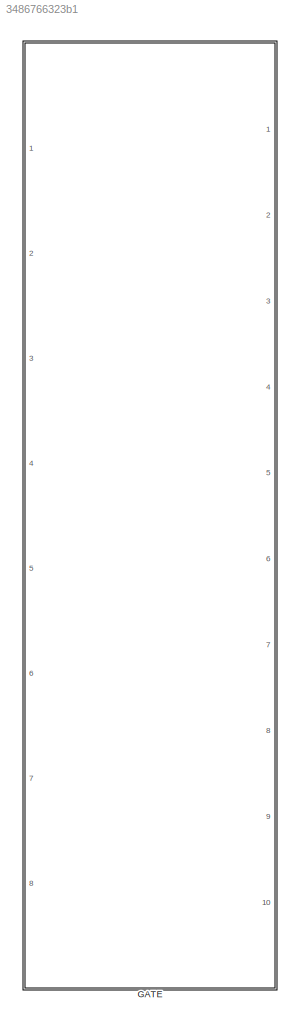
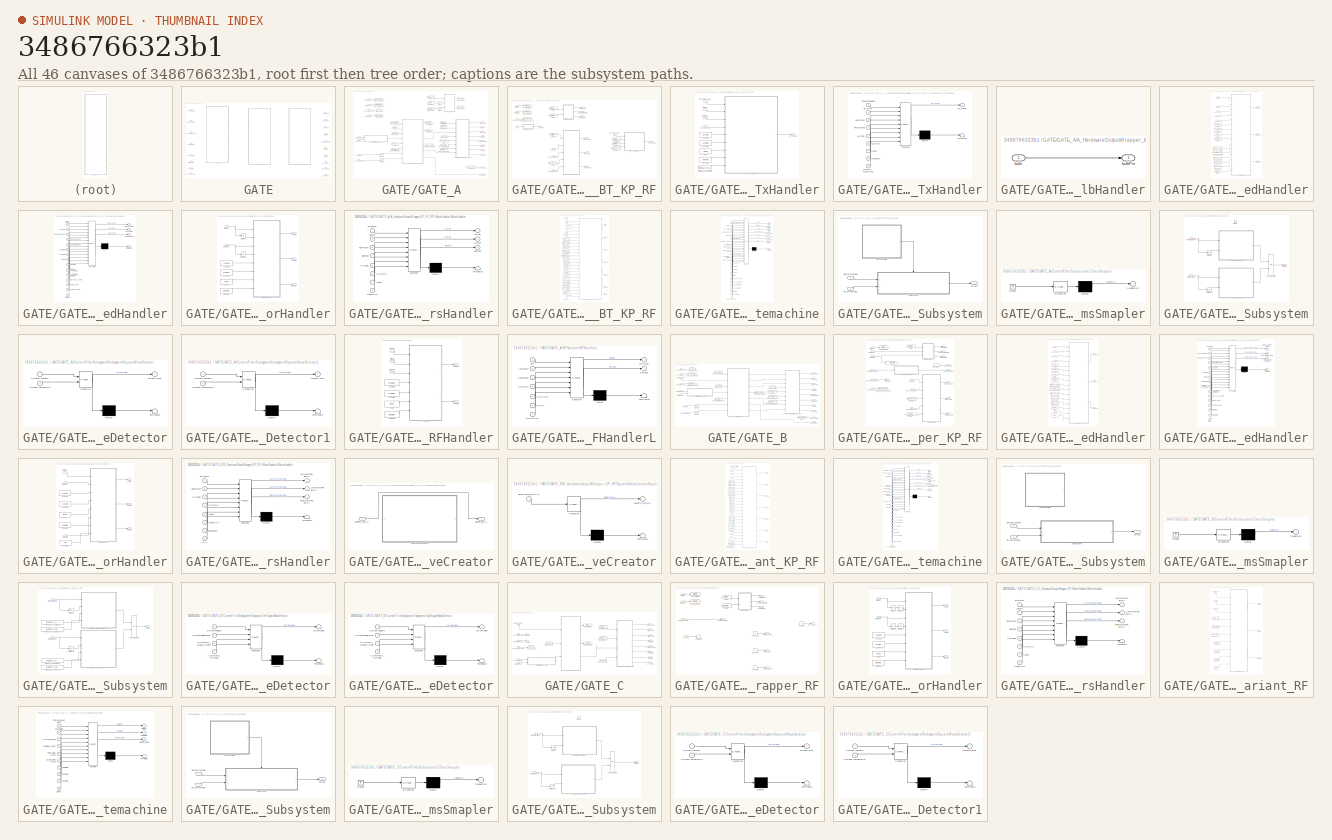
[diagram: thumbnail index - all 46 canvases of the model, root first then tree order]
MODEL slx_3486766323b1
KIND library
CONFIG AbsTol = auto
CONFIG FixedStep = auto
CONFIG MaxStep = auto
CONFIG MinStep = auto
CONFIG RelTol = 1e-3
CONFIG SampleTimeConstraint = Unconstrained
CONFIG Solver = ode45
CONFIG SolverMode = Auto
CONFIG SolverName = ode45
CONFIG StartTime = 0.0
CONFIG StopTime = 10.0
BLOCK [SubSystem] GATE
  OverrideUsingVariant = VariantB
  Ports = [8, 10]
  RequestExecContextInheritance = off
  Variant = on
  VariantControl = Variant1
BLOCK [Outport] GATE/ BT_TxChar
  IconDisplay = Port number
  Port = 8
BLOCK [Outport] GATE/ CommonMotorPin
  IconDisplay = Port number
  Port = 5
BLOCK [Outport] GATE/ LeftMotorPin
  IconDisplay = Port number
  Port = 4
BLOCK [Outport] GATE/ bulbPin
  IconDisplay = Port number
  Port = 7
BLOCK [Outport] GATE/ greenLedPin
  IconDisplay = Port number
BLOCK [Outport] GATE/ redLedPin
  IconDisplay = Port number
  Port = 2
BLOCK [Outport] GATE/ rightMotorPin
  IconDisplay = Port number
  Port = 6
BLOCK [Outport] GATE/ yellowLedPin
  IconDisplay = Port number
  Port = 3
BLOCK [Inport] GATE/BtCharReceived 
  IconDisplay = Port number
  Port = 2
BLOCK [SubSystem] GATE/GATE_A
  Ports = [8, 10]
  RequestExecContextInheritance = off
  Variant = off
  VariantControl = VariantA
BLOCK [SubSystem] GATE/GATE_A/A_HardwareOutputWrapper_BT_KP_RF
  Ports = [8, 8]
  RequestExecContextInheritance = off
  Variant = off
  VariantControl = Variant1
BLOCK [Inport] GATE/GATE_A/A_HardwareOutputWrapper_BT_KP_RF/BTCharReceived
  IconDisplay = Port number
  Port = 7
BLOCK [Outport] GATE/GATE_A/A_HardwareOutputWrapper_BT_KP_RF/BT_TxChar
  IconDisplay = Port number
  Port = 8
BLOCK [SubSystem] GATE/GATE_A/A_HardwareOutputWrapper_BT_KP_RF/BT_TxHandler
  Ports = [4, 1]
  RequestExecContextInheritance = off
  Variant = off
BLOCK [Inport] GATE/GATE_A/A_HardwareOutputWrapper_BT_KP_RF/BT_TxHandler/BTCharReceived
  IconDisplay = Port number
BLOCK [Outport] GATE/GATE_A/A_HardwareOutputWrapper_BT_KP_RF/BT_TxHandler/BT_TxChar
  IconDisplay = Port number
BLOCK [SubSystem] GATE/GATE_A/A_HardwareOutputWrapper_BT_KP_RF/BT_TxHandler/BT_TxHandler
  ErrorFcn = Stateflow.Translate.translate
  PermitHierarchicalResolution = ExplicitOnly
  Ports = [9, 1]
  RequestExecContextInheritance = off
  SFBlockType = Chart
  TreatAsAtomicUnit = on
  Variant = off
BLOCK [Demux] GATE/GATE_A/A_HardwareOutputWrapper_BT_KP_RF/BT_TxHandler/BT_TxHandler/ Demux 
  Outputs = 1
  Ports = [1, 1]
BLOCK [S-Function] GATE/GATE_A/A_HardwareOutputWrapper_BT_KP_RF/BT_TxHandler/BT_TxHandler/ SFunction 
  EnableBusSupport = on
  FunctionName = sf_sfun
  PortCounts = [9 2]
  Ports = [9, 2]
  SFunctionDeploymentMode = off
  Tag = Stateflow S-Function gate_V32_2016a_Lib_inf 26
BLOCK [Terminator] GATE/GATE_A/A_HardwareOutputWrapper_BT_KP_RF/BT_TxHandler/BT_TxHandler/ Terminator 
BLOCK [Inport] GATE/GATE_A/A_HardwareOutputWrapper_BT_KP_RF/BT_TxHandler/BT_TxHandler/BTCharReceived
  IconDisplay = Port number
BLOCK [Outport] GATE/GATE_A/A_HardwareOutputWrapper_BT_KP_RF/BT_TxHandler/BT_TxHandler/BT_TxChar
  IconDisplay = Port number
BLOCK [Inport] GATE/GATE_A/A_HardwareOutputWrapper_BT_KP_RF/BT_TxHandler/BT_TxHandler/CLOSED
  IconDisplay = Port number
  Port = 5
BLOCK [Inport] GATE/GATE_A/A_HardwareOutputWrapper_BT_KP_RF/BT_TxHandler/BT_TxHandler/CLOSING
  IconDisplay = Port number
  Port = 6
BLOCK [Inport] GATE/GATE_A/A_HardwareOutputWrapper_BT_KP_RF/BT_TxHandler/BT_TxHandler/OPEN
  IconDisplay = Port number
  Port = 7
BLOCK [Inport] GATE/GATE_A/A_HardwareOutputWrapper_BT_KP_RF/BT_TxHandler/BT_TxHandler/OPENING
  IconDisplay = Port number
  Port = 8
BLOCK [Inport] GATE/GATE_A/A_HardwareOutputWrapper_BT_KP_RF/BT_TxHandler/BT_TxHandler/PassSuccess
  IconDisplay = Port number
  Port = 4
BLOCK [Inport] GATE/GATE_A/A_HardwareOutputWrapper_BT_KP_RF/BT_TxHandler/BT_TxHandler/WRONG_PASSWORD
  IconDisplay = Port number
  Port = 9
BLOCK [Inport] GATE/GATE_A/A_HardwareOutputWrapper_BT_KP_RF/BT_TxHandler/BT_TxHandler/leftMotor
  IconDisplay = Port number
  Port = 2
BLOCK [Inport] GATE/GATE_A/A_HardwareOutputWrapper_BT_KP_RF/BT_TxHandler/BT_TxHandler/rightMotor
  IconDisplay = Port number
  Port = 3
BLOCK [Constant] GATE/GATE_A/A_HardwareOutputWrapper_BT_KP_RF/BT_TxHandler/CLOSED
  SampleTime = -1
  Value = CLOSED
BLOCK [Constant] GATE/GATE_A/A_HardwareOutputWrapper_BT_KP_RF/BT_TxHandler/CLOSING
  SampleTime = -1
  Value = CLOSING
BLOCK [Constant] GATE/GATE_A/A_HardwareOutputWrapper_BT_KP_RF/BT_TxHandler/OPEN
  SampleTime = -1
  Value = OPEN
BLOCK [Constant] GATE/GATE_A/A_HardwareOutputWrapper_BT_KP_RF/BT_TxHandler/OPENING
  SampleTime = -1
  Value = OPENING
BLOCK [Inport] GATE/GATE_A/A_HardwareOutputWrapper_BT_KP_RF/BT_TxHandler/PassSuccess
  IconDisplay = Port number
  Port = 4
BLOCK [Constant] GATE/GATE_A/A_HardwareOutputWrapper_BT_KP_RF/BT_TxHandler/WRONG_PASSWORD
  SampleTime = -1
  Value = WRONG_PASSWORD
BLOCK [Inport] GATE/GATE_A/A_HardwareOutputWrapper_BT_KP_RF/BT_TxHandler/leftMotor
  IconDisplay = Port number
  Port = 2
BLOCK [Inport] GATE/GATE_A/A_HardwareOutputWrapper_BT_KP_RF/BT_TxHandler/rightMotor
  IconDisplay = Port number
  Port = 3
BLOCK [SubSystem] GATE/GATE_A/A_HardwareOutputWrapper_BT_KP_RF/BulbHandler
  Ports = [1, 1]
  RequestExecContextInheritance = off
  Variant = off
BLOCK [Inport] GATE/GATE_A/A_HardwareOutputWrapper_BT_KP_RF/BulbHandler/bulb
  IconDisplay = Port number
BLOCK [Outport] GATE/GATE_A/A_HardwareOutputWrapper_BT_KP_RF/BulbHandler/bulbPin
  IconDisplay = Port number
BLOCK [Outport] GATE/GATE_A/A_HardwareOutputWrapper_BT_KP_RF/CommonMotorPin
  IconDisplay = Port number
  Port = 5
BLOCK [From] GATE/GATE_A/A_HardwareOutputWrapper_BT_KP_RF/From
  GotoTag = leftMotor
BLOCK [From] GATE/GATE_A/A_HardwareOutputWrapper_BT_KP_RF/From1
  GotoTag = leftMotor
BLOCK [From] GATE/GATE_A/A_HardwareOutputWrapper_BT_KP_RF/From2
  GotoTag = rightMotor
BLOCK [From] GATE/GATE_A/A_HardwareOutputWrapper_BT_KP_RF/From4
  GotoTag = leftMotor
BLOCK [From] GATE/GATE_A/A_HardwareOutputWrapper_BT_KP_RF/From5
  GotoTag = rightMotor
BLOCK [From] GATE/GATE_A/A_HardwareOutputWrapper_BT_KP_RF/From6
  GotoTag = PassSuccess
BLOCK [From] GATE/GATE_A/A_HardwareOutputWrapper_BT_KP_RF/From7
  GotoTag = PassSuccess
BLOCK [Goto] GATE/GATE_A/A_HardwareOutputWrapper_BT_KP_RF/Goto_PassSuccess
  GotoTag = PassSuccess
BLOCK [Goto] GATE/GATE_A/A_HardwareOutputWrapper_BT_KP_RF/Goto_leftMotor
  GotoTag = leftMotor
BLOCK [Goto] GATE/GATE_A/A_HardwareOutputWrapper_BT_KP_RF/Goto_rightMotor
  GotoTag = rightMotor
BLOCK [Inport] GATE/GATE_A/A_HardwareOutputWrapper_BT_KP_RF/KpCharPressed
  IconDisplay = Port number
  Port = 6
BLOCK [SubSystem] GATE/GATE_A/A_HardwareOutputWrapper_BT_KP_RF/LedHandler
  Ports = [5, 3]
  RequestExecContextInheritance = off
  Variant = off
BLOCK [Constant] GATE/GATE_A/A_HardwareOutputWrapper_BT_KP_RF/LedHandler/CLOSED
  SampleTime = -1
  Value = CLOSED
BLOCK [Constant] GATE/GATE_A/A_HardwareOutputWrapper_BT_KP_RF/LedHandler/CLOSE_CHAR
  SampleTime = -1
  Value = CLOSE_CHAR
BLOCK [Constant] GATE/GATE_A/A_HardwareOutputWrapper_BT_KP_RF/LedHandler/CLOSING
  SampleTime = -1
  Value = CLOSING
BLOCK [Inport] GATE/GATE_A/A_HardwareOutputWrapper_BT_KP_RF/LedHandler/KpCharPressed
  IconDisplay = Port number
  Port = 5
BLOCK [SubSystem] GATE/GATE_A/A_HardwareOutputWrapper_BT_KP_RF/LedHandler/LedHandler
  ErrorFcn = Stateflow.Translate.translate
  PermitHierarchicalResolution = ExplicitOnly
  Ports = [15, 3]
  RequestExecContextInheritance = off
  SFBlockType = Chart
  TreatAsAtomicUnit = on
  Variant = off
BLOCK [Demux] GATE/GATE_A/A_HardwareOutputWrapper_BT_KP_RF/LedHandler/LedHandler/ Demux 
  Outputs = 1
  Ports = [1, 1]
BLOCK [S-Function] GATE/GATE_A/A_HardwareOutputWrapper_BT_KP_RF/LedHandler/LedHandler/ SFunction 
  EnableBusSupport = on
  FunctionName = sf_sfun
  PortCounts = [15 4]
  Ports = [15, 4]
  SFunctionDeploymentMode = off
  Tag = Stateflow S-Function gate_V32_2016a_Lib_inf 27
BLOCK [Terminator] GATE/GATE_A/A_HardwareOutputWrapper_BT_KP_RF/LedHandler/LedHandler/ Terminator 
BLOCK [Inport] GATE/GATE_A/A_HardwareOutputWrapper_BT_KP_RF/LedHandler/LedHandler/CLOSED
  IconDisplay = Port number
  Port = 6
BLOCK [Inport] GATE/GATE_A/A_HardwareOutputWrapper_BT_KP_RF/LedHandler/LedHandler/CLOSE_CHAR
  IconDisplay = Port number
  Port = 14
BLOCK [Inport] GATE/GATE_A/A_HardwareOutputWrapper_BT_KP_RF/LedHandler/LedHandler/CLOSING
  IconDisplay = Port number
  Port = 7
BLOCK [Inport] GATE/GATE_A/A_HardwareOutputWrapper_BT_KP_RF/LedHandler/LedHandler/KpCharPressed
  IconDisplay = Port number
  Port = 5
BLOCK [Inport] GATE/GATE_A/A_HardwareOutputWrapper_BT_KP_RF/LedHandler/LedHandler/NO_PASS_ASSIG
  IconDisplay = Port number
  Port = 12
BLOCK [Inport] GATE/GATE_A/A_HardwareOutputWrapper_BT_KP_RF/LedHandler/LedHandler/OPEN
  IconDisplay = Port number
  Port = 8
BLOCK [Inport] GATE/GATE_A/A_HardwareOutputWrapper_BT_KP_RF/LedHandler/LedHandler/OPENING
  IconDisplay = Port number
  Port = 9
BLOCK [Inport] GATE/GATE_A/A_HardwareOutputWrapper_BT_KP_RF/LedHandler/LedHandler/OPEN_CHAR
  IconDisplay = Port number
  Port = 13
BLOCK [Inport] GATE/GATE_A/A_HardwareOutputWrapper_BT_KP_RF/LedHandler/LedHandler/PASSWORD_VERIFIED
  IconDisplay = Port number
  Port = 11
BLOCK [Inport] GATE/GATE_A/A_HardwareOutputWrapper_BT_KP_RF/LedHandler/LedHandler/PassAssigned
  IconDisplay = Port number
  Port = 3
BLOCK [Inport] GATE/GATE_A/A_HardwareOutputWrapper_BT_KP_RF/LedHandler/LedHandler/PassSuccess
  IconDisplay = Port number
  Port = 4
BLOCK [Inport] GATE/GATE_A/A_HardwareOutputWrapper_BT_KP_RF/LedHandler/LedHandler/PassSw
  IconDisplay = Port number
  Port = 2
BLOCK [Inport] GATE/GATE_A/A_HardwareOutputWrapper_BT_KP_RF/LedHandler/LedHandler/TIMEOUT
  IconDisplay = Port number
  Port = 15
BLOCK [Inport] GATE/GATE_A/A_HardwareOutputWrapper_BT_KP_RF/LedHandler/LedHandler/WRONG_PASSWORD
  IconDisplay = Port number
  Port = 10
BLOCK [Outport] GATE/GATE_A/A_HardwareOutputWrapper_BT_KP_RF/LedHandler/LedHandler/greenLedPin
  IconDisplay = Port number
BLOCK [Inport] GATE/GATE_A/A_HardwareOutputWrapper_BT_KP_RF/LedHandler/LedHandler/leftMotor
  IconDisplay = Port number
BLOCK [Outport] GATE/GATE_A/A_HardwareOutputWrapper_BT_KP_RF/LedHandler/LedHandler/redLedPin
  IconDisplay = Port number
  Port = 2
BLOCK [Outport] GATE/GATE_A/A_HardwareOutputWrapper_BT_KP_RF/LedHandler/LedHandler/yellowLedPin
  IconDisplay = Port number
  Port = 3
BLOCK [Constant] GATE/GATE_A/A_HardwareOutputWrapper_BT_KP_RF/LedHandler/NO_PASS_ASSIG
  SampleTime = -1
  Value = NO_PASS_ASSIG
BLOCK [Constant] GATE/GATE_A/A_HardwareOutputWrapper_BT_KP_RF/LedHandler/OPEN
  SampleTime = -1
  Value = OPEN
BLOCK [Constant] GATE/GATE_A/A_HardwareOutputWrapper_BT_KP_RF/LedHandler/OPENING
  SampleTime = -1
  Value = OPENING
BLOCK [Constant] GATE/GATE_A/A_HardwareOutputWrapper_BT_KP_RF/LedHandler/OPEN_CHAR
  SampleTime = -1
  Value = OPEN_CHAR
BLOCK [Constant] GATE/GATE_A/A_HardwareOutputWrapper_BT_KP_RF/LedHandler/PASSWORD_VERIFIED
  SampleTime = -1
  Value = PASSWORD_VERIFIED
BLOCK [Inport] GATE/GATE_A/A_HardwareOutputWrapper_BT_KP_RF/LedHandler/PassAssigned
  IconDisplay = Port number
  Port = 3
BLOCK [Inport] GATE/GATE_A/A_HardwareOutputWrapper_BT_KP_RF/LedHandler/PassSuccess
  IconDisplay = Port number
  Port = 4
BLOCK [Constant] GATE/GATE_A/A_HardwareOutputWrapper_BT_KP_RF/LedHandler/TIMEOUT
  SampleTime = -1
  Value = TIMEOUT
BLOCK [Constant] GATE/GATE_A/A_HardwareOutputWrapper_BT_KP_RF/LedHandler/WRONG_PASSWORD
  SampleTime = -1
  Value = WRONG_PASSWORD
BLOCK [Outport] GATE/GATE_A/A_HardwareOutputWrapper_BT_KP_RF/LedHandler/greenLedPin
  IconDisplay = Port number
BLOCK [Inport] GATE/GATE_A/A_HardwareOutputWrapper_BT_KP_RF/LedHandler/leftMotor
  IconDisplay = Port number
BLOCK [Inport] GATE/GATE_A/A_HardwareOutputWrapper_BT_KP_RF/LedHandler/passSw
  IconDisplay = Port number
  Port = 2
BLOCK [Outport] GATE/GATE_A/A_HardwareOutputWrapper_BT_KP_RF/LedHandler/redLedPin
  IconDisplay = Port number
  Port = 2
BLOCK [Outport] GATE/GATE_A/A_HardwareOutputWrapper_BT_KP_RF/LedHandler/yellowLedPin
  IconDisplay = Port number
  Port = 3
BLOCK [Outport] GATE/GATE_A/A_HardwareOutputWrapper_BT_KP_RF/LeftMotorPin
  IconDisplay = Port number
  Port = 4
BLOCK [SubSystem] GATE/GATE_A/A_HardwareOutputWrapper_BT_KP_RF/MotorHandler
  Ports = [2, 3]
  RequestExecContextInheritance = off
  Variant = off
BLOCK [Constant] GATE/GATE_A/A_HardwareOutputWrapper_BT_KP_RF/MotorHandler/CLOSED
  SampleTime = -1
  Value = CLOSED
BLOCK [Constant] GATE/GATE_A/A_HardwareOutputWrapper_BT_KP_RF/MotorHandler/CLOSING
  SampleTime = -1
  Value = CLOSING
BLOCK [Outport] GATE/GATE_A/A_HardwareOutputWrapper_BT_KP_RF/MotorHandler/ComPin
  IconDisplay = Port number
  Port = 2
BLOCK [Outport] GATE/GATE_A/A_HardwareOutputWrapper_BT_KP_RF/MotorHandler/LeftPin
  IconDisplay = Port number
BLOCK [SubSystem] GATE/GATE_A/A_HardwareOutputWrapper_BT_KP_RF/MotorHandler/MotorsHandler
  ErrorFcn = Stateflow.Translate.translate
  PermitHierarchicalResolution = ExplicitOnly
  Ports = [8, 3]
  RequestExecContextInheritance = off
  SFBlockType = Chart
  TreatAsAtomicUnit = on
  Variant = off
BLOCK [Demux] GATE/GATE_A/A_HardwareOutputWrapper_BT_KP_RF/MotorHandler/MotorsHandler/ Demux 
  Outputs = 1
  Ports = [1, 1]
BLOCK [S-Function] GATE/GATE_A/A_HardwareOutputWrapper_BT_KP_RF/MotorHandler/MotorsHandler/ SFunction 
  EnableBusSupport = on
  FunctionName = sf_sfun
  PortCounts = [8 4]
  Ports = [8, 4]
  SFunctionDeploymentMode = off
  Tag = Stateflow S-Function gate_V32_2016a_Lib_inf 28
BLOCK [Terminator] GATE/GATE_A/A_HardwareOutputWrapper_BT_KP_RF/MotorHandler/MotorsHandler/ Terminator 
BLOCK [Inport] GATE/GATE_A/A_HardwareOutputWrapper_BT_KP_RF/MotorHandler/MotorsHandler/CLOSED
  IconDisplay = Port number
  Port = 5
BLOCK [Inport] GATE/GATE_A/A_HardwareOutputWrapper_BT_KP_RF/MotorHandler/MotorsHandler/CLOSING
  IconDisplay = Port number
  Port = 6
BLOCK [Outport] GATE/GATE_A/A_HardwareOutputWrapper_BT_KP_RF/MotorHandler/MotorsHandler/ComPin
  IconDisplay = Port number
  Port = 2
BLOCK [Outport] GATE/GATE_A/A_HardwareOutputWrapper_BT_KP_RF/MotorHandler/MotorsHandler/LeftPin
  IconDisplay = Port number
BLOCK [Inport] GATE/GATE_A/A_HardwareOutputWrapper_BT_KP_RF/MotorHandler/MotorsHandler/OPEN
  IconDisplay = Port number
  Port = 7
BLOCK [Inport] GATE/GATE_A/A_HardwareOutputWrapper_BT_KP_RF/MotorHandler/MotorsHandler/OPENING
  IconDisplay = Port number
  Port = 8
BLOCK [Outport] GATE/GATE_A/A_HardwareOutputWrapper_BT_KP_RF/MotorHandler/MotorsHandler/RightPin
  IconDisplay = Port number
  Port = 3
BLOCK [Inport] GATE/GATE_A/A_HardwareOutputWrapper_BT_KP_RF/MotorHandler/MotorsHandler/leftMotor
  IconDisplay = Port number
BLOCK [Inport] GATE/GATE_A/A_HardwareOutputWrapper_BT_KP_RF/MotorHandler/MotorsHandler/oldLeft
  IconDisplay = Port number
  Port = 2
BLOCK [Inport] GATE/GATE_A/A_HardwareOutputWrapper_BT_KP_RF/MotorHandler/MotorsHandler/oldRight
  IconDisplay = Port number
  Port = 4
BLOCK [Inport] GATE/GATE_A/A_HardwareOutputWrapper_BT_KP_RF/MotorHandler/MotorsHandler/rightMotor
  IconDisplay = Port number
  Port = 3
BLOCK [Constant] GATE/GATE_A/A_HardwareOutputWrapper_BT_KP_RF/MotorHandler/OPEN
  SampleTime = -1
  Value = OPEN
BLOCK [Constant] GATE/GATE_A/A_HardwareOutputWrapper_BT_KP_RF/MotorHandler/OPENING
  SampleTime = -1
  Value = OPENING
BLOCK [Outport] GATE/GATE_A/A_HardwareOutputWrapper_BT_KP_RF/MotorHandler/RightPin
  IconDisplay = Port number
  Port = 3
BLOCK [UnitDelay] GATE/GATE_A/A_HardwareOutputWrapper_BT_KP_RF/MotorHandler/Unit Delay
  InputProcessing = Elements as channels (sample based)
  SampleTime = -1
BLOCK [UnitDelay] GATE/GATE_A/A_HardwareOutputWrapper_BT_KP_RF/MotorHandler/Unit Delay1
  InputProcessing = Elements as channels (sample based)
  SampleTime = -1
BLOCK [Inport] GATE/GATE_A/A_HardwareOutputWrapper_BT_KP_RF/MotorHandler/leftMotor
  IconDisplay = Port number
BLOCK [Inport] GATE/GATE_A/A_HardwareOutputWrapper_BT_KP_RF/MotorHandler/rightMotor
  IconDisplay = Port number
  Port = 2
BLOCK [Inport] GATE/GATE_A/A_HardwareOutputWrapper_BT_KP_RF/PassAssigned
  IconDisplay = Port number
  Port = 5
BLOCK [Inport] GATE/GATE_A/A_HardwareOutputWrapper_BT_KP_RF/PassSuccess
  IconDisplay = Port number
  Port = 8
BLOCK [Inport] GATE/GATE_A/A_HardwareOutputWrapper_BT_KP_RF/bulb
  IconDisplay = Port number
  Port = 3
BLOCK [Outport] GATE/GATE_A/A_HardwareOutputWrapper_BT_KP_RF/bulbPin
  IconDisplay = Port number
  Port = 7
BLOCK [Outport] GATE/GATE_A/A_HardwareOutputWrapper_BT_KP_RF/greenLedPin
  IconDisplay = Port number
BLOCK [Inport] GATE/GATE_A/A_HardwareOutputWrapper_BT_KP_RF/leftMotor
  IconDisplay = Port number
BLOCK [Inport] GATE/GATE_A/A_HardwareOutputWrapper_BT_KP_RF/passSw
  IconDisplay = Port number
  Port = 4
BLOCK [Outport] GATE/GATE_A/A_HardwareOutputWrapper_BT_KP_RF/redLedPin
  IconDisplay = Port number
  Port = 2
BLOCK [Inport] GATE/GATE_A/A_HardwareOutputWrapper_BT_KP_RF/rightMotor
  IconDisplay = Port number
  Port = 2
BLOCK [Outport] GATE/GATE_A/A_HardwareOutputWrapper_BT_KP_RF/rightMotorPin
  IconDisplay = Port number
  Port = 6
BLOCK [Outport] GATE/GATE_A/A_HardwareOutputWrapper_BT_KP_RF/yellowLedPin
  IconDisplay = Port number
  Port = 3
BLOCK [SubSystem] GATE/GATE_A/A_Variant_BT_KP_RF
  Ports = [8, 6]
  RequestExecContextInheritance = off
  Variant = off
  VariantControl = Variant
BLOCK [Inport] GATE/GATE_A/A_Variant_BT_KP_RF/BtCharReceived
  IconDisplay = Port number
  Port = 6
BLOCK [Constant] GATE/GATE_A/A_Variant_BT_KP_RF/CLOSED
  SampleTime = -1
  Value = CLOSED
BLOCK [Constant] GATE/GATE_A/A_Variant_BT_KP_RF/CLOSE_CHAR
  SampleTime = -1
  Value = CLOSE_CHAR
BLOCK [Constant] GATE/GATE_A/A_Variant_BT_KP_RF/CLOSE_SIDE_VALUE
  SampleTime = -1
  Value = CLOSE_SIDE_VALUE
BLOCK [Constant] GATE/GATE_A/A_Variant_BT_KP_RF/CLOSING
  SampleTime = -1
  Value = CLOSING
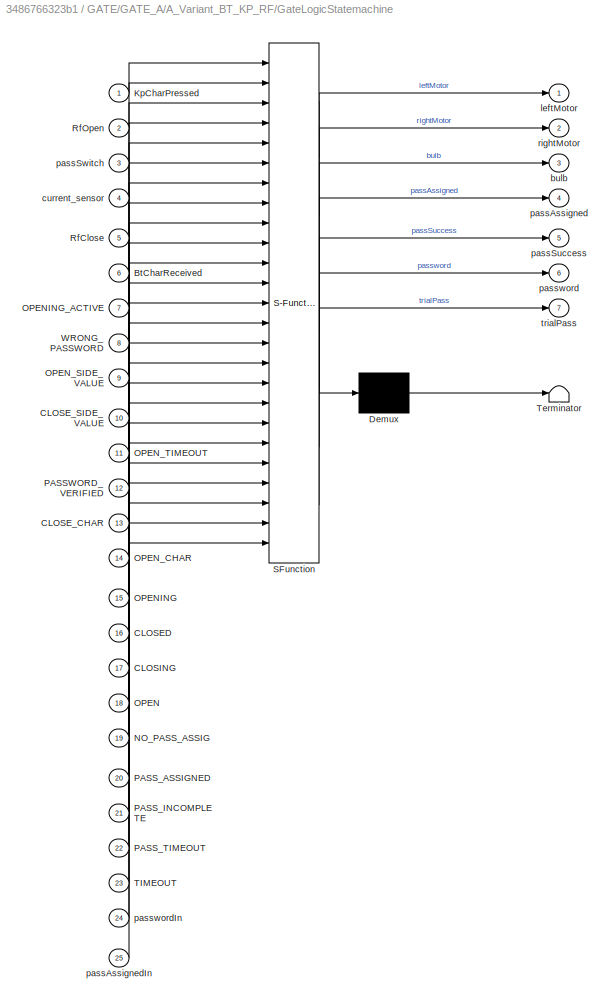
BLOCK [SubSystem] GATE/GATE_A/A_Variant_BT_KP_RF/GateLogicStatemachine
  ErrorFcn = Stateflow.Translate.translate
  PermitHierarchicalResolution = ExplicitOnly
  Ports = [25, 7]
  RequestExecContextInheritance = off
  SFBlockType = Chart
  TreatAsAtomicUnit = on
  Variant = off
BLOCK [Demux] GATE/GATE_A/A_Variant_BT_KP_RF/GateLogicStatemachine/ Demux 
  Outputs = 1
  Ports = [1, 1]
BLOCK [S-Function] GATE/GATE_A/A_Variant_BT_KP_RF/GateLogicStatemachine/ SFunction 
  EnableBusSupport = on
  FunctionName = sf_sfun
  PortCounts = [25 8]
  Ports = [25, 8]
  SFunctionDeploymentMode = off
  Tag = Stateflow S-Function gate_V32_2016a_Lib_inf 12
BLOCK [Terminator] GATE/GATE_A/A_Variant_BT_KP_RF/GateLogicStatemachine/ Terminator 
BLOCK [Inport] GATE/GATE_A/A_Variant_BT_KP_RF/GateLogicStatemachine/BtCharReceived
  IconDisplay = Port number
  Port = 6
BLOCK [Inport] GATE/GATE_A/A_Variant_BT_KP_RF/GateLogicStatemachine/CLOSED
  IconDisplay = Port number
  Port = 16
BLOCK [Inport] GATE/GATE_A/A_Variant_BT_KP_RF/GateLogicStatemachine/CLOSE_CHAR
  IconDisplay = Port number
  Port = 13
BLOCK [Inport] GATE/GATE_A/A_Variant_BT_KP_RF/GateLogicStatemachine/CLOSE_SIDE_VALUE
  IconDisplay = Port number
  Port = 10
BLOCK [Inport] GATE/GATE_A/A_Variant_BT_KP_RF/GateLogicStatemachine/CLOSING
  IconDisplay = Port number
  Port = 17
BLOCK [Inport] GATE/GATE_A/A_Variant_BT_KP_RF/GateLogicStatemachine/KpCharPressed
  IconDisplay = Port number
BLOCK [Inport] GATE/GATE_A/A_Variant_BT_KP_RF/GateLogicStatemachine/NO_PASS_ASSIG
  IconDisplay = Port number
  Port = 19
BLOCK [Inport] GATE/GATE_A/A_Variant_BT_KP_RF/GateLogicStatemachine/OPEN
  IconDisplay = Port number
  Port = 18
BLOCK [Inport] GATE/GATE_A/A_Variant_BT_KP_RF/GateLogicStatemachine/OPENING
  IconDisplay = Port number
  Port = 15
BLOCK [Inport] GATE/GATE_A/A_Variant_BT_KP_RF/GateLogicStatemachine/OPENING_ACTIVE
  IconDisplay = Port number
  Port = 7
BLOCK [Inport] GATE/GATE_A/A_Variant_BT_KP_RF/GateLogicStatemachine/OPEN_CHAR
  IconDisplay = Port number
  Port = 14
BLOCK [Inport] GATE/GATE_A/A_Variant_BT_KP_RF/GateLogicStatemachine/OPEN_SIDE_VALUE
  IconDisplay = Port number
  Port = 9
BLOCK [Inport] GATE/GATE_A/A_Variant_BT_KP_RF/GateLogicStatemachine/OPEN_TIMEOUT
  IconDisplay = Port number
  Port = 11
BLOCK [Inport] GATE/GATE_A/A_Variant_BT_KP_RF/GateLogicStatemachine/PASSWORD_VERIFIED
  IconDisplay = Port number
  Port = 12
BLOCK [Inport] GATE/GATE_A/A_Variant_BT_KP_RF/GateLogicStatemachine/PASS_ASSIGNED
  IconDisplay = Port number
  Port = 20
BLOCK [Inport] GATE/GATE_A/A_Variant_BT_KP_RF/GateLogicStatemachine/PASS_INCOMPLETE
  IconDisplay = Port number
  Port = 21
BLOCK [Inport] GATE/GATE_A/A_Variant_BT_KP_RF/GateLogicStatemachine/PASS_TIMEOUT
  IconDisplay = Port number
  Port = 22
BLOCK [Inport] GATE/GATE_A/A_Variant_BT_KP_RF/GateLogicStatemachine/RfClose
  IconDisplay = Port number
  Port = 5
BLOCK [Inport] GATE/GATE_A/A_Variant_BT_KP_RF/GateLogicStatemachine/RfOpen
  IconDisplay = Port number
  Port = 2
BLOCK [Inport] GATE/GATE_A/A_Variant_BT_KP_RF/GateLogicStatemachine/TIMEOUT
  IconDisplay = Port number
  Port = 23
BLOCK [Inport] GATE/GATE_A/A_Variant_BT_KP_RF/GateLogicStatemachine/WRONG_PASSWORD
  IconDisplay = Port number
  Port = 8
BLOCK [Outport] GATE/GATE_A/A_Variant_BT_KP_RF/GateLogicStatemachine/bulb
  IconDisplay = Port number
  Port = 3
BLOCK [Inport] GATE/GATE_A/A_Variant_BT_KP_RF/GateLogicStatemachine/current_sensor
  IconDisplay = Port number
  Port = 4
BLOCK [Outport] GATE/GATE_A/A_Variant_BT_KP_RF/GateLogicStatemachine/leftMotor
  IconDisplay = Port number
BLOCK [Outport] GATE/GATE_A/A_Variant_BT_KP_RF/GateLogicStatemachine/passAssigned
  IconDisplay = Port number
  Port = 4
BLOCK [Inport] GATE/GATE_A/A_Variant_BT_KP_RF/GateLogicStatemachine/passAssignedIn
  IconDisplay = Port number
  Port = 25
BLOCK [Outport] GATE/GATE_A/A_Variant_BT_KP_RF/GateLogicStatemachine/passSuccess
  IconDisplay = Port number
  Port = 5
BLOCK [Inport] GATE/GATE_A/A_Variant_BT_KP_RF/GateLogicStatemachine/passSwitch
  IconDisplay = Port number
  Port = 3
BLOCK [Outport] GATE/GATE_A/A_Variant_BT_KP_RF/GateLogicStatemachine/password
  IconDisplay = Port number
  Port = 6
BLOCK [Inport] GATE/GATE_A/A_Variant_BT_KP_RF/GateLogicStatemachine/passwordIn
  IconDisplay = Port number
  Port = 24
BLOCK [Outport] GATE/GATE_A/A_Variant_BT_KP_RF/GateLogicStatemachine/rightMotor
  IconDisplay = Port number
  Port = 2
BLOCK [Outport] GATE/GATE_A/A_Variant_BT_KP_RF/GateLogicStatemachine/trialPass
  IconDisplay = Port number
  Port = 7
BLOCK [Inport] GATE/GATE_A/A_Variant_BT_KP_RF/KpCharPressed
  IconDisplay = Port number
BLOCK [Constant] GATE/GATE_A/A_Variant_BT_KP_RF/NO_PASS_ASSIG
  SampleTime = -1
  Value = NO_PASS_ASSIG
BLOCK [Constant] GATE/GATE_A/A_Variant_BT_KP_RF/OPEN
  SampleTime = -1
  Value = OPEN
BLOCK [Constant] GATE/GATE_A/A_Variant_BT_KP_RF/OPENING
  SampleTime = -1
  Value = OPENING
BLOCK [Constant] GATE/GATE_A/A_Variant_BT_KP_RF/OPENING_ACTIVE
  SampleTime = -1
  Value = OPENING_ACTIVE
BLOCK [Constant] GATE/GATE_A/A_Variant_BT_KP_RF/OPEN_CHAR
  SampleTime = -1
  Value = OPEN_CHAR
BLOCK [Constant] GATE/GATE_A/A_Variant_BT_KP_RF/OPEN_SIDE_VALUE
  SampleTime = -1
  Value = OPEN_SIDE_VALUE
BLOCK [Constant] GATE/GATE_A/A_Variant_BT_KP_RF/OPEN_TIMEOUT
  SampleTime = -1
  Value = OPEN_TIMEOUT
BLOCK [Constant] GATE/GATE_A/A_Variant_BT_KP_RF/PASSWORD_VERIFIED
  SampleTime = -1
  Value = PASSWORD_VERIFIED
BLOCK [Constant] GATE/GATE_A/A_Variant_BT_KP_RF/PASS_ASSIGNED
  SampleTime = -1
  Value = PASS_ASSIGNED
BLOCK [Constant] GATE/GATE_A/A_Variant_BT_KP_RF/PASS_INCOMPLETE
  SampleTime = -1
  Value = PASS_INCOMPLETE
BLOCK [Constant] GATE/GATE_A/A_Variant_BT_KP_RF/PASS_TIMEOUT
  SampleTime = -1
  Value = PASS_TIMEOUT
BLOCK [Outport] GATE/GATE_A/A_Variant_BT_KP_RF/PassAssigned
  IconDisplay = Port number
  Port = 4
BLOCK [Outport] GATE/GATE_A/A_Variant_BT_KP_RF/PassSuccess
  IconDisplay = Port number
  Port = 5
BLOCK [Inport] GATE/GATE_A/A_Variant_BT_KP_RF/RfClose
  IconDisplay = Port number
  Port = 5
BLOCK [Inport] GATE/GATE_A/A_Variant_BT_KP_RF/RfOpen
  IconDisplay = Port number
  Port = 2
BLOCK [Constant] GATE/GATE_A/A_Variant_BT_KP_RF/TIMEOUT
  SampleTime = -1
  Value = TIMEOUT
BLOCK [Terminator] GATE/GATE_A/A_Variant_BT_KP_RF/Terminator
BLOCK [Constant] GATE/GATE_A/A_Variant_BT_KP_RF/WRONG_PASSWORD
  SampleTime = -1
  Value = WRONG_PASSWORD
BLOCK [Outport] GATE/GATE_A/A_Variant_BT_KP_RF/bulb
  IconDisplay = Port number
  Port = 3
BLOCK [Inport] GATE/GATE_A/A_Variant_BT_KP_RF/current_sensor
  IconDisplay = Port number
  Port = 4
BLOCK [Outport] GATE/GATE_A/A_Variant_BT_KP_RF/leftMotor
  IconDisplay = Port number
BLOCK [Inport] GATE/GATE_A/A_Variant_BT_KP_RF/passAssignedIn
  IconDisplay = Port number
  Port = 8
BLOCK [Inport] GATE/GATE_A/A_Variant_BT_KP_RF/passSwitch
  IconDisplay = Port number
  Port = 3
BLOCK [Inport] GATE/GATE_A/A_Variant_BT_KP_RF/passwordIn
  IconDisplay = Port number
  Port = 7
BLOCK [Outport] GATE/GATE_A/A_Variant_BT_KP_RF/passwordOut
  IconDisplay = Port number
  Port = 6
BLOCK [Outport] GATE/GATE_A/A_Variant_BT_KP_RF/rightMotor
  IconDisplay = Port number
  Port = 2
BLOCK [Outport] GATE/GATE_A/BT_TxChar
  IconDisplay = Port number
  Port = 8
BLOCK [Inport] GATE/GATE_A/BtCharReceived
  IconDisplay = Port number
  Port = 2
BLOCK [Outport] GATE/GATE_A/CommonMotorPin
  IconDisplay = Port number
  Port = 5
BLOCK [SubSystem] GATE/GATE_A/CurrentFilterSubsystem
  Ports = [2, 1]
  RequestExecContextInheritance = off
  Variant = off
BLOCK [SubSystem] GATE/GATE_A/CurrentFilterSubsystem/10msSmapler
  ErrorFcn = Stateflow.Translate.translate
  PermitHierarchicalResolution = ExplicitOnly
  Ports = [0, 1]
  RequestExecContextInheritance = off
  SFBlockType = Chart
  TreatAsAtomicUnit = on
  Variant = off
BLOCK [Demux] GATE/GATE_A/CurrentFilterSubsystem/10msSmapler/ Demux 
  Outputs = 1
  Ports = [1, 1]
BLOCK [Ground] GATE/GATE_A/CurrentFilterSubsystem/10msSmapler/ Ground 
BLOCK [S-Function] GATE/GATE_A/CurrentFilterSubsystem/10msSmapler/ SFunction 
  EnableBusSupport = on
  FunctionName = sf_sfun
  PortCounts = [1 1]
  Ports = [1, 1]
  SFunctionDeploymentMode = off
  Tag = Stateflow S-Function gate_V32_2016a_Lib_inf 2
BLOCK [Outport] GATE/GATE_A/CurrentFilterSubsystem/10msSmapler/triggerOn()
  IconDisplay = Port number
BLOCK [SubSystem] GATE/GATE_A/CurrentFilterSubsystem/Subsystem
  Ports = [2, 1, 0, 1]
  RequestExecContextInheritance = off
  Variant = off
BLOCK [Logic] GATE/GATE_A/CurrentFilterSubsystem/Subsystem/Logical Operator
  AllPortsSameDT = off
  Operator = OR
  OutDataTypeStr = boolean
  Ports = [2, 1]
BLOCK [SubSystem] GATE/GATE_A/CurrentFilterSubsystem/Subsystem/SquareWaveDetector
  ErrorFcn = Stateflow.Translate.translate
  PermitHierarchicalResolution = ExplicitOnly
  Ports = [2, 1]
  RequestExecContextInheritance = off
  SFBlockType = Chart
  TreatAsAtomicUnit = on
  Variant = off
BLOCK [Demux] GATE/GATE_A/CurrentFilterSubsystem/Subsystem/SquareWaveDetector/ Demux 
  Outputs = 1
  Ports = [1, 1]
BLOCK [S-Function] GATE/GATE_A/CurrentFilterSubsystem/Subsystem/SquareWaveDetector/ SFunction 
  EnableBusSupport = on
  FunctionName = sf_sfun
  PortCounts = [2 2]
  Ports = [2, 2]
  SFunctionDeploymentMode = off
  Tag = Stateflow S-Function gate_V32_2016a_Lib_inf 3
BLOCK [Terminator] GATE/GATE_A/CurrentFilterSubsystem/Subsystem/SquareWaveDetector/ Terminator 
BLOCK [Inport] GATE/GATE_A/CurrentFilterSubsystem/Subsystem/SquareWaveDetector/CurrentAnalogIn
  IconDisplay = Port number
BLOCK [Inport] GATE/GATE_A/CurrentFilterSubsystem/Subsystem/SquareWaveDetector/CurrentAnalogInOld
  IconDisplay = Port number
  Port = 2
BLOCK [Outport] GATE/GATE_A/CurrentFilterSubsystem/Subsystem/SquareWaveDetector/currentValue
  IconDisplay = Port number
BLOCK [SubSystem] GATE/GATE_A/CurrentFilterSubsystem/Subsystem/SquareWaveDetector1
  ErrorFcn = Stateflow.Translate.translate
  PermitHierarchicalResolution = ExplicitOnly
  Ports = [2, 1]
  RequestExecContextInheritance = off
  SFBlockType = Chart
  TreatAsAtomicUnit = on
  Variant = off
BLOCK [Demux] GATE/GATE_A/CurrentFilterSubsystem/Subsystem/SquareWaveDetector1/ Demux 
  Outputs = 1
  Ports = [1, 1]
BLOCK [S-Function] GATE/GATE_A/CurrentFilterSubsystem/Subsystem/SquareWaveDetector1/ SFunction 
  EnableBusSupport = on
  FunctionName = sf_sfun
  PortCounts = [2 2]
  Ports = [2, 2]
  SFunctionDeploymentMode = off
  Tag = Stateflow S-Function gate_V32_2016a_Lib_inf 4
BLOCK [Terminator] GATE/GATE_A/CurrentFilterSubsystem/Subsystem/SquareWaveDetector1/ Terminator 
BLOCK [Inport] GATE/GATE_A/CurrentFilterSubsystem/Subsystem/SquareWaveDetector1/CurrentAnalogIn
  IconDisplay = Port number
BLOCK [Inport] GATE/GATE_A/CurrentFilterSubsystem/Subsystem/SquareWaveDetector1/CurrentAnalogInOld
  IconDisplay = Port number
  Port = 2
BLOCK [Outport] GATE/GATE_A/CurrentFilterSubsystem/Subsystem/SquareWaveDetector1/currentValue
  IconDisplay = Port number
BLOCK [TriggerPort] GATE/GATE_A/CurrentFilterSubsystem/Subsystem/Trigger
  PortDimensions = 1
  Ports = []
  StatesWhenEnabling = held
  TriggerType = function-call
  VariantControl = Variant
BLOCK [UnitDelay] GATE/GATE_A/CurrentFilterSubsystem/Subsystem/Unit Delay
  InputProcessing = Elements as channels (sample based)
  SampleTime = -1
BLOCK [UnitDelay] GATE/GATE_A/CurrentFilterSubsystem/Subsystem/Unit Delay1
  InputProcessing = Elements as channels (sample based)
  SampleTime = -1
BLOCK [Outport] GATE/GATE_A/CurrentFilterSubsystem/Subsystem/current
  IconDisplay = Port number
BLOCK [Inport] GATE/GATE_A/CurrentFilterSubsystem/Subsystem/leftCurrentRaw
  IconDisplay = Port number
  Port = 2
BLOCK [Inport] GATE/GATE_A/CurrentFilterSubsystem/Subsystem/rightCurrentRaw
  IconDisplay = Port number
BLOCK [Outport] GATE/GATE_A/CurrentFilterSubsystem/current
  IconDisplay = Port number
BLOCK [Inport] GATE/GATE_A/CurrentFilterSubsystem/leftCurrentRaw
  IconDisplay = Port number
  Port = 2
BLOCK [Inport] GATE/GATE_A/CurrentFilterSubsystem/rightCurrentRaw
  IconDisplay = Port number
BLOCK [From] GATE/GATE_A/From
  GotoTag = RFOpen
BLOCK [From] GATE/GATE_A/From1
  GotoTag = RFClose
BLOCK [From] GATE/GATE_A/From2
  GotoTag = passAssigned
BLOCK [From] GATE/GATE_A/From3
  GotoTag = RFPressedOut
BLOCK [From] GATE/GATE_A/From4
  GotoTag = passAssigned
BLOCK [From] GATE/GATE_A/From_BtCharReceived
  GotoTag = BtCharReceived
BLOCK [From] GATE/GATE_A/From_BtCharReceived1
  GotoTag = BtCharReceived
BLOCK [From] GATE/GATE_A/From_KpCharPressed
  GotoTag = KpCharPressed
BLOCK [From] GATE/GATE_A/From_KpCharPressed1
  GotoTag = KpCharPressed
BLOCK [From] GATE/GATE_A/From_PassSw
  GotoTag = PassSw
BLOCK [From] GATE/GATE_A/From_PassSw1
  GotoTag = PassSw
BLOCK [From] GATE/GATE_A/From_leftMotor
  GotoTag = leftMotor
BLOCK [From] GATE/GATE_A/From_leftMotor1
  GotoTag = leftMotor
BLOCK [From] GATE/GATE_A/From_rightMotor
  GotoTag = rightMotor
BLOCK [From] GATE/GATE_A/From_rightMotor1
  GotoTag = rightMotor
BLOCK [Goto] GATE/GATE_A/Goto_BtCharReceived
  GotoTag = BtCharReceived
BLOCK [Goto] GATE/GATE_A/Goto_KpCharPressed
  GotoTag = KpCharPressed
BLOCK [Goto] GATE/GATE_A/Goto_PassSw
  GotoTag = PassSw
BLOCK [Goto] GATE/GATE_A/Goto_RFClose
  GotoTag = RFClose
BLOCK [Goto] GATE/GATE_A/Goto_RFOpen
  GotoTag = RFOpen
BLOCK [Goto] GATE/GATE_A/Goto_RFOpen1
  GotoTag = RFPressedOut
BLOCK [Goto] GATE/GATE_A/Goto_leftMotor
  GotoTag = leftMotor
BLOCK [Goto] GATE/GATE_A/Goto_passAssigned
  GotoTag = passAssigned
BLOCK [Goto] GATE/GATE_A/Goto_rightMotor
  GotoTag = rightMotor
BLOCK [Inport] GATE/GATE_A/KpCharPressed
  IconDisplay = Port number
BLOCK [Outport] GATE/GATE_A/LeftMotorPin
  IconDisplay = Port number
  Port = 4
BLOCK [Inport] GATE/GATE_A/PassSwPressedOut
  IconDisplay = Port number
  Port = 3
BLOCK [SubSystem] GATE/GATE_A/RFHandler
  Ports = [3, 2]
  RequestExecContextInheritance = off
  Variant = off
BLOCK [Constant] GATE/GATE_A/RFHandler/CLOSED
  SampleTime = -1
  Value = CLOSED
BLOCK [Constant] GATE/GATE_A/RFHandler/CLOSING
  SampleTime = -1
  Value = CLOSING
BLOCK [Constant] GATE/GATE_A/RFHandler/OPEN
  SampleTime = -1
  Value = OPEN
BLOCK [Constant] GATE/GATE_A/RFHandler/OPENING
  SampleTime = -1
  Value = OPENING
BLOCK [Outport] GATE/GATE_A/RFHandler/RFClose
  IconDisplay = Port number
  Port = 2
BLOCK [SubSystem] GATE/GATE_A/RFHandler/RFHandlerL
  ErrorFcn = Stateflow.Translate.translate
  PermitHierarchicalResolution = ExplicitOnly
  Ports = [7, 2]
  RequestExecContextInheritance = off
  SFBlockType = Chart
  TreatAsAtomicUnit = on
  Variant = off
BLOCK [Demux] GATE/GATE_A/RFHandler/RFHandlerL/ Demux 
  Outputs = 1
  Ports = [1, 1]
BLOCK [S-Function] GATE/GATE_A/RFHandler/RFHandlerL/ SFunction 
  EnableBusSupport = on
  FunctionName = sf_sfun
  PortCounts = [7 3]
  Ports = [7, 3]
  SFunctionDeploymentMode = off
  Tag = Stateflow S-Function gate_V32_2016a_Lib_inf 5
BLOCK [Terminator] GATE/GATE_A/RFHandler/RFHandlerL/ Terminator 
BLOCK [Inport] GATE/GATE_A/RFHandler/RFHandlerL/CLOSED
  IconDisplay = Port number
  Port = 4
BLOCK [Inport] GATE/GATE_A/RFHandler/RFHandlerL/CLOSING
  IconDisplay = Port number
  Port = 5
BLOCK [Inport] GATE/GATE_A/RFHandler/RFHandlerL/OPEN
  IconDisplay = Port number
  Port = 6
BLOCK [Inport] GATE/GATE_A/RFHandler/RFHandlerL/OPENING
  IconDisplay = Port number
  Port = 7
BLOCK [Outport] GATE/GATE_A/RFHandler/RFHandlerL/RFClose
  IconDisplay = Port number
BLOCK [Outport] GATE/GATE_A/RFHandler/RFHandlerL/RFOpen
  IconDisplay = Port number
  Port = 2
BLOCK [Inport] GATE/GATE_A/RFHandler/RFHandlerL/btn
  IconDisplay = Port number
BLOCK [Inport] GATE/GATE_A/RFHandler/RFHandlerL/leftMotor
  IconDisplay = Port number
  Port = 2
BLOCK [Inport] GATE/GATE_A/RFHandler/RFHandlerL/rightMotor
  IconDisplay = Port number
  Port = 3
BLOCK [Inport] GATE/GATE_A/RFHandler/RFInput
  IconDisplay = Port number
BLOCK [Outport] GATE/GATE_A/RFHandler/RFOpen
  IconDisplay = Port number
BLOCK [Inport] GATE/GATE_A/RFHandler/leftMotor
  IconDisplay = Port number
  Port = 2
BLOCK [Inport] GATE/GATE_A/RFHandler/rightMotor
  IconDisplay = Port number
  Port = 3
BLOCK [Inport] GATE/GATE_A/RFPressedOut
  IconDisplay = Port number
  Port = 4
BLOCK [UnitDelay] GATE/GATE_A/Unit Delay
  InputProcessing = Elements as channels (sample based)
  SampleTime = -1
BLOCK [UnitDelay] GATE/GATE_A/Unit Delay1
  InputProcessing = Elements as channels (sample based)
  SampleTime = -1
BLOCK [UnitDelay] GATE/GATE_A/Unit Delay2
  InputProcessing = Elements as channels (sample based)
  SampleTime = -1
BLOCK [UnitDelay] GATE/GATE_A/Unit Delay3
  InputProcessing = Elements as channels (sample based)
  SampleTime = -1
BLOCK [Outport] GATE/GATE_A/bulbPin
  IconDisplay = Port number
  Port = 7
BLOCK [Outport] GATE/GATE_A/greenLedPin
  IconDisplay = Port number
BLOCK [Inport] GATE/GATE_A/leftCurrentRaw
  IconDisplay = Port number
  Port = 6
BLOCK [Outport] GATE/GATE_A/passAssigned
  IconDisplay = Port number
  Port = 9
BLOCK [Inport] GATE/GATE_A/passAssignedIn
  IconDisplay = Port number
  Port = 8
BLOCK [Inport] GATE/GATE_A/passwordIn
  IconDisplay = Port number
  Port = 7
BLOCK [Outport] GATE/GATE_A/passwordOut
  IconDisplay = Port number
  Port = 10
BLOCK [Outport] GATE/GATE_A/redLedPin
  IconDisplay = Port number
  Port = 2
BLOCK [Inport] GATE/GATE_A/rightCurrentRaw
  IconDisplay = Port number
  Port = 5
BLOCK [Outport] GATE/GATE_A/rightMotorPin
  IconDisplay = Port number
  Port = 6
BLOCK [Outport] GATE/GATE_A/yellowLedPin
  IconDisplay = Port number
  Port = 3
BLOCK [SubSystem] GATE/GATE_B
  Ports = [8, 10]
  RequestExecContextInheritance = off
  Variant = off
  VariantControl = VariantB
BLOCK [Outport] GATE/GATE_B/BT_TxChar
  IconDisplay = Port number
  Port = 8
BLOCK [SubSystem] GATE/GATE_B/B_HardwareOutputWrapper_KP_RF
  Ports = [9, 8]
  RequestExecContextInheritance = off
  Variant = off
  VariantControl = Variant2
BLOCK [Inport] GATE/GATE_B/B_HardwareOutputWrapper_KP_RF/BTCharReceived
  IconDisplay = Port number
  Port = 7
BLOCK [Outport] GATE/GATE_B/B_HardwareOutputWrapper_KP_RF/BT_TxChar
  IconDisplay = Port number
  Port = 8
BLOCK [Outport] GATE/GATE_B/B_HardwareOutputWrapper_KP_RF/CommonMotorPin
  IconDisplay = Port number
  Port = 5
BLOCK [Constant] GATE/GATE_B/B_HardwareOutputWrapper_KP_RF/Constant
  SampleTime = -1
  Value = 0
BLOCK [From] GATE/GATE_B/B_HardwareOutputWrapper_KP_RF/From
  GotoTag = leftMotor
BLOCK [From] GATE/GATE_B/B_HardwareOutputWrapper_KP_RF/From2
  GotoTag = gateState
BLOCK [From] GATE/GATE_B/B_HardwareOutputWrapper_KP_RF/From6
  GotoTag = PassSuccess
BLOCK [Goto] GATE/GATE_B/B_HardwareOutputWrapper_KP_RF/Goto
  GotoTag = gateState
BLOCK [Goto] GATE/GATE_B/B_HardwareOutputWrapper_KP_RF/Goto_PassSuccess
  GotoTag = PassSuccess
BLOCK [Goto] GATE/GATE_B/B_HardwareOutputWrapper_KP_RF/Goto_leftMotor
  GotoTag = leftMotor
BLOCK [Inport] GATE/GATE_B/B_HardwareOutputWrapper_KP_RF/KpCharPressed
  IconDisplay = Port number
  Port = 6
BLOCK [SubSystem] GATE/GATE_B/B_HardwareOutputWrapper_KP_RF/LedHandler
  Ports = [5, 3]
  RequestExecContextInheritance = off
  Variant = off
BLOCK [Constant] GATE/GATE_B/B_HardwareOutputWrapper_KP_RF/LedHandler/CLOSED
  SampleTime = -1
  Value = CLOSED
BLOCK [Constant] GATE/GATE_B/B_HardwareOutputWrapper_KP_RF/LedHandler/CLOSE_CHAR
  SampleTime = -1
  Value = CLOSE_CHAR
BLOCK [Constant] GATE/GATE_B/B_HardwareOutputWrapper_KP_RF/LedHandler/CLOSING
  SampleTime = -1
  Value = CLOSING
BLOCK [Constant] GATE/GATE_B/B_HardwareOutputWrapper_KP_RF/LedHandler/INIT
  SampleTime = -1
  Value = INIT
BLOCK [Inport] GATE/GATE_B/B_HardwareOutputWrapper_KP_RF/LedHandler/KpCharPressed
  IconDisplay = Port number
  Port = 4
BLOCK [SubSystem] GATE/GATE_B/B_HardwareOutputWrapper_KP_RF/LedHandler/LedHandler
  ErrorFcn = Stateflow.Translate.translate
  PermitHierarchicalResolution = ExplicitOnly
  Ports = [16, 3]
  RequestExecContextInheritance = off
  SFBlockType = Chart
  TreatAsAtomicUnit = on
  Variant = off
BLOCK [Demux] GATE/GATE_B/B_HardwareOutputWrapper_KP_RF/LedHandler/LedHandler/ Demux 
  Outputs = 1
  Ports = [1, 1]
BLOCK [S-Function] GATE/GATE_B/B_HardwareOutputWrapper_KP_RF/LedHandler/LedHandler/ SFunction 
  EnableBusSupport = on
  FunctionName = sf_sfun
  PortCounts = [16 4]
  Ports = [16, 4]
  SFunctionDeploymentMode = off
  Tag = Stateflow S-Function gate_V32_2016a_Lib_inf 16
BLOCK [Terminator] GATE/GATE_B/B_HardwareOutputWrapper_KP_RF/LedHandler/LedHandler/ Terminator 
BLOCK [Inport] GATE/GATE_B/B_HardwareOutputWrapper_KP_RF/LedHandler/LedHandler/CLOSED
  IconDisplay = Port number
  Port = 5
BLOCK [Inport] GATE/GATE_B/B_HardwareOutputWrapper_KP_RF/LedHandler/LedHandler/CLOSE_CHAR
  IconDisplay = Port number
  Port = 13
BLOCK [Inport] GATE/GATE_B/B_HardwareOutputWrapper_KP_RF/LedHandler/LedHandler/CLOSING
  IconDisplay = Port number
  Port = 6
BLOCK [Inport] GATE/GATE_B/B_HardwareOutputWrapper_KP_RF/LedHandler/LedHandler/INIT
  IconDisplay = Port number
  Port = 16
BLOCK [Inport] GATE/GATE_B/B_HardwareOutputWrapper_KP_RF/LedHandler/LedHandler/KpCharPressed
  IconDisplay = Port number
  Port = 4
BLOCK [Inport] GATE/GATE_B/B_HardwareOutputWrapper_KP_RF/LedHandler/LedHandler/NO_PASS_ASSIG
  IconDisplay = Port number
  Port = 11
BLOCK [Inport] GATE/GATE_B/B_HardwareOutputWrapper_KP_RF/LedHandler/LedHandler/OPEN
  IconDisplay = Port number
  Port = 7
BLOCK [Inport] GATE/GATE_B/B_HardwareOutputWrapper_KP_RF/LedHandler/LedHandler/OPENING
  IconDisplay = Port number
  Port = 8
BLOCK [Inport] GATE/GATE_B/B_HardwareOutputWrapper_KP_RF/LedHandler/LedHandler/OPEN_CHAR
  IconDisplay = Port number
  Port = 12
BLOCK [Inport] GATE/GATE_B/B_HardwareOutputWrapper_KP_RF/LedHandler/LedHandler/PASSWORD_VERIFIED
  IconDisplay = Port number
  Port = 10
BLOCK [Inport] GATE/GATE_B/B_HardwareOutputWrapper_KP_RF/LedHandler/LedHandler/PassAssigned
  IconDisplay = Port number
  Port = 2
BLOCK [Inport] GATE/GATE_B/B_HardwareOutputWrapper_KP_RF/LedHandler/LedHandler/PassSuccess
  IconDisplay = Port number
  Port = 3
BLOCK [Inport] GATE/GATE_B/B_HardwareOutputWrapper_KP_RF/LedHandler/LedHandler/PassSw
  IconDisplay = Port number
BLOCK [Inport] GATE/GATE_B/B_HardwareOutputWrapper_KP_RF/LedHandler/LedHandler/TIMEOUT
  IconDisplay = Port number
  Port = 14
BLOCK [Inport] GATE/GATE_B/B_HardwareOutputWrapper_KP_RF/LedHandler/LedHandler/WRONG_PASSWORD
  IconDisplay = Port number
  Port = 9
BLOCK [Inport] GATE/GATE_B/B_HardwareOutputWrapper_KP_RF/LedHandler/LedHandler/gateState
  IconDisplay = Port number
  Port = 15
BLOCK [Outport] GATE/GATE_B/B_HardwareOutputWrapper_KP_RF/LedHandler/LedHandler/greenLedPin_BOOL
  IconDisplay = Port number
BLOCK [Outport] GATE/GATE_B/B_HardwareOutputWrapper_KP_RF/LedHandler/LedHandler/redLedPin_BOOL
  IconDisplay = Port number
  Port = 2
BLOCK [Outport] GATE/GATE_B/B_HardwareOutputWrapper_KP_RF/LedHandler/LedHandler/yellowLedPin_BOOL
  IconDisplay = Port number
  Port = 3
BLOCK [Constant] GATE/GATE_B/B_HardwareOutputWrapper_KP_RF/LedHandler/NO_PASS_ASSIG
  SampleTime = -1
  Value = NO_PASS_ASSIG
BLOCK [Constant] GATE/GATE_B/B_HardwareOutputWrapper_KP_RF/LedHandler/OPEN
  SampleTime = -1
  Value = OPEN
BLOCK [Constant] GATE/GATE_B/B_HardwareOutputWrapper_KP_RF/LedHandler/OPENING
  SampleTime = -1
  Value = OPENING
BLOCK [Constant] GATE/GATE_B/B_HardwareOutputWrapper_KP_RF/LedHandler/OPEN_CHAR
  SampleTime = -1
  Value = OPEN_CHAR
BLOCK [Constant] GATE/GATE_B/B_HardwareOutputWrapper_KP_RF/LedHandler/PASSWORD_VERIFIED
  SampleTime = -1
  Value = PASSWORD_VERIFIED
BLOCK [Inport] GATE/GATE_B/B_HardwareOutputWrapper_KP_RF/LedHandler/PassAssigned
  IconDisplay = Port number
  Port = 2
BLOCK [Inport] GATE/GATE_B/B_HardwareOutputWrapper_KP_RF/LedHandler/PassSuccess
  IconDisplay = Port number
  Port = 3
BLOCK [Constant] GATE/GATE_B/B_HardwareOutputWrapper_KP_RF/LedHandler/TIMEOUT
  SampleTime = -1
  Value = TIMEOUT
BLOCK [Constant] GATE/GATE_B/B_HardwareOutputWrapper_KP_RF/LedHandler/WRONG_PASSWORD
  SampleTime = -1
  Value = WRONG_PASSWORD
BLOCK [Inport] GATE/GATE_B/B_HardwareOutputWrapper_KP_RF/LedHandler/gateState
  IconDisplay = Port number
  Port = 5
BLOCK [Outport] GATE/GATE_B/B_HardwareOutputWrapper_KP_RF/LedHandler/greenLedPin
  IconDisplay = Port number
BLOCK [Inport] GATE/GATE_B/B_HardwareOutputWrapper_KP_RF/LedHandler/passSw
  IconDisplay = Port number
BLOCK [Outport] GATE/GATE_B/B_HardwareOutputWrapper_KP_RF/LedHandler/redLedPin
  IconDisplay = Port number
  Port = 2
BLOCK [Outport] GATE/GATE_B/B_HardwareOutputWrapper_KP_RF/LedHandler/yellowLedPin
  IconDisplay = Port number
  Port = 3
BLOCK [Outport] GATE/GATE_B/B_HardwareOutputWrapper_KP_RF/LeftMotorPin
  IconDisplay = Port number
  Port = 4
BLOCK [SubSystem] GATE/GATE_B/B_HardwareOutputWrapper_KP_RF/MotorHandler
  Ports = [3, 3]
  RequestExecContextInheritance = off
  Variant = off
BLOCK [Constant] GATE/GATE_B/B_HardwareOutputWrapper_KP_RF/MotorHandler/CLOSED
  SampleTime = -1
  Value = CLOSED
BLOCK [Constant] GATE/GATE_B/B_HardwareOutputWrapper_KP_RF/MotorHandler/CLOSING
  SampleTime = -1
  Value = CLOSING
BLOCK [Outport] GATE/GATE_B/B_HardwareOutputWrapper_KP_RF/MotorHandler/ComPin
  IconDisplay = Port number
  Port = 2
BLOCK [Outport] GATE/GATE_B/B_HardwareOutputWrapper_KP_RF/MotorHandler/LeftPin
  IconDisplay = Port number
BLOCK [SubSystem] GATE/GATE_B/B_HardwareOutputWrapper_KP_RF/MotorHandler/MotorsHandler
  ErrorFcn = Stateflow.Translate.translate
  PermitHierarchicalResolution = ExplicitOnly
  Ports = [8, 3]
  RequestExecContextInheritance = off
  SFBlockType = Chart
  TreatAsAtomicUnit = on
  Variant = off
BLOCK [Demux] GATE/GATE_B/B_HardwareOutputWrapper_KP_RF/MotorHandler/MotorsHandler/ Demux 
  Outputs = 1
  Ports = [1, 1]
BLOCK [S-Function] GATE/GATE_B/B_HardwareOutputWrapper_KP_RF/MotorHandler/MotorsHandler/ SFunction 
  EnableBusSupport = on
  FunctionName = sf_sfun
  PortCounts = [8 4]
  Ports = [8, 4]
  SFunctionDeploymentMode = off
  Tag = Stateflow S-Function gate_V32_2016a_Lib_inf 19
BLOCK [Terminator] GATE/GATE_B/B_HardwareOutputWrapper_KP_RF/MotorHandler/MotorsHandler/ Terminator 
BLOCK [Inport] GATE/GATE_B/B_HardwareOutputWrapper_KP_RF/MotorHandler/MotorsHandler/CLOSED
  IconDisplay = Port number
  Port = 3
BLOCK [Inport] GATE/GATE_B/B_HardwareOutputWrapper_KP_RF/MotorHandler/MotorsHandler/CLOSING
  IconDisplay = Port number
  Port = 4
BLOCK [Outport] GATE/GATE_B/B_HardwareOutputWrapper_KP_RF/MotorHandler/MotorsHandler/ComMotorPin_BOOL
  IconDisplay = Port number
  Port = 2
BLOCK [Inport] GATE/GATE_B/B_HardwareOutputWrapper_KP_RF/MotorHandler/MotorsHandler/INIT
  IconDisplay = Port number
  Port = 8
BLOCK [Outport] GATE/GATE_B/B_HardwareOutputWrapper_KP_RF/MotorHandler/MotorsHandler/LeftMotorPin_BOOL
  IconDisplay = Port number
BLOCK [Inport] GATE/GATE_B/B_HardwareOutputWrapper_KP_RF/MotorHandler/MotorsHandler/OPEN
  IconDisplay = Port number
  Port = 5
BLOCK [Inport] GATE/GATE_B/B_HardwareOutputWrapper_KP_RF/MotorHandler/MotorsHandler/OPENING
  IconDisplay = Port number
  Port = 6
BLOCK [Outport] GATE/GATE_B/B_HardwareOutputWrapper_KP_RF/MotorHandler/MotorsHandler/RightMotorPin_BOOL
  IconDisplay = Port number
  Port = 3
BLOCK [Inport] GATE/GATE_B/B_HardwareOutputWrapper_KP_RF/MotorHandler/MotorsHandler/gateState
  IconDisplay = Port number
  Port = 7
BLOCK [Inport] GATE/GATE_B/B_HardwareOutputWrapper_KP_RF/MotorHandler/MotorsHandler/leftMotor
  IconDisplay = Port number
BLOCK [Inport] GATE/GATE_B/B_HardwareOutputWrapper_KP_RF/MotorHandler/MotorsHandler/rightMotor
  IconDisplay = Port number
  Port = 2
BLOCK [Constant] GATE/GATE_B/B_HardwareOutputWrapper_KP_RF/MotorHandler/OPEN
  SampleTime = -1
  Value = OPEN
BLOCK [Constant] GATE/GATE_B/B_HardwareOutputWrapper_KP_RF/MotorHandler/OPENING
  SampleTime = -1
  Value = OPENING
BLOCK [Constant] GATE/GATE_B/B_HardwareOutputWrapper_KP_RF/MotorHandler/OPENING1
  SampleTime = -1
  Value = INIT
BLOCK [Outport] GATE/GATE_B/B_HardwareOutputWrapper_KP_RF/MotorHandler/RightPin
  IconDisplay = Port number
  Port = 3
BLOCK [Inport] GATE/GATE_B/B_HardwareOutputWrapper_KP_RF/MotorHandler/gateState
  IconDisplay = Port number
  Port = 3
BLOCK [Inport] GATE/GATE_B/B_HardwareOutputWrapper_KP_RF/MotorHandler/leftMotor
  IconDisplay = Port number
BLOCK [Inport] GATE/GATE_B/B_HardwareOutputWrapper_KP_RF/MotorHandler/rightMotor
  IconDisplay = Port number
  Port = 2
BLOCK [Inport] GATE/GATE_B/B_HardwareOutputWrapper_KP_RF/PassAssigned
  IconDisplay = Port number
  Port = 5
BLOCK [Inport] GATE/GATE_B/B_HardwareOutputWrapper_KP_RF/PassSuccess
  IconDisplay = Port number
  Port = 8
BLOCK [SubSystem] GATE/GATE_B/B_HardwareOutputWrapper_KP_RF/SquareWaveCreator
  Ports = [1, 1]
  RequestExecContextInheritance = off
  Variant = off
BLOCK [SubSystem] GATE/GATE_B/B_HardwareOutputWrapper_KP_RF/SquareWaveCreator/SquareWaveCreator
  Commented = on
  ErrorFcn = Stateflow.Translate.translate
  PermitHierarchicalResolution = ExplicitOnly
  Ports = [1, 1]
  RequestExecContextInheritance = off
  SFBlockType = Chart
  TreatAsAtomicUnit = on
  Variant = off
BLOCK [Demux] GATE/GATE_B/B_HardwareOutputWrapper_KP_RF/SquareWaveCreator/SquareWaveCreator/ Demux 
  Outputs = 1
  Ports = [1, 1]
BLOCK [S-Function] GATE/GATE_B/B_HardwareOutputWrapper_KP_RF/SquareWaveCreator/SquareWaveCreator/ SFunction 
  EnableBusSupport = on
  FunctionName = sf_sfun
  PortCounts = [1 2]
  Ports = [1, 2]
  SFunctionDeploymentMode = off
  Tag = Stateflow S-Function gate_V32_2016a_Lib_inf 9
BLOCK [Terminator] GATE/GATE_B/B_HardwareOutputWrapper_KP_RF/SquareWaveCreator/SquareWaveCreator/ Terminator 
BLOCK [Inport] GATE/GATE_B/B_HardwareOutputWrapper_KP_RF/SquareWaveCreator/SquareWaveCreator/bulbPinIn_BOOL_in
  IconDisplay = Port number
BLOCK [Outport] GATE/GATE_B/B_HardwareOutputWrapper_KP_RF/SquareWaveCreator/SquareWaveCreator/bulbPin_BOOL
  IconDisplay = Port number
BLOCK [Inport] GATE/GATE_B/B_HardwareOutputWrapper_KP_RF/SquareWaveCreator/bulbPinIn_BOOL
  IconDisplay = Port number
BLOCK [Outport] GATE/GATE_B/B_HardwareOutputWrapper_KP_RF/SquareWaveCreator/bulbPin_BOOL
  IconDisplay = Port number
BLOCK [Terminator] GATE/GATE_B/B_HardwareOutputWrapper_KP_RF/Terminator
BLOCK [Inport] GATE/GATE_B/B_HardwareOutputWrapper_KP_RF/bulbPinIn_BOOL
  IconDisplay = Port number
  Port = 3
BLOCK [Outport] GATE/GATE_B/B_HardwareOutputWrapper_KP_RF/bulbPin_BOOL
  IconDisplay = Port number
  Port = 7
BLOCK [Inport] GATE/GATE_B/B_HardwareOutputWrapper_KP_RF/gateState
  IconDisplay = Port number
  Port = 9
BLOCK [Outport] GATE/GATE_B/B_HardwareOutputWrapper_KP_RF/greenLedPin
  IconDisplay = Port number
BLOCK [Inport] GATE/GATE_B/B_HardwareOutputWrapper_KP_RF/leftMotor
  IconDisplay = Port number
BLOCK [Inport] GATE/GATE_B/B_HardwareOutputWrapper_KP_RF/passSw
  IconDisplay = Port number
  Port = 4
BLOCK [Outport] GATE/GATE_B/B_HardwareOutputWrapper_KP_RF/redLedPin
  IconDisplay = Port number
  Port = 2
BLOCK [Inport] GATE/GATE_B/B_HardwareOutputWrapper_KP_RF/rightMotor
  IconDisplay = Port number
  Port = 2
BLOCK [Outport] GATE/GATE_B/B_HardwareOutputWrapper_KP_RF/rightMotorPin
  IconDisplay = Port number
  Port = 6
BLOCK [Outport] GATE/GATE_B/B_HardwareOutputWrapper_KP_RF/yellowLedPin
  IconDisplay = Port number
  Port = 3
BLOCK [SubSystem] GATE/GATE_B/B_Variant_KP_RF
  Ports = [7, 7]
  RequestExecContextInheritance = off
  Variant = off
  VariantControl = Variant2
BLOCK [Inport] GATE/GATE_B/B_Variant_KP_RF/BtCharReceived
  IconDisplay = Port number
  Port = 5
BLOCK [Constant] GATE/GATE_B/B_Variant_KP_RF/CLOSED
  SampleTime = -1
  Value = CLOSED
BLOCK [Constant] GATE/GATE_B/B_Variant_KP_RF/CLOSE_CHAR
  SampleTime = -1
  Value = CLOSE_CHAR
BLOCK [Constant] GATE/GATE_B/B_Variant_KP_RF/CLOSE_SIDE_VALUE
  SampleTime = -1
  Value = CLOSE_SIDE_VALUE
BLOCK [Constant] GATE/GATE_B/B_Variant_KP_RF/CLOSING
  SampleTime = -1
  Value = CLOSING
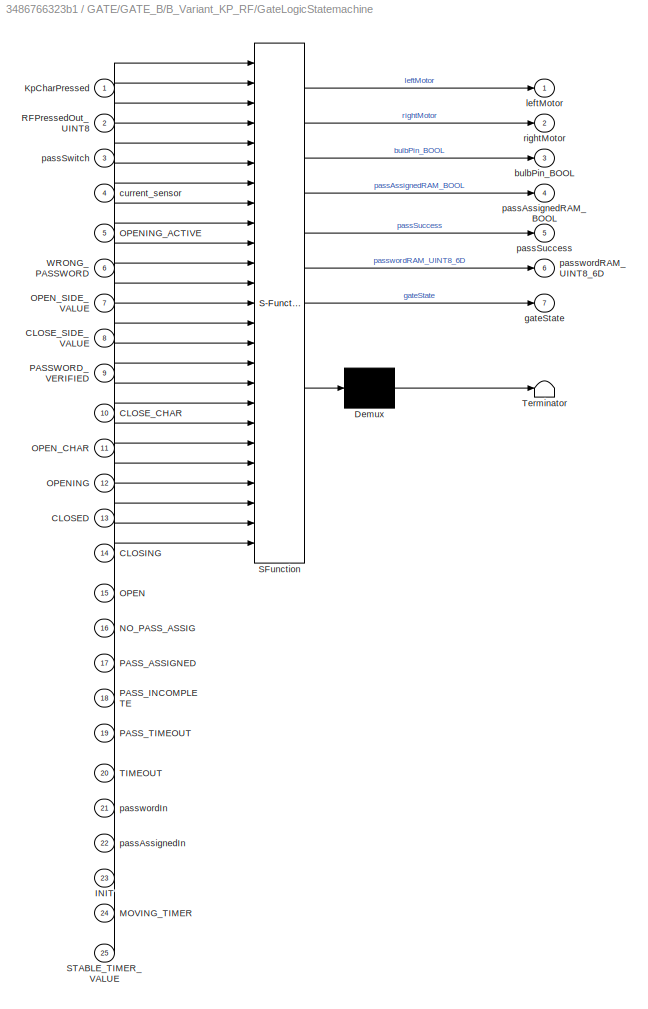
BLOCK [SubSystem] GATE/GATE_B/B_Variant_KP_RF/GateLogicStatemachine
  ErrorFcn = Stateflow.Translate.translate
  PermitHierarchicalResolution = ExplicitOnly
  Ports = [25, 7]
  RequestExecContextInheritance = off
  SFBlockType = Chart
  TreatAsAtomicUnit = on
  Variant = off
BLOCK [Demux] GATE/GATE_B/B_Variant_KP_RF/GateLogicStatemachine/ Demux 
  Outputs = 1
  Ports = [1, 1]
BLOCK [S-Function] GATE/GATE_B/B_Variant_KP_RF/GateLogicStatemachine/ SFunction 
  EnableBusSupport = on
  FunctionName = sf_sfun
  PortCounts = [25 8]
  Ports = [25, 8]
  SFunctionDeploymentMode = off
  Tag = Stateflow S-Function gate_V32_2016a_Lib_inf 20
BLOCK [Terminator] GATE/GATE_B/B_Variant_KP_RF/GateLogicStatemachine/ Terminator 
BLOCK [Inport] GATE/GATE_B/B_Variant_KP_RF/GateLogicStatemachine/CLOSED
  IconDisplay = Port number
  Port = 13
BLOCK [Inport] GATE/GATE_B/B_Variant_KP_RF/GateLogicStatemachine/CLOSE_CHAR
  IconDisplay = Port number
  Port = 10
BLOCK [Inport] GATE/GATE_B/B_Variant_KP_RF/GateLogicStatemachine/CLOSE_SIDE_VALUE
  IconDisplay = Port number
  Port = 8
BLOCK [Inport] GATE/GATE_B/B_Variant_KP_RF/GateLogicStatemachine/CLOSING
  IconDisplay = Port number
  Port = 14
BLOCK [Inport] GATE/GATE_B/B_Variant_KP_RF/GateLogicStatemachine/INIT
  IconDisplay = Port number
  Port = 23
BLOCK [Inport] GATE/GATE_B/B_Variant_KP_RF/GateLogicStatemachine/KpCharPressed
  IconDisplay = Port number
BLOCK [Inport] GATE/GATE_B/B_Variant_KP_RF/GateLogicStatemachine/MOVING_TIMER
  IconDisplay = Port number
  Port = 24
BLOCK [Inport] GATE/GATE_B/B_Variant_KP_RF/GateLogicStatemachine/NO_PASS_ASSIG
  IconDisplay = Port number
  Port = 16
BLOCK [Inport] GATE/GATE_B/B_Variant_KP_RF/GateLogicStatemachine/OPEN
  IconDisplay = Port number
  Port = 15
BLOCK [Inport] GATE/GATE_B/B_Variant_KP_RF/GateLogicStatemachine/OPENING
  IconDisplay = Port number
  Port = 12
BLOCK [Inport] GATE/GATE_B/B_Variant_KP_RF/GateLogicStatemachine/OPENING_ACTIVE
  IconDisplay = Port number
  Port = 5
BLOCK [Inport] GATE/GATE_B/B_Variant_KP_RF/GateLogicStatemachine/OPEN_CHAR
  IconDisplay = Port number
  Port = 11
BLOCK [Inport] GATE/GATE_B/B_Variant_KP_RF/GateLogicStatemachine/OPEN_SIDE_VALUE
  IconDisplay = Port number
  Port = 7
BLOCK [Inport] GATE/GATE_B/B_Variant_KP_RF/GateLogicStatemachine/PASSWORD_VERIFIED
  IconDisplay = Port number
  Port = 9
BLOCK [Inport] GATE/GATE_B/B_Variant_KP_RF/GateLogicStatemachine/PASS_ASSIGNED
  IconDisplay = Port number
  Port = 17
BLOCK [Inport] GATE/GATE_B/B_Variant_KP_RF/GateLogicStatemachine/PASS_INCOMPLETE
  IconDisplay = Port number
  Port = 18
BLOCK [Inport] GATE/GATE_B/B_Variant_KP_RF/GateLogicStatemachine/PASS_TIMEOUT
  IconDisplay = Port number
  Port = 19
BLOCK [Inport] GATE/GATE_B/B_Variant_KP_RF/GateLogicStatemachine/RFPressedOut_UINT8
  IconDisplay = Port number
  Port = 2
BLOCK [Inport] GATE/GATE_B/B_Variant_KP_RF/GateLogicStatemachine/STABLE_TIMER_VALUE
  IconDisplay = Port number
  Port = 25
BLOCK [Inport] GATE/GATE_B/B_Variant_KP_RF/GateLogicStatemachine/TIMEOUT
  IconDisplay = Port number
  Port = 20
BLOCK [Inport] GATE/GATE_B/B_Variant_KP_RF/GateLogicStatemachine/WRONG_PASSWORD
  IconDisplay = Port number
  Port = 6
BLOCK [Outport] GATE/GATE_B/B_Variant_KP_RF/GateLogicStatemachine/bulbPin_BOOL
  IconDisplay = Port number
  Port = 3
BLOCK [Inport] GATE/GATE_B/B_Variant_KP_RF/GateLogicStatemachine/current_sensor
  IconDisplay = Port number
  Port = 4
BLOCK [Outport] GATE/GATE_B/B_Variant_KP_RF/GateLogicStatemachine/gateState
  IconDisplay = Port number
  Port = 7
BLOCK [Outport] GATE/GATE_B/B_Variant_KP_RF/GateLogicStatemachine/leftMotor
  IconDisplay = Port number
BLOCK [Inport] GATE/GATE_B/B_Variant_KP_RF/GateLogicStatemachine/passAssignedIn
  IconDisplay = Port number
  Port = 22
BLOCK [Outport] GATE/GATE_B/B_Variant_KP_RF/GateLogicStatemachine/passAssignedRAM_BOOL
  IconDisplay = Port number
  Port = 4
BLOCK [Outport] GATE/GATE_B/B_Variant_KP_RF/GateLogicStatemachine/passSuccess
  IconDisplay = Port number
  Port = 5
BLOCK [Inport] GATE/GATE_B/B_Variant_KP_RF/GateLogicStatemachine/passSwitch
  IconDisplay = Port number
  Port = 3
BLOCK [Inport] GATE/GATE_B/B_Variant_KP_RF/GateLogicStatemachine/passwordIn
  IconDisplay = Port number
  Port = 21
BLOCK [Outport] GATE/GATE_B/B_Variant_KP_RF/GateLogicStatemachine/passwordRAM_UINT8_6D
  IconDisplay = Port number
  Port = 6
BLOCK [Outport] GATE/GATE_B/B_Variant_KP_RF/GateLogicStatemachine/rightMotor
  IconDisplay = Port number
  Port = 2
BLOCK [Constant] GATE/GATE_B/B_Variant_KP_RF/INIT
  SampleTime = -1
  Value = INIT
BLOCK [Inport] GATE/GATE_B/B_Variant_KP_RF/KpCharPressed
  IconDisplay = Port number
BLOCK [Constant] GATE/GATE_B/B_Variant_KP_RF/MOVING_TIMER
  SampleTime = -1
  Value = MOVING_TIMER
BLOCK [Constant] GATE/GATE_B/B_Variant_KP_RF/NO_PASS_ASSIG
  SampleTime = -1
  Value = NO_PASS_ASSIG
BLOCK [Constant] GATE/GATE_B/B_Variant_KP_RF/OPEN
  SampleTime = -1
  Value = OPEN
BLOCK [Constant] GATE/GATE_B/B_Variant_KP_RF/OPENING
  SampleTime = -1
  Value = OPENING
BLOCK [Constant] GATE/GATE_B/B_Variant_KP_RF/OPENING_ACTIVE
  SampleTime = -1
  Value = OPENING_ACTIVE
BLOCK [Constant] GATE/GATE_B/B_Variant_KP_RF/OPEN_CHAR
  SampleTime = -1
  Value = OPEN_CHAR
BLOCK [Constant] GATE/GATE_B/B_Variant_KP_RF/OPEN_SIDE_VALUE
  SampleTime = -1
  Value = OPEN_SIDE_VALUE
BLOCK [Constant] GATE/GATE_B/B_Variant_KP_RF/PASSWORD_VERIFIED
  SampleTime = -1
  Value = PASSWORD_VERIFIED
BLOCK [Constant] GATE/GATE_B/B_Variant_KP_RF/PASS_ASSIGNED
  SampleTime = -1
  Value = PASS_ASSIGNED
BLOCK [Constant] GATE/GATE_B/B_Variant_KP_RF/PASS_INCOMPLETE
  SampleTime = -1
  Value = PASS_INCOMPLETE
BLOCK [Constant] GATE/GATE_B/B_Variant_KP_RF/PASS_TIMEOUT
  SampleTime = -1
  Value = PASS_TIMEOUT
BLOCK [Outport] GATE/GATE_B/B_Variant_KP_RF/PassAssigned
  IconDisplay = Port number
  Port = 4
BLOCK [Outport] GATE/GATE_B/B_Variant_KP_RF/PassSuccess
  IconDisplay = Port number
  Port = 5
BLOCK [Inport] GATE/GATE_B/B_Variant_KP_RF/RFPressedOut
  IconDisplay = Port number
  Port = 2
BLOCK [Constant] GATE/GATE_B/B_Variant_KP_RF/STABLE_TIMER_VALUE
  SampleTime = -1
  Value = STABLE_TIMER_VALUE
BLOCK [Constant] GATE/GATE_B/B_Variant_KP_RF/TIMEOUT
  SampleTime = -1
  Value = TIMEOUT
BLOCK [Terminator] GATE/GATE_B/B_Variant_KP_RF/Terminator
BLOCK [Constant] GATE/GATE_B/B_Variant_KP_RF/WRONG_PASSWORD
  SampleTime = -1
  Value = WRONG_PASSWORD
BLOCK [Outport] GATE/GATE_B/B_Variant_KP_RF/bulbPin_BOOL
  IconDisplay = Port number
  Port = 3
BLOCK [Inport] GATE/GATE_B/B_Variant_KP_RF/current_sensor
  IconDisplay = Port number
  Port = 4
BLOCK [Outport] GATE/GATE_B/B_Variant_KP_RF/gateState
  IconDisplay = Port number
  Port = 7
BLOCK [Outport] GATE/GATE_B/B_Variant_KP_RF/leftMotor
  IconDisplay = Port number
BLOCK [Inport] GATE/GATE_B/B_Variant_KP_RF/passAssignedIn
  IconDisplay = Port number
  Port = 7
BLOCK [Inport] GATE/GATE_B/B_Variant_KP_RF/passSwitch
  IconDisplay = Port number
  Port = 3
BLOCK [Inport] GATE/GATE_B/B_Variant_KP_RF/passwordIn
  IconDisplay = Port number
  Port = 6
BLOCK [Outport] GATE/GATE_B/B_Variant_KP_RF/passwordOut
  IconDisplay = Port number
  Port = 6
BLOCK [Outport] GATE/GATE_B/B_Variant_KP_RF/rightMotor
  IconDisplay = Port number
  Port = 2
BLOCK [Inport] GATE/GATE_B/BtCharReceived
  IconDisplay = Port number
  Port = 2
BLOCK [Outport] GATE/GATE_B/CommonMotorPin
  IconDisplay = Port number
  Port = 5
BLOCK [SubSystem] GATE/GATE_B/CurrentFilterSubsystem
  Ports = [2, 1]
  RequestExecContextInheritance = off
  Variant = off
BLOCK [SubSystem] GATE/GATE_B/CurrentFilterSubsystem/10msSmapler
  Commented = on
  ErrorFcn = Stateflow.Translate.translate
  PermitHierarchicalResolution = ExplicitOnly
  Ports = [0, 1]
  RequestExecContextInheritance = off
  SFBlockType = Chart
  TreatAsAtomicUnit = on
  Variant = off
BLOCK [Demux] GATE/GATE_B/CurrentFilterSubsystem/10msSmapler/ Demux 
  Outputs = 1
  Ports = [1, 1]
BLOCK [Ground] GATE/GATE_B/CurrentFilterSubsystem/10msSmapler/ Ground 
BLOCK [S-Function] GATE/GATE_B/CurrentFilterSubsystem/10msSmapler/ SFunction 
  EnableBusSupport = on
  FunctionName = sf_sfun
  PortCounts = [1 1]
  Ports = [1, 1]
  SFunctionDeploymentMode = off
  Tag = Stateflow S-Function gate_V32_2016a_Lib_inf 21
BLOCK [Outport] GATE/GATE_B/CurrentFilterSubsystem/10msSmapler/triggerOn()
  IconDisplay = Port number
BLOCK [SubSystem] GATE/GATE_B/CurrentFilterSubsystem/Subsystem
  Ports = [2, 1]
  RequestExecContextInheritance = off
  Variant = off
BLOCK [Logic] GATE/GATE_B/CurrentFilterSubsystem/Subsystem/Logical Operator
  AllPortsSameDT = off
  Operator = OR
  OutDataTypeStr = boolean
  Ports = [2, 1]
BLOCK [UnitDelay] GATE/GATE_B/CurrentFilterSubsystem/Subsystem/Unit Delay
  InputProcessing = Elements as channels (sample based)
  SampleTime = -1
BLOCK [UnitDelay] GATE/GATE_B/CurrentFilterSubsystem/Subsystem/Unit Delay1
  InputProcessing = Elements as channels (sample based)
  SampleTime = -1
BLOCK [Constant] GATE/GATE_B/CurrentFilterSubsystem/Subsystem/WRONG_PASSWORD
  SampleTime = -1
  Value = CURRENT_STABLE_TIMER
BLOCK [Constant] GATE/GATE_B/CurrentFilterSubsystem/Subsystem/WRONG_PASSWORD1
  SampleTime = -1
  Value = CURRENT_STABLE_TIMER
BLOCK [Constant] GATE/GATE_B/CurrentFilterSubsystem/Subsystem/WRONG_PASSWORD2
  SampleTime = -1
  Value = CURRENT_THRESH
BLOCK [Constant] GATE/GATE_B/CurrentFilterSubsystem/Subsystem/WRONG_PASSWORD3
  SampleTime = -1
  Value = CURRENT_THRESH
BLOCK [Outport] GATE/GATE_B/CurrentFilterSubsystem/Subsystem/current
  IconDisplay = Port number
BLOCK [Inport] GATE/GATE_B/CurrentFilterSubsystem/Subsystem/leftCurrentRaw
  IconDisplay = Port number
  Port = 2
BLOCK [SubSystem] GATE/GATE_B/CurrentFilterSubsystem/Subsystem/leftSquareWaveDetector
  ErrorFcn = Stateflow.Translate.translate
  PermitHierarchicalResolution = ExplicitOnly
  Ports = [4, 1]
  RequestExecContextInheritance = off
  SFBlockType = Chart
  TreatAsAtomicUnit = on
  Variant = off
BLOCK [Demux] GATE/GATE_B/CurrentFilterSubsystem/Subsystem/leftSquareWaveDetector/ Demux 
  Outputs = 1
  Ports = [1, 1]
BLOCK [S-Function] GATE/GATE_B/CurrentFilterSubsystem/Subsystem/leftSquareWaveDetector/ SFunction 
  EnableBusSupport = on
  FunctionName = sf_sfun
  PortCounts = [4 2]
  Ports = [4, 2]
  SFunctionDeploymentMode = off
  Tag = Stateflow S-Function gate_V32_2016a_Lib_inf 1
BLOCK [Terminator] GATE/GATE_B/CurrentFilterSubsystem/Subsystem/leftSquareWaveDetector/ Terminator 
BLOCK [Inport] GATE/GATE_B/CurrentFilterSubsystem/Subsystem/leftSquareWaveDetector/CURRENT_STABLE_TIMER
  IconDisplay = Port number
  Port = 3
BLOCK [Inport] GATE/GATE_B/CurrentFilterSubsystem/Subsystem/leftSquareWaveDetector/CURRENT_THRESH
  IconDisplay = Port number
  Port = 4
BLOCK [Inport] GATE/GATE_B/CurrentFilterSubsystem/Subsystem/leftSquareWaveDetector/CurrentAnalogIn
  IconDisplay = Port number
BLOCK [Inport] GATE/GATE_B/CurrentFilterSubsystem/Subsystem/leftSquareWaveDetector/CurrentAnalogInOld
  IconDisplay = Port number
  Port = 2
BLOCK [Outport] GATE/GATE_B/CurrentFilterSubsystem/Subsystem/leftSquareWaveDetector/currentValue
  IconDisplay = Port number
BLOCK [Inport] GATE/GATE_B/CurrentFilterSubsystem/Subsystem/rightCurrentRaw
  IconDisplay = Port number
BLOCK [SubSystem] GATE/GATE_B/CurrentFilterSubsystem/Subsystem/rightSquareWaveDetector
  ErrorFcn = Stateflow.Translate.translate
  PermitHierarchicalResolution = ExplicitOnly
  Ports = [4, 1]
  RequestExecContextInheritance = off
  SFBlockType = Chart
  TreatAsAtomicUnit = on
  Variant = off
BLOCK [Demux] GATE/GATE_B/CurrentFilterSubsystem/Subsystem/rightSquareWaveDetector/ Demux 
  Outputs = 1
  Ports = [1, 1]
BLOCK [S-Function] GATE/GATE_B/CurrentFilterSubsystem/Subsystem/rightSquareWaveDetector/ SFunction 
  EnableBusSupport = on
  FunctionName = sf_sfun
  PortCounts = [4 2]
  Ports = [4, 2]
  SFunctionDeploymentMode = off
  Tag = Stateflow S-Function gate_V32_2016a_Lib_inf 22
BLOCK [Terminator] GATE/GATE_B/CurrentFilterSubsystem/Subsystem/rightSquareWaveDetector/ Terminator 
BLOCK [Inport] GATE/GATE_B/CurrentFilterSubsystem/Subsystem/rightSquareWaveDetector/CURRENT_STABLE_TIMER
  IconDisplay = Port number
  Port = 3
BLOCK [Inport] GATE/GATE_B/CurrentFilterSubsystem/Subsystem/rightSquareWaveDetector/CURRENT_THRESH
  IconDisplay = Port number
  Port = 4
BLOCK [Inport] GATE/GATE_B/CurrentFilterSubsystem/Subsystem/rightSquareWaveDetector/CurrentAnalogIn
  IconDisplay = Port number
BLOCK [Inport] GATE/GATE_B/CurrentFilterSubsystem/Subsystem/rightSquareWaveDetector/CurrentAnalogInOld
  IconDisplay = Port number
  Port = 2
BLOCK [Outport] GATE/GATE_B/CurrentFilterSubsystem/Subsystem/rightSquareWaveDetector/currentValue
  IconDisplay = Port number
BLOCK [Outport] GATE/GATE_B/CurrentFilterSubsystem/current
  IconDisplay = Port number
BLOCK [Inport] GATE/GATE_B/CurrentFilterSubsystem/leftCurrentRaw
  IconDisplay = Port number
  Port = 2
BLOCK [Inport] GATE/GATE_B/CurrentFilterSubsystem/rightCurrentRaw
  IconDisplay = Port number
BLOCK [From] GATE/GATE_B/From2
  GotoTag = passAssigned
BLOCK [From] GATE/GATE_B/From4
  GotoTag = passAssigned
BLOCK [From] GATE/GATE_B/From_BtCharReceived
  GotoTag = BtCharReceived
BLOCK [From] GATE/GATE_B/From_BtCharReceived1
  GotoTag = BtCharReceived
BLOCK [From] GATE/GATE_B/From_KpCharPressed
  GotoTag = KpCharPressed
BLOCK [From] GATE/GATE_B/From_KpCharPressed1
  GotoTag = KpCharPressed
BLOCK [From] GATE/GATE_B/From_PassSw
  GotoTag = PassSw
BLOCK [From] GATE/GATE_B/From_PassSw1
  GotoTag = PassSw
BLOCK [Goto] GATE/GATE_B/Goto_BtCharReceived
  GotoTag = BtCharReceived
BLOCK [Goto] GATE/GATE_B/Goto_KpCharPressed
  GotoTag = KpCharPressed
BLOCK [Goto] GATE/GATE_B/Goto_PassSw
  GotoTag = PassSw
BLOCK [Goto] GATE/GATE_B/Goto_passAssigned
  GotoTag = passAssigned
BLOCK [Inport] GATE/GATE_B/KpCharPressed
  IconDisplay = Port number
BLOCK [Outport] GATE/GATE_B/LeftMotorPin
  IconDisplay = Port number
  Port = 4
BLOCK [Inport] GATE/GATE_B/PassSwPressedOut
  IconDisplay = Port number
  Port = 3
BLOCK [Inport] GATE/GATE_B/RFPressedOut
  IconDisplay = Port number
  Port = 5
BLOCK [UnitDelay] GATE/GATE_B/Unit Delay2
  InputProcessing = Elements as channels (sample based)
  SampleTime = -1
BLOCK [UnitDelay] GATE/GATE_B/Unit Delay3
  InputProcessing = Elements as channels (sample based)
  SampleTime = -1
BLOCK [Outport] GATE/GATE_B/bulbPin
  IconDisplay = Port number
  Port = 7
BLOCK [Outport] GATE/GATE_B/greenLedPin
  IconDisplay = Port number
BLOCK [Inport] GATE/GATE_B/leftCurrentRaw
  IconDisplay = Port number
  Port = 6
BLOCK [Outport] GATE/GATE_B/passAssigned
  IconDisplay = Port number
  Port = 9
BLOCK [Inport] GATE/GATE_B/passAssignedIn
  IconDisplay = Port number
  Port = 8
BLOCK [Inport] GATE/GATE_B/passwordIn
  IconDisplay = Port number
  Port = 7
BLOCK [Outport] GATE/GATE_B/passwordOut
  IconDisplay = Port number
  Port = 10
BLOCK [Outport] GATE/GATE_B/redLedPin
  IconDisplay = Port number
  Port = 2
BLOCK [Inport] GATE/GATE_B/rightCurrentRaw
  IconDisplay = Port number
  Port = 4
BLOCK [Outport] GATE/GATE_B/rightMotorPin
  IconDisplay = Port number
  Port = 6
BLOCK [Outport] GATE/GATE_B/yellowLedPin
  IconDisplay = Port number
  Port = 3
BLOCK [SubSystem] GATE/GATE_C
  Ports = [6, 8]
  RequestExecContextInheritance = off
  Variant = off
  VariantControl = VariantC
BLOCK [Outport] GATE/GATE_C/BT_TxChar
  IconDisplay = Port number
  Port = 8
BLOCK [Inport] GATE/GATE_C/BtCharReceived
  IconDisplay = Port number
  Port = 2
BLOCK [SubSystem] GATE/GATE_C/C_HardwareOutputWrapper_RF
  Ports = [4, 8]
  RequestExecContextInheritance = off
  Variant = off
  VariantControl = Variant3
BLOCK [Outport] GATE/GATE_C/C_HardwareOutputWrapper_RF/BT_TxChar
  IconDisplay = Port number
  Port = 8
BLOCK [Outport] GATE/GATE_C/C_HardwareOutputWrapper_RF/CommonMotorPin
  IconDisplay = Port number
  Port = 5
BLOCK [Constant] GATE/GATE_C/C_HardwareOutputWrapper_RF/Constant
  SampleTime = -1
  Value = 0
BLOCK [Constant] GATE/GATE_C/C_HardwareOutputWrapper_RF/Constant1
  SampleTime = -1
  Value = 0
BLOCK [Constant] GATE/GATE_C/C_HardwareOutputWrapper_RF/Constant2
  SampleTime = -1
  Value = 0
BLOCK [Constant] GATE/GATE_C/C_HardwareOutputWrapper_RF/Constant3
  SampleTime = -1
  Value = 0
BLOCK [From] GATE/GATE_C/C_HardwareOutputWrapper_RF/From
  GotoTag = leftMotor
BLOCK [From] GATE/GATE_C/C_HardwareOutputWrapper_RF/From2
  GotoTag = rightMotor
BLOCK [Goto] GATE/GATE_C/C_HardwareOutputWrapper_RF/Goto_leftMotor
  GotoTag = leftMotor
BLOCK [Goto] GATE/GATE_C/C_HardwareOutputWrapper_RF/Goto_rightMotor
  GotoTag = rightMotor
BLOCK [Outport] GATE/GATE_C/C_HardwareOutputWrapper_RF/LeftMotorPin
  IconDisplay = Port number
  Port = 4
BLOCK [SubSystem] GATE/GATE_C/C_HardwareOutputWrapper_RF/MotorHandler
  Ports = [2, 3]
  RequestExecContextInheritance = off
  Variant = off
BLOCK [Constant] GATE/GATE_C/C_HardwareOutputWrapper_RF/MotorHandler/CLOSED
  SampleTime = -1
  Value = CLOSED
BLOCK [Constant] GATE/GATE_C/C_HardwareOutputWrapper_RF/MotorHandler/CLOSING
  SampleTime = -1
  Value = CLOSING
BLOCK [Outport] GATE/GATE_C/C_HardwareOutputWrapper_RF/MotorHandler/ComPin
  IconDisplay = Port number
  Port = 2
BLOCK [Outport] GATE/GATE_C/C_HardwareOutputWrapper_RF/MotorHandler/LeftPin
  IconDisplay = Port number
BLOCK [SubSystem] GATE/GATE_C/C_HardwareOutputWrapper_RF/MotorHandler/MotorsHandler
  ErrorFcn = Stateflow.Translate.translate
  PermitHierarchicalResolution = ExplicitOnly
  Ports = [8, 3]
  RequestExecContextInheritance = off
  SFBlockType = Chart
  TreatAsAtomicUnit = on
  Variant = off
BLOCK [Demux] GATE/GATE_C/C_HardwareOutputWrapper_RF/MotorHandler/MotorsHandler/ Demux 
  Outputs = 1
  Ports = [1, 1]
BLOCK [S-Function] GATE/GATE_C/C_HardwareOutputWrapper_RF/MotorHandler/MotorsHandler/ SFunction 
  EnableBusSupport = on
  FunctionName = sf_sfun
  PortCounts = [8 4]
  Ports = [8, 4]
  SFunctionDeploymentMode = off
  Tag = Stateflow S-Function gate_V32_2016a_Lib_inf 25
BLOCK [Terminator] GATE/GATE_C/C_HardwareOutputWrapper_RF/MotorHandler/MotorsHandler/ Terminator 
BLOCK [Inport] GATE/GATE_C/C_HardwareOutputWrapper_RF/MotorHandler/MotorsHandler/CLOSED
  IconDisplay = Port number
  Port = 5
BLOCK [Inport] GATE/GATE_C/C_HardwareOutputWrapper_RF/MotorHandler/MotorsHandler/CLOSING
  IconDisplay = Port number
  Port = 6
BLOCK [Outport] GATE/GATE_C/C_HardwareOutputWrapper_RF/MotorHandler/MotorsHandler/ComMotorPin_BOOL
  IconDisplay = Port number
  Port = 2
BLOCK [Outport] GATE/GATE_C/C_HardwareOutputWrapper_RF/MotorHandler/MotorsHandler/LeftMotorPin_BOOL
  IconDisplay = Port number
BLOCK [Inport] GATE/GATE_C/C_HardwareOutputWrapper_RF/MotorHandler/MotorsHandler/OPEN
  IconDisplay = Port number
  Port = 7
BLOCK [Inport] GATE/GATE_C/C_HardwareOutputWrapper_RF/MotorHandler/MotorsHandler/OPENING
  IconDisplay = Port number
  Port = 8
BLOCK [Outport] GATE/GATE_C/C_HardwareOutputWrapper_RF/MotorHandler/MotorsHandler/RightMotorPin_BOOL
  IconDisplay = Port number
  Port = 3
BLOCK [Inport] GATE/GATE_C/C_HardwareOutputWrapper_RF/MotorHandler/MotorsHandler/leftMotor
  IconDisplay = Port number
BLOCK [Inport] GATE/GATE_C/C_HardwareOutputWrapper_RF/MotorHandler/MotorsHandler/oldLeft
  IconDisplay = Port number
  Port = 2
BLOCK [Inport] GATE/GATE_C/C_HardwareOutputWrapper_RF/MotorHandler/MotorsHandler/oldRight
  IconDisplay = Port number
  Port = 4
BLOCK [Inport] GATE/GATE_C/C_HardwareOutputWrapper_RF/MotorHandler/MotorsHandler/rightMotor
  IconDisplay = Port number
  Port = 3
BLOCK [Constant] GATE/GATE_C/C_HardwareOutputWrapper_RF/MotorHandler/OPEN
  SampleTime = -1
  Value = OPEN
BLOCK [Constant] GATE/GATE_C/C_HardwareOutputWrapper_RF/MotorHandler/OPENING
  SampleTime = -1
  Value = OPENING
BLOCK [Outport] GATE/GATE_C/C_HardwareOutputWrapper_RF/MotorHandler/RightPin
  IconDisplay = Port number
  Port = 3
BLOCK [UnitDelay] GATE/GATE_C/C_HardwareOutputWrapper_RF/MotorHandler/Unit Delay
  InputProcessing = Elements as channels (sample based)
  SampleTime = -1
BLOCK [UnitDelay] GATE/GATE_C/C_HardwareOutputWrapper_RF/MotorHandler/Unit Delay1
  InputProcessing = Elements as channels (sample based)
  SampleTime = -1
BLOCK [UnitDelay] GATE/GATE_C/C_HardwareOutputWrapper_RF/MotorHandler/Unit Delay2
  InputProcessing = Elements as channels (sample based)
  SampleTime = -1
BLOCK [UnitDelay] GATE/GATE_C/C_HardwareOutputWrapper_RF/MotorHandler/Unit Delay3
  InputProcessing = Elements as channels (sample based)
  SampleTime = -1
BLOCK [Inport] GATE/GATE_C/C_HardwareOutputWrapper_RF/MotorHandler/leftMotor
  IconDisplay = Port number
BLOCK [Inport] GATE/GATE_C/C_HardwareOutputWrapper_RF/MotorHandler/rightMotor
  IconDisplay = Port number
  Port = 2
BLOCK [Terminator] GATE/GATE_C/C_HardwareOutputWrapper_RF/Terminator1
BLOCK [Inport] GATE/GATE_C/C_HardwareOutputWrapper_RF/bulbPinIn_BOOL
  IconDisplay = Port number
  Port = 3
BLOCK [Outport] GATE/GATE_C/C_HardwareOutputWrapper_RF/bulbPin_BOOL
  IconDisplay = Port number
  Port = 7
BLOCK [Outport] GATE/GATE_C/C_HardwareOutputWrapper_RF/greenLedPin
  IconDisplay = Port number
BLOCK [Inport] GATE/GATE_C/C_HardwareOutputWrapper_RF/leftMotor
  IconDisplay = Port number
BLOCK [Inport] GATE/GATE_C/C_HardwareOutputWrapper_RF/passSw
  IconDisplay = Port number
  Port = 4
BLOCK [Outport] GATE/GATE_C/C_HardwareOutputWrapper_RF/redLedPin
  IconDisplay = Port number
  Port = 2
BLOCK [Inport] GATE/GATE_C/C_HardwareOutputWrapper_RF/rightMotor
  IconDisplay = Port number
  Port = 2
BLOCK [Outport] GATE/GATE_C/C_HardwareOutputWrapper_RF/rightMotorPin
  IconDisplay = Port number
  Port = 6
BLOCK [Outport] GATE/GATE_C/C_HardwareOutputWrapper_RF/yellowLedPin
  IconDisplay = Port number
  Port = 3
BLOCK [SubSystem] GATE/GATE_C/C_Variant_RF
  Ports = [3, 3]
  RequestExecContextInheritance = off
  Variant = off
  VariantControl = Variant3
BLOCK [Constant] GATE/GATE_C/C_Variant_RF/CLOSED
  SampleTime = -1
  Value = CLOSED
BLOCK [Constant] GATE/GATE_C/C_Variant_RF/CLOSE_SIDE_VALUE
  SampleTime = -1
  Value = CLOSE_SIDE_VALUE
BLOCK [Constant] GATE/GATE_C/C_Variant_RF/CLOSING
  SampleTime = -1
  Value = CLOSING
BLOCK [SubSystem] GATE/GATE_C/C_Variant_RF/GateLogicStatemachine
  ErrorFcn = Stateflow.Translate.translate
  PermitHierarchicalResolution = ExplicitOnly
  Ports = [10, 3]
  RequestExecContextInheritance = off
  SFBlockType = Chart
  TreatAsAtomicUnit = on
  Variant = off
BLOCK [Demux] GATE/GATE_C/C_Variant_RF/GateLogicStatemachine/ Demux 
  Outputs = 1
  Ports = [1, 1]
BLOCK [S-Function] GATE/GATE_C/C_Variant_RF/GateLogicStatemachine/ SFunction 
  EnableBusSupport = on
  FunctionName = sf_sfun
  PortCounts = [10 4]
  Ports = [10, 4]
  SFunctionDeploymentMode = off
  Tag = Stateflow S-Function gate_V32_2016a_Lib_inf 24
BLOCK [Terminator] GATE/GATE_C/C_Variant_RF/GateLogicStatemachine/ Terminator 
BLOCK [Inport] GATE/GATE_C/C_Variant_RF/GateLogicStatemachine/CLOSED
  IconDisplay = Port number
  Port = 8
BLOCK [Inport] GATE/GATE_C/C_Variant_RF/GateLogicStatemachine/CLOSE_SIDE_VALUE
  IconDisplay = Port number
  Port = 6
BLOCK [Inport] GATE/GATE_C/C_Variant_RF/GateLogicStatemachine/CLOSING
  IconDisplay = Port number
  Port = 9
BLOCK [Inport] GATE/GATE_C/C_Variant_RF/GateLogicStatemachine/OPEN
  IconDisplay = Port number
  Port = 10
BLOCK [Inport] GATE/GATE_C/C_Variant_RF/GateLogicStatemachine/OPENING
  IconDisplay = Port number
  Port = 7
BLOCK [Inport] GATE/GATE_C/C_Variant_RF/GateLogicStatemachine/OPENING_ACTIVE
  IconDisplay = Port number
  Port = 4
BLOCK [Inport] GATE/GATE_C/C_Variant_RF/GateLogicStatemachine/OPEN_SIDE_VALUE
  IconDisplay = Port number
  Port = 5
BLOCK [Inport] GATE/GATE_C/C_Variant_RF/GateLogicStatemachine/RFPressedOut_UINT8
  IconDisplay = Port number
BLOCK [Outport] GATE/GATE_C/C_Variant_RF/GateLogicStatemachine/bulbPin_BOOL
  IconDisplay = Port number
  Port = 3
BLOCK [Inport] GATE/GATE_C/C_Variant_RF/GateLogicStatemachine/current_sensor
  IconDisplay = Port number
  Port = 3
BLOCK [Outport] GATE/GATE_C/C_Variant_RF/GateLogicStatemachine/leftMotor
  IconDisplay = Port number
BLOCK [Inport] GATE/GATE_C/C_Variant_RF/GateLogicStatemachine/passSwitch
  IconDisplay = Port number
  Port = 2
BLOCK [Outport] GATE/GATE_C/C_Variant_RF/GateLogicStatemachine/rightMotor
  IconDisplay = Port number
  Port = 2
BLOCK [Constant] GATE/GATE_C/C_Variant_RF/OPEN
  SampleTime = -1
  Value = OPEN
BLOCK [Constant] GATE/GATE_C/C_Variant_RF/OPENING
  SampleTime = -1
  Value = OPENING
BLOCK [Constant] GATE/GATE_C/C_Variant_RF/OPENING_ACTIVE
  SampleTime = -1
  Value = OPENING_ACTIVE
BLOCK [Constant] GATE/GATE_C/C_Variant_RF/OPEN_SIDE_VALUE
  SampleTime = -1
  Value = OPEN_SIDE_VALUE
BLOCK [Inport] GATE/GATE_C/C_Variant_RF/RFPressedOut_UINT8
  IconDisplay = Port number
BLOCK [Outport] GATE/GATE_C/C_Variant_RF/bulbPin_BOOL
  IconDisplay = Port number
  Port = 3
BLOCK [Inport] GATE/GATE_C/C_Variant_RF/current_sensor
  IconDisplay = Port number
  Port = 3
BLOCK [Outport] GATE/GATE_C/C_Variant_RF/leftMotor
  IconDisplay = Port number
BLOCK [Inport] GATE/GATE_C/C_Variant_RF/passSwitch
  IconDisplay = Port number
  Port = 2
BLOCK [Outport] GATE/GATE_C/C_Variant_RF/rightMotor
  IconDisplay = Port number
  Port = 2
BLOCK [Outport] GATE/GATE_C/CommonMotorPin
  IconDisplay = Port number
  Port = 5
BLOCK [SubSystem] GATE/GATE_C/CurrentFilterSubsystem
  Ports = [2, 1]
  RequestExecContextInheritance = off
  Variant = off
BLOCK [SubSystem] GATE/GATE_C/CurrentFilterSubsystem/10msSmapler
  ErrorFcn = Stateflow.Translate.translate
  PermitHierarchicalResolution = ExplicitOnly
  Ports = [0, 1]
  RequestExecContextInheritance = off
  SFBlockType = Chart
  TreatAsAtomicUnit = on
  Variant = off
BLOCK [Demux] GATE/GATE_C/CurrentFilterSubsystem/10msSmapler/ Demux 
  Outputs = 1
  Ports = [1, 1]
BLOCK [Ground] GATE/GATE_C/CurrentFilterSubsystem/10msSmapler/ Ground 
BLOCK [S-Function] GATE/GATE_C/CurrentFilterSubsystem/10msSmapler/ SFunction 
  EnableBusSupport = on
  FunctionName = sf_sfun
  PortCounts = [1 1]
  Ports = [1, 1]
  SFunctionDeploymentMode = off
  Tag = Stateflow S-Function gate_V32_2016a_Lib_inf 37
BLOCK [Outport] GATE/GATE_C/CurrentFilterSubsystem/10msSmapler/triggerOn()
  IconDisplay = Port number
BLOCK [SubSystem] GATE/GATE_C/CurrentFilterSubsystem/Subsystem
  Ports = [2, 1, 0, 1]
  RequestExecContextInheritance = off
  Variant = off
BLOCK [Logic] GATE/GATE_C/CurrentFilterSubsystem/Subsystem/Logical Operator
  AllPortsSameDT = off
  Operator = OR
  OutDataTypeStr = boolean
  Ports = [2, 1]
BLOCK [SubSystem] GATE/GATE_C/CurrentFilterSubsystem/Subsystem/SquareWaveDetector
  ErrorFcn = Stateflow.Translate.translate
  PermitHierarchicalResolution = ExplicitOnly
  Ports = [2, 1]
  RequestExecContextInheritance = off
  SFBlockType = Chart
  TreatAsAtomicUnit = on
  Variant = off
BLOCK [Demux] GATE/GATE_C/CurrentFilterSubsystem/Subsystem/SquareWaveDetector/ Demux 
  Outputs = 1
  Ports = [1, 1]
BLOCK [S-Function] GATE/GATE_C/CurrentFilterSubsystem/Subsystem/SquareWaveDetector/ SFunction 
  EnableBusSupport = on
  FunctionName = sf_sfun
  PortCounts = [2 2]
  Ports = [2, 2]
  SFunctionDeploymentMode = off
  Tag = Stateflow S-Function gate_V32_2016a_Lib_inf 38
BLOCK [Terminator] GATE/GATE_C/CurrentFilterSubsystem/Subsystem/SquareWaveDetector/ Terminator 
BLOCK [Inport] GATE/GATE_C/CurrentFilterSubsystem/Subsystem/SquareWaveDetector/CurrentAnalogIn
  IconDisplay = Port number
BLOCK [Inport] GATE/GATE_C/CurrentFilterSubsystem/Subsystem/SquareWaveDetector/CurrentAnalogInOld
  IconDisplay = Port number
  Port = 2
BLOCK [Outport] GATE/GATE_C/CurrentFilterSubsystem/Subsystem/SquareWaveDetector/currentValue
  IconDisplay = Port number
BLOCK [SubSystem] GATE/GATE_C/CurrentFilterSubsystem/Subsystem/SquareWaveDetector1
  ErrorFcn = Stateflow.Translate.translate
  PermitHierarchicalResolution = ExplicitOnly
  Ports = [2, 1]
  RequestExecContextInheritance = off
  SFBlockType = Chart
  TreatAsAtomicUnit = on
  Variant = off
BLOCK [Demux] GATE/GATE_C/CurrentFilterSubsystem/Subsystem/SquareWaveDetector1/ Demux 
  Outputs = 1
  Ports = [1, 1]
BLOCK [S-Function] GATE/GATE_C/CurrentFilterSubsystem/Subsystem/SquareWaveDetector1/ SFunction 
  EnableBusSupport = on
  FunctionName = sf_sfun
  PortCounts = [2 2]
  Ports = [2, 2]
  SFunctionDeploymentMode = off
  Tag = Stateflow S-Function gate_V32_2016a_Lib_inf 6
BLOCK [Terminator] GATE/GATE_C/CurrentFilterSubsystem/Subsystem/SquareWaveDetector1/ Terminator 
BLOCK [Inport] GATE/GATE_C/CurrentFilterSubsystem/Subsystem/SquareWaveDetector1/CurrentAnalogIn
  IconDisplay = Port number
BLOCK [Inport] GATE/GATE_C/CurrentFilterSubsystem/Subsystem/SquareWaveDetector1/CurrentAnalogInOld
  IconDisplay = Port number
  Port = 2
BLOCK [Outport] GATE/GATE_C/CurrentFilterSubsystem/Subsystem/SquareWaveDetector1/currentValue
  IconDisplay = Port number
BLOCK [TriggerPort] GATE/GATE_C/CurrentFilterSubsystem/Subsystem/Trigger
  AttributesFormatString = %<StatesWhenEnabling>
  PortDimensions = 1
  Ports = []
  StatesWhenEnabling = held
  TriggerType = function-call
  VariantControl = Variant
BLOCK [UnitDelay] GATE/GATE_C/CurrentFilterSubsystem/Subsystem/Unit Delay
  InputProcessing = Elements as channels (sample based)
  SampleTime = -1
BLOCK [UnitDelay] GATE/GATE_C/CurrentFilterSubsystem/Subsystem/Unit Delay1
  InputProcessing = Elements as channels (sample based)
  SampleTime = -1
BLOCK [Outport] GATE/GATE_C/CurrentFilterSubsystem/Subsystem/current
  AttributesFormatString = %<OutputWhenDisabled>
  IconDisplay = Port number
BLOCK [Inport] GATE/GATE_C/CurrentFilterSubsystem/Subsystem/leftCurrentRaw
  IconDisplay = Port number
  Port = 2
BLOCK [Inport] GATE/GATE_C/CurrentFilterSubsystem/Subsystem/rightCurrentRaw
  IconDisplay = Port number
BLOCK [Outport] GATE/GATE_C/CurrentFilterSubsystem/current
  IconDisplay = Port number
BLOCK [Inport] GATE/GATE_C/CurrentFilterSubsystem/leftCurrentRaw
  IconDisplay = Port number
  Port = 2
BLOCK [Inport] GATE/GATE_C/CurrentFilterSubsystem/rightCurrentRaw
  IconDisplay = Port number
BLOCK [From] GATE/GATE_C/From_PassSw
  GotoTag = PassSw
BLOCK [From] GATE/GATE_C/From_PassSw1
  GotoTag = PassSw
BLOCK [From] GATE/GATE_C/From_leftMotor
  GotoTag = leftMotor
BLOCK [From] GATE/GATE_C/From_rightMotor
  GotoTag = rightMotor
BLOCK [Goto] GATE/GATE_C/Goto_PassSw
  GotoTag = PassSw
BLOCK [Goto] GATE/GATE_C/Goto_leftMotor
  GotoTag = leftMotor
BLOCK [Goto] GATE/GATE_C/Goto_rightMotor
  GotoTag = rightMotor
BLOCK [Inport] GATE/GATE_C/KpCharPressed
  IconDisplay = Port number
BLOCK [Outport] GATE/GATE_C/LeftMotorPin
  IconDisplay = Port number
  Port = 4
BLOCK [Inport] GATE/GATE_C/PassSwPressedOut
  IconDisplay = Port number
  Port = 3
BLOCK [Inport] GATE/GATE_C/RFPressedOut
  IconDisplay = Port number
  Port = 5
BLOCK [Terminator] GATE/GATE_C/Terminator
BLOCK [Terminator] GATE/GATE_C/Terminator1
BLOCK [Outport] GATE/GATE_C/bulbPin
  IconDisplay = Port number
  Port = 7
BLOCK [Outport] GATE/GATE_C/greenLedPin
  IconDisplay = Port number
BLOCK [Inport] GATE/GATE_C/leftCurrentRaw
  IconDisplay = Port number
  Port = 6
BLOCK [Outport] GATE/GATE_C/redLedPin
  IconDisplay = Port number
  Port = 2
BLOCK [Inport] GATE/GATE_C/rightCurrentRaw
  IconDisplay = Port number
  Port = 4
BLOCK [Outport] GATE/GATE_C/rightMotorPin
  IconDisplay = Port number
  Port = 6
BLOCK [Outport] GATE/GATE_C/yellowLedPin
  IconDisplay = Port number
  Port = 3
BLOCK [Inport] GATE/KpCharPressed 
  IconDisplay = Port number
BLOCK [Inport] GATE/PassSwPressedOut 
  IconDisplay = Port number
  Port = 3
BLOCK [Inport] GATE/RFPressedOut
  IconDisplay = Port number
  Port = 6
BLOCK [Inport] GATE/leftCurrentRaw
  IconDisplay = Port number
  Port = 5
BLOCK [Outport] GATE/passAssigned
  IconDisplay = Port number
  Port = 9
BLOCK [Inport] GATE/passAssignedIn
  IconDisplay = Port number
  Port = 8
BLOCK [Inport] GATE/passwordIn
  IconDisplay = Port number
  Port = 7
BLOCK [Outport] GATE/passwordOut
  IconDisplay = Port number
  Port = 10
BLOCK [Inport] GATE/rightCurrentRaw
  IconDisplay = Port number
  Port = 4
LINE GATE/GATE_A/A_HardwareOutputWrapper_BT_KP_RF/BTCharReceived:1 -> GATE/GATE_A/A_HardwareOutputWrapper_BT_KP_RF/BT_TxHandler:1
LINE GATE/GATE_A/A_HardwareOutputWrapper_BT_KP_RF/BT_TxHandler/BTCharReceived:1 -> GATE/GATE_A/A_HardwareOutputWrapper_BT_KP_RF/BT_TxHandler/BT_TxHandler:1
LINE GATE/GATE_A/A_HardwareOutputWrapper_BT_KP_RF/BT_TxHandler/BT_TxHandler:1 -> GATE/GATE_A/A_HardwareOutputWrapper_BT_KP_RF/BT_TxHandler/BT_TxChar:1
LINE GATE/GATE_A/A_HardwareOutputWrapper_BT_KP_RF/BT_TxHandler/CLOSED:1 -> GATE/GATE_A/A_HardwareOutputWrapper_BT_KP_RF/BT_TxHandler/BT_TxHandler:5
LINE GATE/GATE_A/A_HardwareOutputWrapper_BT_KP_RF/BT_TxHandler/CLOSING:1 -> GATE/GATE_A/A_HardwareOutputWrapper_BT_KP_RF/BT_TxHandler/BT_TxHandler:6
LINE GATE/GATE_A/A_HardwareOutputWrapper_BT_KP_RF/BT_TxHandler/OPEN:1 -> GATE/GATE_A/A_HardwareOutputWrapper_BT_KP_RF/BT_TxHandler/BT_TxHandler:7
LINE GATE/GATE_A/A_HardwareOutputWrapper_BT_KP_RF/BT_TxHandler/OPENING:1 -> GATE/GATE_A/A_HardwareOutputWrapper_BT_KP_RF/BT_TxHandler/BT_TxHandler:8
LINE GATE/GATE_A/A_HardwareOutputWrapper_BT_KP_RF/BT_TxHandler/PassSuccess:1 -> GATE/GATE_A/A_HardwareOutputWrapper_BT_KP_RF/BT_TxHandler/BT_TxHandler:4
LINE GATE/GATE_A/A_HardwareOutputWrapper_BT_KP_RF/BT_TxHandler/WRONG_PASSWORD:1 -> GATE/GATE_A/A_HardwareOutputWrapper_BT_KP_RF/BT_TxHandler/BT_TxHandler:9
LINE GATE/GATE_A/A_HardwareOutputWrapper_BT_KP_RF/BT_TxHandler/leftMotor:1 -> GATE/GATE_A/A_HardwareOutputWrapper_BT_KP_RF/BT_TxHandler/BT_TxHandler:2
LINE GATE/GATE_A/A_HardwareOutputWrapper_BT_KP_RF/BT_TxHandler/rightMotor:1 -> GATE/GATE_A/A_HardwareOutputWrapper_BT_KP_RF/BT_TxHandler/BT_TxHandler:3
LINE GATE/GATE_A/A_HardwareOutputWrapper_BT_KP_RF/BT_TxHandler:1 -> GATE/GATE_A/A_HardwareOutputWrapper_BT_KP_RF/BT_TxChar:1
LINE GATE/GATE_A/A_HardwareOutputWrapper_BT_KP_RF/BulbHandler/bulb:1 -> GATE/GATE_A/A_HardwareOutputWrapper_BT_KP_RF/BulbHandler/bulbPin:1
LINE GATE/GATE_A/A_HardwareOutputWrapper_BT_KP_RF/BulbHandler:1 -> GATE/GATE_A/A_HardwareOutputWrapper_BT_KP_RF/bulbPin:1
LINE GATE/GATE_A/A_HardwareOutputWrapper_BT_KP_RF/From1:1 -> GATE/GATE_A/A_HardwareOutputWrapper_BT_KP_RF/LedHandler:1
LINE GATE/GATE_A/A_HardwareOutputWrapper_BT_KP_RF/From2:1 -> GATE/GATE_A/A_HardwareOutputWrapper_BT_KP_RF/MotorHandler:2
LINE GATE/GATE_A/A_HardwareOutputWrapper_BT_KP_RF/From4:1 -> GATE/GATE_A/A_HardwareOutputWrapper_BT_KP_RF/BT_TxHandler:2
LINE GATE/GATE_A/A_HardwareOutputWrapper_BT_KP_RF/From5:1 -> GATE/GATE_A/A_HardwareOutputWrapper_BT_KP_RF/BT_TxHandler:3
LINE GATE/GATE_A/A_HardwareOutputWrapper_BT_KP_RF/From6:1 -> GATE/GATE_A/A_HardwareOutputWrapper_BT_KP_RF/LedHandler:4
LINE GATE/GATE_A/A_HardwareOutputWrapper_BT_KP_RF/From7:1 -> GATE/GATE_A/A_HardwareOutputWrapper_BT_KP_RF/BT_TxHandler:4
LINE GATE/GATE_A/A_HardwareOutputWrapper_BT_KP_RF/From:1 -> GATE/GATE_A/A_HardwareOutputWrapper_BT_KP_RF/MotorHandler:1
LINE GATE/GATE_A/A_HardwareOutputWrapper_BT_KP_RF/KpCharPressed:1 -> GATE/GATE_A/A_HardwareOutputWrapper_BT_KP_RF/LedHandler:5
LINE GATE/GATE_A/A_HardwareOutputWrapper_BT_KP_RF/LedHandler/CLOSED:1 -> GATE/GATE_A/A_HardwareOutputWrapper_BT_KP_RF/LedHandler/LedHandler:6
LINE GATE/GATE_A/A_HardwareOutputWrapper_BT_KP_RF/LedHandler/CLOSE_CHAR:1 -> GATE/GATE_A/A_HardwareOutputWrapper_BT_KP_RF/LedHandler/LedHandler:13
LINE GATE/GATE_A/A_HardwareOutputWrapper_BT_KP_RF/LedHandler/CLOSING:1 -> GATE/GATE_A/A_HardwareOutputWrapper_BT_KP_RF/LedHandler/LedHandler:7
LINE GATE/GATE_A/A_HardwareOutputWrapper_BT_KP_RF/LedHandler/KpCharPressed:1 -> GATE/GATE_A/A_HardwareOutputWrapper_BT_KP_RF/LedHandler/LedHandler:5
LINE GATE/GATE_A/A_HardwareOutputWrapper_BT_KP_RF/LedHandler/LedHandler:1 -> GATE/GATE_A/A_HardwareOutputWrapper_BT_KP_RF/LedHandler/greenLedPin:1
LINE GATE/GATE_A/A_HardwareOutputWrapper_BT_KP_RF/LedHandler/LedHandler:2 -> GATE/GATE_A/A_HardwareOutputWrapper_BT_KP_RF/LedHandler/redLedPin:1
LINE GATE/GATE_A/A_HardwareOutputWrapper_BT_KP_RF/LedHandler/LedHandler:3 -> GATE/GATE_A/A_HardwareOutputWrapper_BT_KP_RF/LedHandler/yellowLedPin:1
LINE GATE/GATE_A/A_HardwareOutputWrapper_BT_KP_RF/LedHandler/NO_PASS_ASSIG:1 -> GATE/GATE_A/A_HardwareOutputWrapper_BT_KP_RF/LedHandler/LedHandler:12
LINE GATE/GATE_A/A_HardwareOutputWrapper_BT_KP_RF/LedHandler/OPEN:1 -> GATE/GATE_A/A_HardwareOutputWrapper_BT_KP_RF/LedHandler/LedHandler:8
LINE GATE/GATE_A/A_HardwareOutputWrapper_BT_KP_RF/LedHandler/OPENING:1 -> GATE/GATE_A/A_HardwareOutputWrapper_BT_KP_RF/LedHandler/LedHandler:9
LINE GATE/GATE_A/A_HardwareOutputWrapper_BT_KP_RF/LedHandler/OPEN_CHAR:1 -> GATE/GATE_A/A_HardwareOutputWrapper_BT_KP_RF/LedHandler/LedHandler:14
LINE GATE/GATE_A/A_HardwareOutputWrapper_BT_KP_RF/LedHandler/PASSWORD_VERIFIED:1 -> GATE/GATE_A/A_HardwareOutputWrapper_BT_KP_RF/LedHandler/LedHandler:11
LINE GATE/GATE_A/A_HardwareOutputWrapper_BT_KP_RF/LedHandler/PassAssigned:1 -> GATE/GATE_A/A_HardwareOutputWrapper_BT_KP_RF/LedHandler/LedHandler:3
LINE GATE/GATE_A/A_HardwareOutputWrapper_BT_KP_RF/LedHandler/PassSuccess:1 -> GATE/GATE_A/A_HardwareOutputWrapper_BT_KP_RF/LedHandler/LedHandler:4
LINE GATE/GATE_A/A_HardwareOutputWrapper_BT_KP_RF/LedHandler/TIMEOUT:1 -> GATE/GATE_A/A_HardwareOutputWrapper_BT_KP_RF/LedHandler/LedHandler:15
LINE GATE/GATE_A/A_HardwareOutputWrapper_BT_KP_RF/LedHandler/WRONG_PASSWORD:1 -> GATE/GATE_A/A_HardwareOutputWrapper_BT_KP_RF/LedHandler/LedHandler:10
LINE GATE/GATE_A/A_HardwareOutputWrapper_BT_KP_RF/LedHandler/leftMotor:1 -> GATE/GATE_A/A_HardwareOutputWrapper_BT_KP_RF/LedHandler/LedHandler:1
LINE GATE/GATE_A/A_HardwareOutputWrapper_BT_KP_RF/LedHandler/passSw:1 -> GATE/GATE_A/A_HardwareOutputWrapper_BT_KP_RF/LedHandler/LedHandler:2
LINE GATE/GATE_A/A_HardwareOutputWrapper_BT_KP_RF/LedHandler:1 -> GATE/GATE_A/A_HardwareOutputWrapper_BT_KP_RF/greenLedPin:1
LINE GATE/GATE_A/A_HardwareOutputWrapper_BT_KP_RF/LedHandler:2 -> GATE/GATE_A/A_HardwareOutputWrapper_BT_KP_RF/redLedPin:1
LINE GATE/GATE_A/A_HardwareOutputWrapper_BT_KP_RF/LedHandler:3 -> GATE/GATE_A/A_HardwareOutputWrapper_BT_KP_RF/yellowLedPin:1
LINE GATE/GATE_A/A_HardwareOutputWrapper_BT_KP_RF/MotorHandler/CLOSED:1 -> GATE/GATE_A/A_HardwareOutputWrapper_BT_KP_RF/MotorHandler/MotorsHandler:5
LINE GATE/GATE_A/A_HardwareOutputWrapper_BT_KP_RF/MotorHandler/CLOSING:1 -> GATE/GATE_A/A_HardwareOutputWrapper_BT_KP_RF/MotorHandler/MotorsHandler:6
LINE GATE/GATE_A/A_HardwareOutputWrapper_BT_KP_RF/MotorHandler/MotorsHandler:1 -> GATE/GATE_A/A_HardwareOutputWrapper_BT_KP_RF/MotorHandler/LeftPin:1
LINE GATE/GATE_A/A_HardwareOutputWrapper_BT_KP_RF/MotorHandler/MotorsHandler:2 -> GATE/GATE_A/A_HardwareOutputWrapper_BT_KP_RF/MotorHandler/ComPin:1
LINE GATE/GATE_A/A_HardwareOutputWrapper_BT_KP_RF/MotorHandler/MotorsHandler:3 -> GATE/GATE_A/A_HardwareOutputWrapper_BT_KP_RF/MotorHandler/RightPin:1
LINE GATE/GATE_A/A_HardwareOutputWrapper_BT_KP_RF/MotorHandler/OPEN:1 -> GATE/GATE_A/A_HardwareOutputWrapper_BT_KP_RF/MotorHandler/MotorsHandler:7
LINE GATE/GATE_A/A_HardwareOutputWrapper_BT_KP_RF/MotorHandler/OPENING:1 -> GATE/GATE_A/A_HardwareOutputWrapper_BT_KP_RF/MotorHandler/MotorsHandler:8
LINE GATE/GATE_A/A_HardwareOutputWrapper_BT_KP_RF/MotorHandler/Unit Delay1:1 -> GATE/GATE_A/A_HardwareOutputWrapper_BT_KP_RF/MotorHandler/MotorsHandler:4
LINE GATE/GATE_A/A_HardwareOutputWrapper_BT_KP_RF/MotorHandler/Unit Delay:1 -> GATE/GATE_A/A_HardwareOutputWrapper_BT_KP_RF/MotorHandler/MotorsHandler:2
NET GATE/GATE_A/A_HardwareOutputWrapper_BT_KP_RF/MotorHandler/leftMotor:1 -> GATE/GATE_A/A_HardwareOutputWrapper_BT_KP_RF/MotorHandler/MotorsHandler:1, GATE/GATE_A/A_HardwareOutputWrapper_BT_KP_RF/MotorHandler/Unit Delay:1
NET GATE/GATE_A/A_HardwareOutputWrapper_BT_KP_RF/MotorHandler/rightMotor:1 -> GATE/GATE_A/A_HardwareOutputWrapper_BT_KP_RF/MotorHandler/MotorsHandler:3, GATE/GATE_A/A_HardwareOutputWrapper_BT_KP_RF/MotorHandler/Unit Delay1:1
LINE GATE/GATE_A/A_HardwareOutputWrapper_BT_KP_RF/MotorHandler:1 -> GATE/GATE_A/A_HardwareOutputWrapper_BT_KP_RF/LeftMotorPin:1
LINE GATE/GATE_A/A_HardwareOutputWrapper_BT_KP_RF/MotorHandler:2 -> GATE/GATE_A/A_HardwareOutputWrapper_BT_KP_RF/CommonMotorPin:1
LINE GATE/GATE_A/A_HardwareOutputWrapper_BT_KP_RF/MotorHandler:3 -> GATE/GATE_A/A_HardwareOutputWrapper_BT_KP_RF/rightMotorPin:1
LINE GATE/GATE_A/A_HardwareOutputWrapper_BT_KP_RF/PassAssigned:1 -> GATE/GATE_A/A_HardwareOutputWrapper_BT_KP_RF/LedHandler:3
LINE GATE/GATE_A/A_HardwareOutputWrapper_BT_KP_RF/PassSuccess:1 -> GATE/GATE_A/A_HardwareOutputWrapper_BT_KP_RF/Goto_PassSuccess:1
LINE GATE/GATE_A/A_HardwareOutputWrapper_BT_KP_RF/bulb:1 -> GATE/GATE_A/A_HardwareOutputWrapper_BT_KP_RF/BulbHandler:1
LINE GATE/GATE_A/A_HardwareOutputWrapper_BT_KP_RF/leftMotor:1 -> GATE/GATE_A/A_HardwareOutputWrapper_BT_KP_RF/Goto_leftMotor:1
LINE GATE/GATE_A/A_HardwareOutputWrapper_BT_KP_RF/passSw:1 -> GATE/GATE_A/A_HardwareOutputWrapper_BT_KP_RF/LedHandler:2
LINE GATE/GATE_A/A_HardwareOutputWrapper_BT_KP_RF/rightMotor:1 -> GATE/GATE_A/A_HardwareOutputWrapper_BT_KP_RF/Goto_rightMotor:1
LINE GATE/GATE_A/A_HardwareOutputWrapper_BT_KP_RF:1 -> GATE/GATE_A/greenLedPin:1
LINE GATE/GATE_A/A_HardwareOutputWrapper_BT_KP_RF:2 -> GATE/GATE_A/redLedPin:1
LINE GATE/GATE_A/A_HardwareOutputWrapper_BT_KP_RF:3 -> GATE/GATE_A/yellowLedPin:1
LINE GATE/GATE_A/A_HardwareOutputWrapper_BT_KP_RF:4 -> GATE/GATE_A/LeftMotorPin:1
LINE GATE/GATE_A/A_HardwareOutputWrapper_BT_KP_RF:5 -> GATE/GATE_A/CommonMotorPin:1
LINE GATE/GATE_A/A_HardwareOutputWrapper_BT_KP_RF:6 -> GATE/GATE_A/rightMotorPin:1
LINE GATE/GATE_A/A_HardwareOutputWrapper_BT_KP_RF:7 -> GATE/GATE_A/bulbPin:1
LINE GATE/GATE_A/A_HardwareOutputWrapper_BT_KP_RF:8 -> GATE/GATE_A/BT_TxChar:1
LINE GATE/GATE_A/A_Variant_BT_KP_RF/BtCharReceived:1 -> GATE/GATE_A/A_Variant_BT_KP_RF/GateLogicStatemachine:6
LINE GATE/GATE_A/A_Variant_BT_KP_RF/CLOSED:1 -> GATE/GATE_A/A_Variant_BT_KP_RF/GateLogicStatemachine:16
LINE GATE/GATE_A/A_Variant_BT_KP_RF/CLOSE_CHAR:1 -> GATE/GATE_A/A_Variant_BT_KP_RF/GateLogicStatemachine:13
LINE GATE/GATE_A/A_Variant_BT_KP_RF/CLOSE_SIDE_VALUE:1 -> GATE/GATE_A/A_Variant_BT_KP_RF/GateLogicStatemachine:10
LINE GATE/GATE_A/A_Variant_BT_KP_RF/CLOSING:1 -> GATE/GATE_A/A_Variant_BT_KP_RF/GateLogicStatemachine:17
LINE GATE/GATE_A/A_Variant_BT_KP_RF/GateLogicStatemachine:1 -> GATE/GATE_A/A_Variant_BT_KP_RF/leftMotor:1
LINE GATE/GATE_A/A_Variant_BT_KP_RF/GateLogicStatemachine:2 -> GATE/GATE_A/A_Variant_BT_KP_RF/rightMotor:1
LINE GATE/GATE_A/A_Variant_BT_KP_RF/GateLogicStatemachine:3 -> GATE/GATE_A/A_Variant_BT_KP_RF/bulb:1
LINE GATE/GATE_A/A_Variant_BT_KP_RF/GateLogicStatemachine:4 -> GATE/GATE_A/A_Variant_BT_KP_RF/PassAssigned:1
LINE GATE/GATE_A/A_Variant_BT_KP_RF/GateLogicStatemachine:5 -> GATE/GATE_A/A_Variant_BT_KP_RF/PassSuccess:1
LINE GATE/GATE_A/A_Variant_BT_KP_RF/GateLogicStatemachine:6 -> GATE/GATE_A/A_Variant_BT_KP_RF/passwordOut:1
LINE GATE/GATE_A/A_Variant_BT_KP_RF/GateLogicStatemachine:7 -> GATE/GATE_A/A_Variant_BT_KP_RF/Terminator:1
LINE GATE/GATE_A/A_Variant_BT_KP_RF/KpCharPressed:1 -> GATE/GATE_A/A_Variant_BT_KP_RF/GateLogicStatemachine:1
LINE GATE/GATE_A/A_Variant_BT_KP_RF/NO_PASS_ASSIG:1 -> GATE/GATE_A/A_Variant_BT_KP_RF/GateLogicStatemachine:19
LINE GATE/GATE_A/A_Variant_BT_KP_RF/OPEN:1 -> GATE/GATE_A/A_Variant_BT_KP_RF/GateLogicStatemachine:18
LINE GATE/GATE_A/A_Variant_BT_KP_RF/OPENING:1 -> GATE/GATE_A/A_Variant_BT_KP_RF/GateLogicStatemachine:15
LINE GATE/GATE_A/A_Variant_BT_KP_RF/OPENING_ACTIVE:1 -> GATE/GATE_A/A_Variant_BT_KP_RF/GateLogicStatemachine:7
LINE GATE/GATE_A/A_Variant_BT_KP_RF/OPEN_CHAR:1 -> GATE/GATE_A/A_Variant_BT_KP_RF/GateLogicStatemachine:14
LINE GATE/GATE_A/A_Variant_BT_KP_RF/OPEN_SIDE_VALUE:1 -> GATE/GATE_A/A_Variant_BT_KP_RF/GateLogicStatemachine:9
LINE GATE/GATE_A/A_Variant_BT_KP_RF/OPEN_TIMEOUT:1 -> GATE/GATE_A/A_Variant_BT_KP_RF/GateLogicStatemachine:11
LINE GATE/GATE_A/A_Variant_BT_KP_RF/PASSWORD_VERIFIED:1 -> GATE/GATE_A/A_Variant_BT_KP_RF/GateLogicStatemachine:12
LINE GATE/GATE_A/A_Variant_BT_KP_RF/PASS_ASSIGNED:1 -> GATE/GATE_A/A_Variant_BT_KP_RF/GateLogicStatemachine:20
LINE GATE/GATE_A/A_Variant_BT_KP_RF/PASS_INCOMPLETE:1 -> GATE/GATE_A/A_Variant_BT_KP_RF/GateLogicStatemachine:21
LINE GATE/GATE_A/A_Variant_BT_KP_RF/PASS_TIMEOUT:1 -> GATE/GATE_A/A_Variant_BT_KP_RF/GateLogicStatemachine:22
LINE GATE/GATE_A/A_Variant_BT_KP_RF/RfClose:1 -> GATE/GATE_A/A_Variant_BT_KP_RF/GateLogicStatemachine:5
LINE GATE/GATE_A/A_Variant_BT_KP_RF/RfOpen:1 -> GATE/GATE_A/A_Variant_BT_KP_RF/GateLogicStatemachine:2
LINE GATE/GATE_A/A_Variant_BT_KP_RF/TIMEOUT:1 -> GATE/GATE_A/A_Variant_BT_KP_RF/GateLogicStatemachine:23
LINE GATE/GATE_A/A_Variant_BT_KP_RF/WRONG_PASSWORD:1 -> GATE/GATE_A/A_Variant_BT_KP_RF/GateLogicStatemachine:8
LINE GATE/GATE_A/A_Variant_BT_KP_RF/current_sensor:1 -> GATE/GATE_A/A_Variant_BT_KP_RF/GateLogicStatemachine:4
LINE GATE/GATE_A/A_Variant_BT_KP_RF/passAssignedIn:1 -> GATE/GATE_A/A_Variant_BT_KP_RF/GateLogicStatemachine:25
LINE GATE/GATE_A/A_Variant_BT_KP_RF/passSwitch:1 -> GATE/GATE_A/A_Variant_BT_KP_RF/GateLogicStatemachine:3
LINE GATE/GATE_A/A_Variant_BT_KP_RF/passwordIn:1 -> GATE/GATE_A/A_Variant_BT_KP_RF/GateLogicStatemachine:24
LINE GATE/GATE_A/A_Variant_BT_KP_RF:1 -> GATE/GATE_A/Goto_leftMotor:1
LINE GATE/GATE_A/A_Variant_BT_KP_RF:2 -> GATE/GATE_A/Goto_rightMotor:1
LINE GATE/GATE_A/A_Variant_BT_KP_RF:3 -> GATE/GATE_A/A_HardwareOutputWrapper_BT_KP_RF:3
LINE GATE/GATE_A/A_Variant_BT_KP_RF:4 -> GATE/GATE_A/Goto_passAssigned:1
LINE GATE/GATE_A/A_Variant_BT_KP_RF:5 -> GATE/GATE_A/A_HardwareOutputWrapper_BT_KP_RF:8
LINE GATE/GATE_A/A_Variant_BT_KP_RF:6 -> GATE/GATE_A/passwordOut:1
LINE GATE/GATE_A/BtCharReceived:1 -> GATE/GATE_A/Goto_BtCharReceived:1
LINE GATE/GATE_A/CurrentFilterSubsystem/10msSmapler:1 -> GATE/GATE_A/CurrentFilterSubsystem/Subsystem:trigger
LINE GATE/GATE_A/CurrentFilterSubsystem/Subsystem/Logical Operator:1 -> GATE/GATE_A/CurrentFilterSubsystem/Subsystem/current:1
LINE GATE/GATE_A/CurrentFilterSubsystem/Subsystem/SquareWaveDetector1:1 -> GATE/GATE_A/CurrentFilterSubsystem/Subsystem/Logical Operator:2
LINE GATE/GATE_A/CurrentFilterSubsystem/Subsystem/SquareWaveDetector:1 -> GATE/GATE_A/CurrentFilterSubsystem/Subsystem/Logical Operator:1
LINE GATE/GATE_A/CurrentFilterSubsystem/Subsystem/Unit Delay1:1 -> GATE/GATE_A/CurrentFilterSubsystem/Subsystem/SquareWaveDetector1:2
LINE GATE/GATE_A/CurrentFilterSubsystem/Subsystem/Unit Delay:1 -> GATE/GATE_A/CurrentFilterSubsystem/Subsystem/SquareWaveDetector:2
NET GATE/GATE_A/CurrentFilterSubsystem/Subsystem/leftCurrentRaw:1 -> GATE/GATE_A/CurrentFilterSubsystem/Subsystem/SquareWaveDetector1:1, GATE/GATE_A/CurrentFilterSubsystem/Subsystem/Unit Delay1:1
NET GATE/GATE_A/CurrentFilterSubsystem/Subsystem/rightCurrentRaw:1 -> GATE/GATE_A/CurrentFilterSubsystem/Subsystem/SquareWaveDetector:1, GATE/GATE_A/CurrentFilterSubsystem/Subsystem/Unit Delay:1
LINE GATE/GATE_A/CurrentFilterSubsystem/Subsystem:1 -> GATE/GATE_A/CurrentFilterSubsystem/current:1
LINE GATE/GATE_A/CurrentFilterSubsystem/leftCurrentRaw:1 -> GATE/GATE_A/CurrentFilterSubsystem/Subsystem:2
LINE GATE/GATE_A/CurrentFilterSubsystem/rightCurrentRaw:1 -> GATE/GATE_A/CurrentFilterSubsystem/Subsystem:1
LINE GATE/GATE_A/CurrentFilterSubsystem:1 -> GATE/GATE_A/A_Variant_BT_KP_RF:4
LINE GATE/GATE_A/From1:1 -> GATE/GATE_A/A_Variant_BT_KP_RF:5
LINE GATE/GATE_A/From2:1 -> GATE/GATE_A/A_HardwareOutputWrapper_BT_KP_RF:5
LINE GATE/GATE_A/From3:1 -> GATE/GATE_A/RFHandler:1
LINE GATE/GATE_A/From4:1 -> GATE/GATE_A/passAssigned:1
LINE GATE/GATE_A/From:1 -> GATE/GATE_A/A_Variant_BT_KP_RF:2
LINE GATE/GATE_A/From_BtCharReceived1:1 -> GATE/GATE_A/A_HardwareOutputWrapper_BT_KP_RF:7
LINE GATE/GATE_A/From_BtCharReceived:1 -> GATE/GATE_A/A_Variant_BT_KP_RF:6
LINE GATE/GATE_A/From_KpCharPressed1:1 -> GATE/GATE_A/A_HardwareOutputWrapper_BT_KP_RF:6
LINE GATE/GATE_A/From_KpCharPressed:1 -> GATE/GATE_A/A_Variant_BT_KP_RF:1
LINE GATE/GATE_A/From_PassSw1:1 -> GATE/GATE_A/A_HardwareOutputWrapper_BT_KP_RF:4
LINE GATE/GATE_A/From_PassSw:1 -> GATE/GATE_A/A_Variant_BT_KP_RF:3
LINE GATE/GATE_A/From_leftMotor1:1 -> GATE/GATE_A/Unit Delay:1
LINE GATE/GATE_A/From_leftMotor:1 -> GATE/GATE_A/A_HardwareOutputWrapper_BT_KP_RF:1
LINE GATE/GATE_A/From_rightMotor1:1 -> GATE/GATE_A/Unit Delay1:1
LINE GATE/GATE_A/From_rightMotor:1 -> GATE/GATE_A/A_HardwareOutputWrapper_BT_KP_RF:2
LINE GATE/GATE_A/KpCharPressed:1 -> GATE/GATE_A/Goto_KpCharPressed:1
LINE GATE/GATE_A/PassSwPressedOut:1 -> GATE/GATE_A/Goto_PassSw:1
LINE GATE/GATE_A/RFHandler/CLOSED:1 -> GATE/GATE_A/RFHandler/RFHandlerL:4
LINE GATE/GATE_A/RFHandler/CLOSING:1 -> GATE/GATE_A/RFHandler/RFHandlerL:5
LINE GATE/GATE_A/RFHandler/OPEN:1 -> GATE/GATE_A/RFHandler/RFHandlerL:6
LINE GATE/GATE_A/RFHandler/OPENING:1 -> GATE/GATE_A/RFHandler/RFHandlerL:7
LINE GATE/GATE_A/RFHandler/RFHandlerL:1 -> GATE/GATE_A/RFHandler/RFClose:1
LINE GATE/GATE_A/RFHandler/RFHandlerL:2 -> GATE/GATE_A/RFHandler/RFOpen:1
LINE GATE/GATE_A/RFHandler/RFInput:1 -> GATE/GATE_A/RFHandler/RFHandlerL:1
LINE GATE/GATE_A/RFHandler/leftMotor:1 -> GATE/GATE_A/RFHandler/RFHandlerL:2
LINE GATE/GATE_A/RFHandler/rightMotor:1 -> GATE/GATE_A/RFHandler/RFHandlerL:3
LINE GATE/GATE_A/RFHandler:1 -> GATE/GATE_A/Goto_RFOpen:1
LINE GATE/GATE_A/RFHandler:2 -> GATE/GATE_A/Goto_RFClose:1
LINE GATE/GATE_A/RFPressedOut:1 -> GATE/GATE_A/Goto_RFOpen1:1
LINE GATE/GATE_A/Unit Delay1:1 -> GATE/GATE_A/RFHandler:3
LINE GATE/GATE_A/Unit Delay2:1 -> GATE/GATE_A/A_Variant_BT_KP_RF:8
LINE GATE/GATE_A/Unit Delay3:1 -> GATE/GATE_A/A_Variant_BT_KP_RF:7
LINE GATE/GATE_A/Unit Delay:1 -> GATE/GATE_A/RFHandler:2
LINE GATE/GATE_A/leftCurrentRaw:1 -> GATE/GATE_A/CurrentFilterSubsystem:2
LINE GATE/GATE_A/passAssignedIn:1 -> GATE/GATE_A/Unit Delay2:1
LINE GATE/GATE_A/passwordIn:1 -> GATE/GATE_A/Unit Delay3:1
LINE GATE/GATE_A/rightCurrentRaw:1 -> GATE/GATE_A/CurrentFilterSubsystem:1
LINE GATE/GATE_B/B_HardwareOutputWrapper_KP_RF/BTCharReceived:1 -> GATE/GATE_B/B_HardwareOutputWrapper_KP_RF/Terminator:1
LINE GATE/GATE_B/B_HardwareOutputWrapper_KP_RF/Constant:1 -> GATE/GATE_B/B_HardwareOutputWrapper_KP_RF/BT_TxChar:1
LINE GATE/GATE_B/B_HardwareOutputWrapper_KP_RF/From2:1 -> GATE/GATE_B/B_HardwareOutputWrapper_KP_RF/LedHandler:5
LINE GATE/GATE_B/B_HardwareOutputWrapper_KP_RF/From6:1 -> GATE/GATE_B/B_HardwareOutputWrapper_KP_RF/LedHandler:3
LINE GATE/GATE_B/B_HardwareOutputWrapper_KP_RF/From:1 -> GATE/GATE_B/B_HardwareOutputWrapper_KP_RF/MotorHandler:1
LINE GATE/GATE_B/B_HardwareOutputWrapper_KP_RF/KpCharPressed:1 -> GATE/GATE_B/B_HardwareOutputWrapper_KP_RF/LedHandler:4
LINE GATE/GATE_B/B_HardwareOutputWrapper_KP_RF/LedHandler/CLOSED:1 -> GATE/GATE_B/B_HardwareOutputWrapper_KP_RF/LedHandler/LedHandler:5
LINE GATE/GATE_B/B_HardwareOutputWrapper_KP_RF/LedHandler/CLOSE_CHAR:1 -> GATE/GATE_B/B_HardwareOutputWrapper_KP_RF/LedHandler/LedHandler:12
LINE GATE/GATE_B/B_HardwareOutputWrapper_KP_RF/LedHandler/CLOSING:1 -> GATE/GATE_B/B_HardwareOutputWrapper_KP_RF/LedHandler/LedHandler:6
LINE GATE/GATE_B/B_HardwareOutputWrapper_KP_RF/LedHandler/INIT:1 -> GATE/GATE_B/B_HardwareOutputWrapper_KP_RF/LedHandler/LedHandler:16
LINE GATE/GATE_B/B_HardwareOutputWrapper_KP_RF/LedHandler/KpCharPressed:1 -> GATE/GATE_B/B_HardwareOutputWrapper_KP_RF/LedHandler/LedHandler:4
LINE GATE/GATE_B/B_HardwareOutputWrapper_KP_RF/LedHandler/LedHandler:1 -> GATE/GATE_B/B_HardwareOutputWrapper_KP_RF/LedHandler/greenLedPin:1
LINE GATE/GATE_B/B_HardwareOutputWrapper_KP_RF/LedHandler/LedHandler:2 -> GATE/GATE_B/B_HardwareOutputWrapper_KP_RF/LedHandler/redLedPin:1
LINE GATE/GATE_B/B_HardwareOutputWrapper_KP_RF/LedHandler/LedHandler:3 -> GATE/GATE_B/B_HardwareOutputWrapper_KP_RF/LedHandler/yellowLedPin:1
LINE GATE/GATE_B/B_HardwareOutputWrapper_KP_RF/LedHandler/NO_PASS_ASSIG:1 -> GATE/GATE_B/B_HardwareOutputWrapper_KP_RF/LedHandler/LedHandler:11
LINE GATE/GATE_B/B_HardwareOutputWrapper_KP_RF/LedHandler/OPEN:1 -> GATE/GATE_B/B_HardwareOutputWrapper_KP_RF/LedHandler/LedHandler:7
LINE GATE/GATE_B/B_HardwareOutputWrapper_KP_RF/LedHandler/OPENING:1 -> GATE/GATE_B/B_HardwareOutputWrapper_KP_RF/LedHandler/LedHandler:8
LINE GATE/GATE_B/B_HardwareOutputWrapper_KP_RF/LedHandler/OPEN_CHAR:1 -> GATE/GATE_B/B_HardwareOutputWrapper_KP_RF/LedHandler/LedHandler:13
LINE GATE/GATE_B/B_HardwareOutputWrapper_KP_RF/LedHandler/PASSWORD_VERIFIED:1 -> GATE/GATE_B/B_HardwareOutputWrapper_KP_RF/LedHandler/LedHandler:10
LINE GATE/GATE_B/B_HardwareOutputWrapper_KP_RF/LedHandler/PassAssigned:1 -> GATE/GATE_B/B_HardwareOutputWrapper_KP_RF/LedHandler/LedHandler:2
LINE GATE/GATE_B/B_HardwareOutputWrapper_KP_RF/LedHandler/PassSuccess:1 -> GATE/GATE_B/B_HardwareOutputWrapper_KP_RF/LedHandler/LedHandler:3
LINE GATE/GATE_B/B_HardwareOutputWrapper_KP_RF/LedHandler/TIMEOUT:1 -> GATE/GATE_B/B_HardwareOutputWrapper_KP_RF/LedHandler/LedHandler:14
LINE GATE/GATE_B/B_HardwareOutputWrapper_KP_RF/LedHandler/WRONG_PASSWORD:1 -> GATE/GATE_B/B_HardwareOutputWrapper_KP_RF/LedHandler/LedHandler:9
LINE GATE/GATE_B/B_HardwareOutputWrapper_KP_RF/LedHandler/gateState:1 -> GATE/GATE_B/B_HardwareOutputWrapper_KP_RF/LedHandler/LedHandler:15
LINE GATE/GATE_B/B_HardwareOutputWrapper_KP_RF/LedHandler/passSw:1 -> GATE/GATE_B/B_HardwareOutputWrapper_KP_RF/LedHandler/LedHandler:1
LINE GATE/GATE_B/B_HardwareOutputWrapper_KP_RF/LedHandler:1 -> GATE/GATE_B/B_HardwareOutputWrapper_KP_RF/greenLedPin:1
LINE GATE/GATE_B/B_HardwareOutputWrapper_KP_RF/LedHandler:2 -> GATE/GATE_B/B_HardwareOutputWrapper_KP_RF/redLedPin:1
LINE GATE/GATE_B/B_HardwareOutputWrapper_KP_RF/LedHandler:3 -> GATE/GATE_B/B_HardwareOutputWrapper_KP_RF/yellowLedPin:1
LINE GATE/GATE_B/B_HardwareOutputWrapper_KP_RF/MotorHandler/CLOSED:1 -> GATE/GATE_B/B_HardwareOutputWrapper_KP_RF/MotorHandler/MotorsHandler:3
LINE GATE/GATE_B/B_HardwareOutputWrapper_KP_RF/MotorHandler/CLOSING:1 -> GATE/GATE_B/B_HardwareOutputWrapper_KP_RF/MotorHandler/MotorsHandler:4
LINE GATE/GATE_B/B_HardwareOutputWrapper_KP_RF/MotorHandler/MotorsHandler:1 -> GATE/GATE_B/B_HardwareOutputWrapper_KP_RF/MotorHandler/LeftPin:1
LINE GATE/GATE_B/B_HardwareOutputWrapper_KP_RF/MotorHandler/MotorsHandler:2 -> GATE/GATE_B/B_HardwareOutputWrapper_KP_RF/MotorHandler/ComPin:1
LINE GATE/GATE_B/B_HardwareOutputWrapper_KP_RF/MotorHandler/MotorsHandler:3 -> GATE/GATE_B/B_HardwareOutputWrapper_KP_RF/MotorHandler/RightPin:1
LINE GATE/GATE_B/B_HardwareOutputWrapper_KP_RF/MotorHandler/OPEN:1 -> GATE/GATE_B/B_HardwareOutputWrapper_KP_RF/MotorHandler/MotorsHandler:5
LINE GATE/GATE_B/B_HardwareOutputWrapper_KP_RF/MotorHandler/OPENING1:1 -> GATE/GATE_B/B_HardwareOutputWrapper_KP_RF/MotorHandler/MotorsHandler:8
LINE GATE/GATE_B/B_HardwareOutputWrapper_KP_RF/MotorHandler/OPENING:1 -> GATE/GATE_B/B_HardwareOutputWrapper_KP_RF/MotorHandler/MotorsHandler:6
LINE GATE/GATE_B/B_HardwareOutputWrapper_KP_RF/MotorHandler/gateState:1 -> GATE/GATE_B/B_HardwareOutputWrapper_KP_RF/MotorHandler/MotorsHandler:7
LINE GATE/GATE_B/B_HardwareOutputWrapper_KP_RF/MotorHandler/leftMotor:1 -> GATE/GATE_B/B_HardwareOutputWrapper_KP_RF/MotorHandler/MotorsHandler:1
LINE GATE/GATE_B/B_HardwareOutputWrapper_KP_RF/MotorHandler/rightMotor:1 -> GATE/GATE_B/B_HardwareOutputWrapper_KP_RF/MotorHandler/MotorsHandler:2
LINE GATE/GATE_B/B_HardwareOutputWrapper_KP_RF/MotorHandler:1 -> GATE/GATE_B/B_HardwareOutputWrapper_KP_RF/LeftMotorPin:1
LINE GATE/GATE_B/B_HardwareOutputWrapper_KP_RF/MotorHandler:2 -> GATE/GATE_B/B_HardwareOutputWrapper_KP_RF/CommonMotorPin:1
LINE GATE/GATE_B/B_HardwareOutputWrapper_KP_RF/MotorHandler:3 -> GATE/GATE_B/B_HardwareOutputWrapper_KP_RF/rightMotorPin:1
LINE GATE/GATE_B/B_HardwareOutputWrapper_KP_RF/PassAssigned:1 -> GATE/GATE_B/B_HardwareOutputWrapper_KP_RF/LedHandler:2
LINE GATE/GATE_B/B_HardwareOutputWrapper_KP_RF/PassSuccess:1 -> GATE/GATE_B/B_HardwareOutputWrapper_KP_RF/Goto_PassSuccess:1
LINE GATE/GATE_B/B_HardwareOutputWrapper_KP_RF/SquareWaveCreator/bulbPinIn_BOOL:1 -> GATE/GATE_B/B_HardwareOutputWrapper_KP_RF/SquareWaveCreator/bulbPin_BOOL:1
LINE GATE/GATE_B/B_HardwareOutputWrapper_KP_RF/SquareWaveCreator:1 -> GATE/GATE_B/B_HardwareOutputWrapper_KP_RF/bulbPin_BOOL:1
LINE GATE/GATE_B/B_HardwareOutputWrapper_KP_RF/bulbPinIn_BOOL:1 -> GATE/GATE_B/B_HardwareOutputWrapper_KP_RF/SquareWaveCreator:1
NET GATE/GATE_B/B_HardwareOutputWrapper_KP_RF/gateState:1 -> GATE/GATE_B/B_HardwareOutputWrapper_KP_RF/Goto:1, GATE/GATE_B/B_HardwareOutputWrapper_KP_RF/MotorHandler:3
LINE GATE/GATE_B/B_HardwareOutputWrapper_KP_RF/leftMotor:1 -> GATE/GATE_B/B_HardwareOutputWrapper_KP_RF/Goto_leftMotor:1
LINE GATE/GATE_B/B_HardwareOutputWrapper_KP_RF/passSw:1 -> GATE/GATE_B/B_HardwareOutputWrapper_KP_RF/LedHandler:1
LINE GATE/GATE_B/B_HardwareOutputWrapper_KP_RF/rightMotor:1 -> GATE/GATE_B/B_HardwareOutputWrapper_KP_RF/MotorHandler:2
LINE GATE/GATE_B/B_HardwareOutputWrapper_KP_RF:1 -> GATE/GATE_B/greenLedPin:1
LINE GATE/GATE_B/B_HardwareOutputWrapper_KP_RF:2 -> GATE/GATE_B/redLedPin:1
LINE GATE/GATE_B/B_HardwareOutputWrapper_KP_RF:3 -> GATE/GATE_B/yellowLedPin:1
LINE GATE/GATE_B/B_HardwareOutputWrapper_KP_RF:4 -> GATE/GATE_B/LeftMotorPin:1
LINE GATE/GATE_B/B_HardwareOutputWrapper_KP_RF:5 -> GATE/GATE_B/CommonMotorPin:1
LINE GATE/GATE_B/B_HardwareOutputWrapper_KP_RF:6 -> GATE/GATE_B/rightMotorPin:1
LINE GATE/GATE_B/B_HardwareOutputWrapper_KP_RF:7 -> GATE/GATE_B/bulbPin:1
LINE GATE/GATE_B/B_HardwareOutputWrapper_KP_RF:8 -> GATE/GATE_B/BT_TxChar:1
LINE GATE/GATE_B/B_Variant_KP_RF/BtCharReceived:1 -> GATE/GATE_B/B_Variant_KP_RF/Terminator:1
LINE GATE/GATE_B/B_Variant_KP_RF/CLOSED:1 -> GATE/GATE_B/B_Variant_KP_RF/GateLogicStatemachine:13
LINE GATE/GATE_B/B_Variant_KP_RF/CLOSE_CHAR:1 -> GATE/GATE_B/B_Variant_KP_RF/GateLogicStatemachine:10
LINE GATE/GATE_B/B_Variant_KP_RF/CLOSE_SIDE_VALUE:1 -> GATE/GATE_B/B_Variant_KP_RF/GateLogicStatemachine:8
LINE GATE/GATE_B/B_Variant_KP_RF/CLOSING:1 -> GATE/GATE_B/B_Variant_KP_RF/GateLogicStatemachine:14
LINE GATE/GATE_B/B_Variant_KP_RF/GateLogicStatemachine:1 -> GATE/GATE_B/B_Variant_KP_RF/leftMotor:1
LINE GATE/GATE_B/B_Variant_KP_RF/GateLogicStatemachine:2 -> GATE/GATE_B/B_Variant_KP_RF/rightMotor:1
LINE GATE/GATE_B/B_Variant_KP_RF/GateLogicStatemachine:3 -> GATE/GATE_B/B_Variant_KP_RF/bulbPin_BOOL:1
LINE GATE/GATE_B/B_Variant_KP_RF/GateLogicStatemachine:4 -> GATE/GATE_B/B_Variant_KP_RF/PassAssigned:1
LINE GATE/GATE_B/B_Variant_KP_RF/GateLogicStatemachine:5 -> GATE/GATE_B/B_Variant_KP_RF/PassSuccess:1
LINE GATE/GATE_B/B_Variant_KP_RF/GateLogicStatemachine:6 -> GATE/GATE_B/B_Variant_KP_RF/passwordOut:1
LINE GATE/GATE_B/B_Variant_KP_RF/GateLogicStatemachine:7 -> GATE/GATE_B/B_Variant_KP_RF/gateState:1
LINE GATE/GATE_B/B_Variant_KP_RF/INIT:1 -> GATE/GATE_B/B_Variant_KP_RF/GateLogicStatemachine:23
LINE GATE/GATE_B/B_Variant_KP_RF/KpCharPressed:1 -> GATE/GATE_B/B_Variant_KP_RF/GateLogicStatemachine:1
LINE GATE/GATE_B/B_Variant_KP_RF/MOVING_TIMER:1 -> GATE/GATE_B/B_Variant_KP_RF/GateLogicStatemachine:24
LINE GATE/GATE_B/B_Variant_KP_RF/NO_PASS_ASSIG:1 -> GATE/GATE_B/B_Variant_KP_RF/GateLogicStatemachine:16
LINE GATE/GATE_B/B_Variant_KP_RF/OPEN:1 -> GATE/GATE_B/B_Variant_KP_RF/GateLogicStatemachine:15
LINE GATE/GATE_B/B_Variant_KP_RF/OPENING:1 -> GATE/GATE_B/B_Variant_KP_RF/GateLogicStatemachine:12
LINE GATE/GATE_B/B_Variant_KP_RF/OPENING_ACTIVE:1 -> GATE/GATE_B/B_Variant_KP_RF/GateLogicStatemachine:5
LINE GATE/GATE_B/B_Variant_KP_RF/OPEN_CHAR:1 -> GATE/GATE_B/B_Variant_KP_RF/GateLogicStatemachine:11
LINE GATE/GATE_B/B_Variant_KP_RF/OPEN_SIDE_VALUE:1 -> GATE/GATE_B/B_Variant_KP_RF/GateLogicStatemachine:7
LINE GATE/GATE_B/B_Variant_KP_RF/PASSWORD_VERIFIED:1 -> GATE/GATE_B/B_Variant_KP_RF/GateLogicStatemachine:9
LINE GATE/GATE_B/B_Variant_KP_RF/PASS_ASSIGNED:1 -> GATE/GATE_B/B_Variant_KP_RF/GateLogicStatemachine:17
LINE GATE/GATE_B/B_Variant_KP_RF/PASS_INCOMPLETE:1 -> GATE/GATE_B/B_Variant_KP_RF/GateLogicStatemachine:18
LINE GATE/GATE_B/B_Variant_KP_RF/PASS_TIMEOUT:1 -> GATE/GATE_B/B_Variant_KP_RF/GateLogicStatemachine:19
LINE GATE/GATE_B/B_Variant_KP_RF/RFPressedOut:1 -> GATE/GATE_B/B_Variant_KP_RF/GateLogicStatemachine:2
LINE GATE/GATE_B/B_Variant_KP_RF/STABLE_TIMER_VALUE:1 -> GATE/GATE_B/B_Variant_KP_RF/GateLogicStatemachine:25
LINE GATE/GATE_B/B_Variant_KP_RF/TIMEOUT:1 -> GATE/GATE_B/B_Variant_KP_RF/GateLogicStatemachine:20
LINE GATE/GATE_B/B_Variant_KP_RF/WRONG_PASSWORD:1 -> GATE/GATE_B/B_Variant_KP_RF/GateLogicStatemachine:6
LINE GATE/GATE_B/B_Variant_KP_RF/current_sensor:1 -> GATE/GATE_B/B_Variant_KP_RF/GateLogicStatemachine:4
LINE GATE/GATE_B/B_Variant_KP_RF/passAssignedIn:1 -> GATE/GATE_B/B_Variant_KP_RF/GateLogicStatemachine:22
LINE GATE/GATE_B/B_Variant_KP_RF/passSwitch:1 -> GATE/GATE_B/B_Variant_KP_RF/GateLogicStatemachine:3
LINE GATE/GATE_B/B_Variant_KP_RF/passwordIn:1 -> GATE/GATE_B/B_Variant_KP_RF/GateLogicStatemachine:21
LINE GATE/GATE_B/B_Variant_KP_RF:1 -> GATE/GATE_B/B_HardwareOutputWrapper_KP_RF:1
LINE GATE/GATE_B/B_Variant_KP_RF:2 -> GATE/GATE_B/B_HardwareOutputWrapper_KP_RF:2
LINE GATE/GATE_B/B_Variant_KP_RF:3 -> GATE/GATE_B/B_HardwareOutputWrapper_KP_RF:3
LINE GATE/GATE_B/B_Variant_KP_RF:4 -> GATE/GATE_B/Goto_passAssigned:1
LINE GATE/GATE_B/B_Variant_KP_RF:5 -> GATE/GATE_B/B_HardwareOutputWrapper_KP_RF:8
LINE GATE/GATE_B/B_Variant_KP_RF:6 -> GATE/GATE_B/passwordOut:1
LINE GATE/GATE_B/B_Variant_KP_RF:7 -> GATE/GATE_B/B_HardwareOutputWrapper_KP_RF:9
LINE GATE/GATE_B/BtCharReceived:1 -> GATE/GATE_B/Goto_BtCharReceived:1
LINE GATE/GATE_B/CurrentFilterSubsystem/Subsystem/Logical Operator:1 -> GATE/GATE_B/CurrentFilterSubsystem/Subsystem/current:1
LINE GATE/GATE_B/CurrentFilterSubsystem/Subsystem/Unit Delay1:1 -> GATE/GATE_B/CurrentFilterSubsystem/Subsystem/leftSquareWaveDetector:2
LINE GATE/GATE_B/CurrentFilterSubsystem/Subsystem/Unit Delay:1 -> GATE/GATE_B/CurrentFilterSubsystem/Subsystem/rightSquareWaveDetector:2
LINE GATE/GATE_B/CurrentFilterSubsystem/Subsystem/WRONG_PASSWORD1:1 -> GATE/GATE_B/CurrentFilterSubsystem/Subsystem/leftSquareWaveDetector:3
LINE GATE/GATE_B/CurrentFilterSubsystem/Subsystem/WRONG_PASSWORD2:1 -> GATE/GATE_B/CurrentFilterSubsystem/Subsystem/rightSquareWaveDetector:4
LINE GATE/GATE_B/CurrentFilterSubsystem/Subsystem/WRONG_PASSWORD3:1 -> GATE/GATE_B/CurrentFilterSubsystem/Subsystem/leftSquareWaveDetector:4
LINE GATE/GATE_B/CurrentFilterSubsystem/Subsystem/WRONG_PASSWORD:1 -> GATE/GATE_B/CurrentFilterSubsystem/Subsystem/rightSquareWaveDetector:3
NET GATE/GATE_B/CurrentFilterSubsystem/Subsystem/leftCurrentRaw:1 -> GATE/GATE_B/CurrentFilterSubsystem/Subsystem/Unit Delay1:1, GATE/GATE_B/CurrentFilterSubsystem/Subsystem/leftSquareWaveDetector:1
LINE GATE/GATE_B/CurrentFilterSubsystem/Subsystem/leftSquareWaveDetector:1 -> GATE/GATE_B/CurrentFilterSubsystem/Subsystem/Logical Operator:2
NET GATE/GATE_B/CurrentFilterSubsystem/Subsystem/rightCurrentRaw:1 -> GATE/GATE_B/CurrentFilterSubsystem/Subsystem/Unit Delay:1, GATE/GATE_B/CurrentFilterSubsystem/Subsystem/rightSquareWaveDetector:1
LINE GATE/GATE_B/CurrentFilterSubsystem/Subsystem/rightSquareWaveDetector:1 -> GATE/GATE_B/CurrentFilterSubsystem/Subsystem/Logical Operator:1
LINE GATE/GATE_B/CurrentFilterSubsystem/Subsystem:1 -> GATE/GATE_B/CurrentFilterSubsystem/current:1
LINE GATE/GATE_B/CurrentFilterSubsystem/leftCurrentRaw:1 -> GATE/GATE_B/CurrentFilterSubsystem/Subsystem:2
LINE GATE/GATE_B/CurrentFilterSubsystem/rightCurrentRaw:1 -> GATE/GATE_B/CurrentFilterSubsystem/Subsystem:1
LINE GATE/GATE_B/CurrentFilterSubsystem:1 -> GATE/GATE_B/B_Variant_KP_RF:4
LINE GATE/GATE_B/From2:1 -> GATE/GATE_B/B_HardwareOutputWrapper_KP_RF:5
LINE GATE/GATE_B/From4:1 -> GATE/GATE_B/passAssigned:1
LINE GATE/GATE_B/From_BtCharReceived1:1 -> GATE/GATE_B/B_HardwareOutputWrapper_KP_RF:7
LINE GATE/GATE_B/From_BtCharReceived:1 -> GATE/GATE_B/B_Variant_KP_RF:5
LINE GATE/GATE_B/From_KpCharPressed1:1 -> GATE/GATE_B/B_HardwareOutputWrapper_KP_RF:6
LINE GATE/GATE_B/From_KpCharPressed:1 -> GATE/GATE_B/B_Variant_KP_RF:1
LINE GATE/GATE_B/From_PassSw1:1 -> GATE/GATE_B/B_HardwareOutputWrapper_KP_RF:4
LINE GATE/GATE_B/From_PassSw:1 -> GATE/GATE_B/B_Variant_KP_RF:3
LINE GATE/GATE_B/KpCharPressed:1 -> GATE/GATE_B/Goto_KpCharPressed:1
LINE GATE/GATE_B/PassSwPressedOut:1 -> GATE/GATE_B/Goto_PassSw:1
LINE GATE/GATE_B/RFPressedOut:1 -> GATE/GATE_B/B_Variant_KP_RF:2
LINE GATE/GATE_B/Unit Delay2:1 -> GATE/GATE_B/B_Variant_KP_RF:7
LINE GATE/GATE_B/Unit Delay3:1 -> GATE/GATE_B/B_Variant_KP_RF:6
LINE GATE/GATE_B/leftCurrentRaw:1 -> GATE/GATE_B/CurrentFilterSubsystem:2
LINE GATE/GATE_B/passAssignedIn:1 -> GATE/GATE_B/Unit Delay2:1
LINE GATE/GATE_B/passwordIn:1 -> GATE/GATE_B/Unit Delay3:1
LINE GATE/GATE_B/rightCurrentRaw:1 -> GATE/GATE_B/CurrentFilterSubsystem:1
LINE GATE/GATE_C/BtCharReceived:1 -> GATE/GATE_C/Terminator1:1
LINE GATE/GATE_C/C_HardwareOutputWrapper_RF/Constant1:1 -> GATE/GATE_C/C_HardwareOutputWrapper_RF/greenLedPin:1
LINE GATE/GATE_C/C_HardwareOutputWrapper_RF/Constant2:1 -> GATE/GATE_C/C_HardwareOutputWrapper_RF/redLedPin:1
LINE GATE/GATE_C/C_HardwareOutputWrapper_RF/Constant3:1 -> GATE/GATE_C/C_HardwareOutputWrapper_RF/yellowLedPin:1
LINE GATE/GATE_C/C_HardwareOutputWrapper_RF/Constant:1 -> GATE/GATE_C/C_HardwareOutputWrapper_RF/BT_TxChar:1
LINE GATE/GATE_C/C_HardwareOutputWrapper_RF/From2:1 -> GATE/GATE_C/C_HardwareOutputWrapper_RF/MotorHandler:2
LINE GATE/GATE_C/C_HardwareOutputWrapper_RF/From:1 -> GATE/GATE_C/C_HardwareOutputWrapper_RF/MotorHandler:1
LINE GATE/GATE_C/C_HardwareOutputWrapper_RF/MotorHandler/CLOSED:1 -> GATE/GATE_C/C_HardwareOutputWrapper_RF/MotorHandler/MotorsHandler:5
LINE GATE/GATE_C/C_HardwareOutputWrapper_RF/MotorHandler/CLOSING:1 -> GATE/GATE_C/C_HardwareOutputWrapper_RF/MotorHandler/MotorsHandler:6
LINE GATE/GATE_C/C_HardwareOutputWrapper_RF/MotorHandler/MotorsHandler:1 -> GATE/GATE_C/C_HardwareOutputWrapper_RF/MotorHandler/LeftPin:1
LINE GATE/GATE_C/C_HardwareOutputWrapper_RF/MotorHandler/MotorsHandler:2 -> GATE/GATE_C/C_HardwareOutputWrapper_RF/MotorHandler/ComPin:1
LINE GATE/GATE_C/C_HardwareOutputWrapper_RF/MotorHandler/MotorsHandler:3 -> GATE/GATE_C/C_HardwareOutputWrapper_RF/MotorHandler/RightPin:1
LINE GATE/GATE_C/C_HardwareOutputWrapper_RF/MotorHandler/OPEN:1 -> GATE/GATE_C/C_HardwareOutputWrapper_RF/MotorHandler/MotorsHandler:7
LINE GATE/GATE_C/C_HardwareOutputWrapper_RF/MotorHandler/OPENING:1 -> GATE/GATE_C/C_HardwareOutputWrapper_RF/MotorHandler/MotorsHandler:8
LINE GATE/GATE_C/C_HardwareOutputWrapper_RF/MotorHandler/Unit Delay1:1 -> GATE/GATE_C/C_HardwareOutputWrapper_RF/MotorHandler/Unit Delay3:1
LINE GATE/GATE_C/C_HardwareOutputWrapper_RF/MotorHandler/Unit Delay2:1 -> GATE/GATE_C/C_HardwareOutputWrapper_RF/MotorHandler/MotorsHandler:2
LINE GATE/GATE_C/C_HardwareOutputWrapper_RF/MotorHandler/Unit Delay3:1 -> GATE/GATE_C/C_HardwareOutputWrapper_RF/MotorHandler/MotorsHandler:4
LINE GATE/GATE_C/C_HardwareOutputWrapper_RF/MotorHandler/Unit Delay:1 -> GATE/GATE_C/C_HardwareOutputWrapper_RF/MotorHandler/Unit Delay2:1
NET GATE/GATE_C/C_HardwareOutputWrapper_RF/MotorHandler/leftMotor:1 -> GATE/GATE_C/C_HardwareOutputWrapper_RF/MotorHandler/MotorsHandler:1, GATE/GATE_C/C_HardwareOutputWrapper_RF/MotorHandler/Unit Delay:1
NET GATE/GATE_C/C_HardwareOutputWrapper_RF/MotorHandler/rightMotor:1 -> GATE/GATE_C/C_HardwareOutputWrapper_RF/MotorHandler/MotorsHandler:3, GATE/GATE_C/C_HardwareOutputWrapper_RF/MotorHandler/Unit Delay1:1
LINE GATE/GATE_C/C_HardwareOutputWrapper_RF/MotorHandler:1 -> GATE/GATE_C/C_HardwareOutputWrapper_RF/LeftMotorPin:1
LINE GATE/GATE_C/C_HardwareOutputWrapper_RF/MotorHandler:2 -> GATE/GATE_C/C_HardwareOutputWrapper_RF/CommonMotorPin:1
LINE GATE/GATE_C/C_HardwareOutputWrapper_RF/MotorHandler:3 -> GATE/GATE_C/C_HardwareOutputWrapper_RF/rightMotorPin:1
LINE GATE/GATE_C/C_HardwareOutputWrapper_RF/bulbPinIn_BOOL:1 -> GATE/GATE_C/C_HardwareOutputWrapper_RF/bulbPin_BOOL:1
LINE GATE/GATE_C/C_HardwareOutputWrapper_RF/leftMotor:1 -> GATE/GATE_C/C_HardwareOutputWrapper_RF/Goto_leftMotor:1
LINE GATE/GATE_C/C_HardwareOutputWrapper_RF/passSw:1 -> GATE/GATE_C/C_HardwareOutputWrapper_RF/Terminator1:1
LINE GATE/GATE_C/C_HardwareOutputWrapper_RF/rightMotor:1 -> GATE/GATE_C/C_HardwareOutputWrapper_RF/Goto_rightMotor:1
LINE GATE/GATE_C/C_HardwareOutputWrapper_RF:1 -> GATE/GATE_C/greenLedPin:1
LINE GATE/GATE_C/C_HardwareOutputWrapper_RF:2 -> GATE/GATE_C/redLedPin:1
LINE GATE/GATE_C/C_HardwareOutputWrapper_RF:3 -> GATE/GATE_C/yellowLedPin:1
LINE GATE/GATE_C/C_HardwareOutputWrapper_RF:4 -> GATE/GATE_C/LeftMotorPin:1
LINE GATE/GATE_C/C_HardwareOutputWrapper_RF:5 -> GATE/GATE_C/CommonMotorPin:1
LINE GATE/GATE_C/C_HardwareOutputWrapper_RF:6 -> GATE/GATE_C/rightMotorPin:1
LINE GATE/GATE_C/C_HardwareOutputWrapper_RF:7 -> GATE/GATE_C/bulbPin:1
LINE GATE/GATE_C/C_HardwareOutputWrapper_RF:8 -> GATE/GATE_C/BT_TxChar:1
LINE GATE/GATE_C/C_Variant_RF/CLOSED:1 -> GATE/GATE_C/C_Variant_RF/GateLogicStatemachine:8
LINE GATE/GATE_C/C_Variant_RF/CLOSE_SIDE_VALUE:1 -> GATE/GATE_C/C_Variant_RF/GateLogicStatemachine:6
LINE GATE/GATE_C/C_Variant_RF/CLOSING:1 -> GATE/GATE_C/C_Variant_RF/GateLogicStatemachine:9
LINE GATE/GATE_C/C_Variant_RF/GateLogicStatemachine:1 -> GATE/GATE_C/C_Variant_RF/leftMotor:1
LINE GATE/GATE_C/C_Variant_RF/GateLogicStatemachine:2 -> GATE/GATE_C/C_Variant_RF/rightMotor:1
LINE GATE/GATE_C/C_Variant_RF/GateLogicStatemachine:3 -> GATE/GATE_C/C_Variant_RF/bulbPin_BOOL:1
LINE GATE/GATE_C/C_Variant_RF/OPEN:1 -> GATE/GATE_C/C_Variant_RF/GateLogicStatemachine:10
LINE GATE/GATE_C/C_Variant_RF/OPENING:1 -> GATE/GATE_C/C_Variant_RF/GateLogicStatemachine:7
LINE GATE/GATE_C/C_Variant_RF/OPENING_ACTIVE:1 -> GATE/GATE_C/C_Variant_RF/GateLogicStatemachine:4
LINE GATE/GATE_C/C_Variant_RF/OPEN_SIDE_VALUE:1 -> GATE/GATE_C/C_Variant_RF/GateLogicStatemachine:5
LINE GATE/GATE_C/C_Variant_RF/RFPressedOut_UINT8:1 -> GATE/GATE_C/C_Variant_RF/GateLogicStatemachine:1
LINE GATE/GATE_C/C_Variant_RF/current_sensor:1 -> GATE/GATE_C/C_Variant_RF/GateLogicStatemachine:3
LINE GATE/GATE_C/C_Variant_RF/passSwitch:1 -> GATE/GATE_C/C_Variant_RF/GateLogicStatemachine:2
LINE GATE/GATE_C/C_Variant_RF:1 -> GATE/GATE_C/Goto_leftMotor:1
LINE GATE/GATE_C/C_Variant_RF:2 -> GATE/GATE_C/Goto_rightMotor:1
LINE GATE/GATE_C/C_Variant_RF:3 -> GATE/GATE_C/C_HardwareOutputWrapper_RF:3
LINE GATE/GATE_C/CurrentFilterSubsystem/10msSmapler:1 -> GATE/GATE_C/CurrentFilterSubsystem/Subsystem:trigger
LINE GATE/GATE_C/CurrentFilterSubsystem/Subsystem/Logical Operator:1 -> GATE/GATE_C/CurrentFilterSubsystem/Subsystem/current:1
LINE GATE/GATE_C/CurrentFilterSubsystem/Subsystem/SquareWaveDetector1:1 -> GATE/GATE_C/CurrentFilterSubsystem/Subsystem/Logical Operator:2
LINE GATE/GATE_C/CurrentFilterSubsystem/Subsystem/SquareWaveDetector:1 -> GATE/GATE_C/CurrentFilterSubsystem/Subsystem/Logical Operator:1
LINE GATE/GATE_C/CurrentFilterSubsystem/Subsystem/Unit Delay1:1 -> GATE/GATE_C/CurrentFilterSubsystem/Subsystem/SquareWaveDetector1:2
LINE GATE/GATE_C/CurrentFilterSubsystem/Subsystem/Unit Delay:1 -> GATE/GATE_C/CurrentFilterSubsystem/Subsystem/SquareWaveDetector:2
NET GATE/GATE_C/CurrentFilterSubsystem/Subsystem/leftCurrentRaw:1 -> GATE/GATE_C/CurrentFilterSubsystem/Subsystem/SquareWaveDetector1:1, GATE/GATE_C/CurrentFilterSubsystem/Subsystem/Unit Delay1:1
NET GATE/GATE_C/CurrentFilterSubsystem/Subsystem/rightCurrentRaw:1 -> GATE/GATE_C/CurrentFilterSubsystem/Subsystem/SquareWaveDetector:1, GATE/GATE_C/CurrentFilterSubsystem/Subsystem/Unit Delay:1
LINE GATE/GATE_C/CurrentFilterSubsystem/Subsystem:1 -> GATE/GATE_C/CurrentFilterSubsystem/current:1
LINE GATE/GATE_C/CurrentFilterSubsystem/leftCurrentRaw:1 -> GATE/GATE_C/CurrentFilterSubsystem/Subsystem:2
LINE GATE/GATE_C/CurrentFilterSubsystem/rightCurrentRaw:1 -> GATE/GATE_C/CurrentFilterSubsystem/Subsystem:1
LINE GATE/GATE_C/CurrentFilterSubsystem:1 -> GATE/GATE_C/C_Variant_RF:3
LINE GATE/GATE_C/From_PassSw1:1 -> GATE/GATE_C/C_HardwareOutputWrapper_RF:4
LINE GATE/GATE_C/From_PassSw:1 -> GATE/GATE_C/C_Variant_RF:2
LINE GATE/GATE_C/From_leftMotor:1 -> GATE/GATE_C/C_HardwareOutputWrapper_RF:1
LINE GATE/GATE_C/From_rightMotor:1 -> GATE/GATE_C/C_HardwareOutputWrapper_RF:2
LINE GATE/GATE_C/KpCharPressed:1 -> GATE/GATE_C/Terminator:1
LINE GATE/GATE_C/PassSwPressedOut:1 -> GATE/GATE_C/Goto_PassSw:1
LINE GATE/GATE_C/RFPressedOut:1 -> GATE/GATE_C/C_Variant_RF:1
LINE GATE/GATE_C/leftCurrentRaw:1 -> GATE/GATE_C/CurrentFilterSubsystem:2
LINE GATE/GATE_C/rightCurrentRaw:1 -> GATE/GATE_C/CurrentFilterSubsystem:1
note: NET lines group one-source signal fan-out (src -> all destinations, sorted); 1:1 wires keep LINE
CHART GATE/GATE_B/CurrentFilterSubsystem/Subsystem/leftSquareWaveDetector states=4 transitions=8
  STATE_LABEL 'Running\nentry:\ncounterHigh = 0;\ncounterLow= 0;\ncurrentValue = 1;'
  STATE_LABEL 'High\nentry:\ncounterLow = 0;'
  STATE_LABEL 'Low\nentry:\ncounterHigh = 0;'
  STATE_LABEL '[CurrentAnalogIn > CURRENT_THRESH]\n/counterHigh++;'
  STATE_LABEL '[CurrentAnalogIn < CURRENT_THRESH]'
  STATE_LABEL '[CurrentAnalogIn > CURRENT_THRESH]'
  STATE_LABEL '[CurrentAnalogIn < CURRENT_THRESH]\n/counterLow++;'
  STATE_LABEL 'High\nentry:\ncounterLow = 0;'
  STATE_LABEL 'Low\nentry:\ncounterHigh = 0;'
  STATE_LABEL 'Stop\nentry:\ncurrentValue = 0;\nstableCounter = 0; \n\n '
CHART GATE/GATE_A/CurrentFilterSubsystem/10msSmapler states=0 transitions=3
CHART GATE/GATE_A/CurrentFilterSubsystem/Subsystem/SquareWaveDetector states=6 transitions=11
  STATE_LABEL 'Running\nentry:\ncounterHigh = 0;\ncounterLow= 0;\ncurrentValue = 1;'
  STATE_LABEL 'High\nentry:\ncounterLow = 0;'
  STATE_LABEL 'Low\nentry:\ncounterHigh = 0;'
  STATE_LABEL '[CurrentAnalogIn > 1000]\n/counterHigh++;'
  STATE_LABEL '[CurrentAnalogIn < 1000]'
  STATE_LABEL '[CurrentAnalogIn > 1000]'
  STATE_LABEL '[CurrentAnalogIn < 1000]\n/counterLow++'
  STATE_LABEL 'High\nentry:\ncounterLow = 0;'
  STATE_LABEL 'Low\nentry:\ncounterHigh = 0;'
  STATE_LABEL 'Stop\nentry:\ncurrentValue = 0;\nstableCounter = 0; \n\n '
  STATE_LABEL 'PosEdge\n\n'
  STATE_LABEL 'NegEdge\n\n'
  STATE_LABEL '[(CurrentAnalogInOld > 1000)...\n && (CurrentAnalogIn < 1000)]...\n/stableCounter += 1;'
  STATE_LABEL '[(CurrentAnalogInOld < 1000)...\n && (CurrentAnalogIn > 1000)]...\n/stableCounter += 1;'
  STATE_LABEL 'PosEdge\n\n'
  STATE_LABEL 'NegEdge\n\n'
CHART GATE/GATE_A/CurrentFilterSubsystem/Subsystem/SquareWaveDetector1 states=6 transitions=11
  STATE_LABEL 'Running\nentry:\ncounterHigh = 0;\ncounterLow= 0;\ncurrentValue = 1;'
  STATE_LABEL 'High\nentry:\ncounterLow = 0;'
  STATE_LABEL 'Low\nentry:\ncounterHigh = 0;'
  STATE_LABEL '[CurrentAnalogIn > 1000]\n/counterHigh++;'
  STATE_LABEL '[CurrentAnalogIn < 1000]'
  STATE_LABEL '[CurrentAnalogIn > 1000]'
  STATE_LABEL '[CurrentAnalogIn < 1000]\n/counterLow++'
  STATE_LABEL 'High\nentry:\ncounterLow = 0;'
  STATE_LABEL 'Low\nentry:\ncounterHigh = 0;'
  STATE_LABEL 'Stop\nentry:\ncurrentValue = 0;\nstableCounter = 0; \n\n '
  STATE_LABEL 'PosEdge\n\n'
  STATE_LABEL 'NegEdge\n\n'
  STATE_LABEL '[(CurrentAnalogInOld > 1000)...\n && (CurrentAnalogIn < 1000)]...\n/stableCounter += 1;'
  STATE_LABEL '[(CurrentAnalogInOld < 1000)...\n && (CurrentAnalogIn > 1000)]...\n/stableCounter += 1;'
  STATE_LABEL 'PosEdge\n\n'
  STATE_LABEL 'NegEdge\n\n'
CHART GATE/GATE_A/RFHandler/RFHandlerL states=3 transitions=8
  STATE_LABEL 'Close\nentry:\nRFOpen = false;\nRFClose = true;'
  STATE_LABEL 'RFOff\nentry:\nRFOpen = false;\nRFClose = false;'
  STATE_LABEL 'Open\nentry:\nRFOpen = true;\nRFClose = false;\ncounter = 0;\ndu:\ncounter++;'
CHART GATE/GATE_C/CurrentFilterSubsystem/Subsystem/SquareWaveDetector1 states=6 transitions=11
  STATE_LABEL 'Running\nentry:\ncounterHigh = 0;\ncounterLow= 0;\ncurrentValue = 1;'
  STATE_LABEL 'High\nentry:\ncounterLow = 0;'
  STATE_LABEL 'Low\nentry:\ncounterHigh = 0;'
  STATE_LABEL '[CurrentAnalogIn > 1000]\n/counterHigh++;'
  STATE_LABEL '[CurrentAnalogIn < 1000]'
  STATE_LABEL '[CurrentAnalogIn > 1000]'
  STATE_LABEL '[CurrentAnalogIn < 1000]\n/counterLow++;'
  STATE_LABEL 'High\nentry:\ncounterLow = 0;'
  STATE_LABEL 'Low\nentry:\ncounterHigh = 0;'
  STATE_LABEL 'Stop\nentry:\ncurrentValue = 0;\nstableCounter = 0; \n\n '
  STATE_LABEL 'PosEdge\n\n'
  STATE_LABEL 'NegEdge\n\n'
  STATE_LABEL '[(CurrentAnalogInOld > 1000)...\n && (CurrentAnalogIn < 1000)]...\n/stableCounter += 1;'
  STATE_LABEL '[(CurrentAnalogInOld < 1000)...\n && (CurrentAnalogIn > 1000)]...\n/stableCounter += 1;'
  STATE_LABEL 'PosEdge\n\n'
  STATE_LABEL 'NegEdge\n\n'
CHART GATE/GATE_B/B_HardwareOutputWrapper_KP_RF/SquareWaveCreator/SquareWaveCreator states=4 transitions=6
  STATE_LABEL 'BulbOn'
  STATE_LABEL 'Off\nentry:\ncounter = 0;\nbulbPin_BOOL = false;\ndu:\ncounter++;'
  STATE_LABEL 'On\nentry:\ncounter = 0;\nbulbPin_BOOL = true;\ndu:\ncounter++;'
  STATE_LABEL '[counter >= 1000]/counter = 0;'
  STATE_LABEL '[counter >= 1000]/counter = 0;'
  STATE_LABEL 'Off\nentry:\ncounter = 0;\nbulbPin_BOOL = false;\ndu:\ncounter++;'
  STATE_LABEL 'On\nentry:\ncounter = 0;\nbulbPin_BOOL = true;\ndu:\ncounter++;'
  STATE_LABEL 'BulbOff\nentry:\nbulbPin_BOOL = false;'
CHART GATE/GATE_A/A_Variant_BT_KP_RF/GateLogicStatemachine states=31 transitions=115
  STATE_LABEL 'opening\nentry:\nbulb = true;'
  STATE_LABEL 'openLeftSide\nentry:\nleftMotor = OPENING;\nopenSideDelay = 0;\nduring:\nopenSideDelay++;'
  STATE_LABEL 'openRightSide\nentry:\nrightMotor = OPENING;'
  STATE_LABEL '[openSideDelay == OPEN_SIDE_VALUE]'
  STATE_LABEL 'openLeftSide\nentry:\nleftMotor = OPENING;\nopenSideDelay = 0;\nduring:\nopenSideDelay++;'
  STATE_LABEL 'openRightSide\nentry:\nrightMotor = OPENING;'
  STATE_LABEL 'init\nentry:\npassSuccess = NO_PASS_ASSIG;\ngotoReady = false; \nbulb = 0;\nleftMotor = CLOSED;\nrightMotor = CLOSED;'
  STATE_LABEL 'AssignPass\nentry:\ncounter = 0;'
  STATE_LABEL 'addToPass\nentry:\npassword[counter] = KpCharPressed;'
  STATE_LABEL 'MonitoringNumber'
  STATE_LABEL 'PassAssigned\nentry:\ngotoReady = true;'
  STATE_LABEL '[KpCharPressed != 0]'
  STATE_LABEL '[hasChanged(KpCharPressed)]'
  STATE_LABEL '[counter < 5]/counter++;'
  STATE_LABEL '[RfOpen == true]'
  STATE_LABEL '[counter == 5] \n/ passAssigned = true;...\npassSuccess = PASS_ASSIGNED;'
  STATE_LABEL 'idle\nentry:\npassAssigned = false;\n'
  STATE_LABEL 'PassAssignedPreviously\nentry:\npassword[0] = passwordIn[0];\npassword[1] = passwordIn[1];\npassword[2] = passwordIn[2];\npassword[3] = passwordIn[3];\npassword[4] = passwordIn[4];\npassword[5] = passwordIn[5];\npassAssigned = passAssignedIn;\ngotoReady = true;'
  STATE_LABEL '[passSwitch==true]'
  STATE_LABEL '[passAssignedIn]'
  STATE_LABEL '[passSwitch==false]'
  STATE_LABEL 'AssignPass\nentry:\ncounter = 0;'
  STATE_LABEL 'addToPass\nentry:\npassword[counter] = KpCharPressed;'
  STATE_LABEL 'MonitoringNumber'
  STATE_LABEL 'PassAssigned\nentry:\ngotoReady = true;'
  STATE_LABEL '[KpCharPressed != 0]'
  STATE_LABEL '[hasChanged(KpCharPressed)]'
  STATE_LABEL '[counter < 5]/counter++;'
  STATE_LABEL '[RfOpen == true]'
  STATE_LABEL '[counter == 5] \n/ passAssigned = true;...\npassSuccess = PASS_ASSIGNED;'
  STATE_LABEL 'addToPass\nentry:\npassword[counter] = KpCharPressed;'
  STATE_LABEL 'MonitoringNumber'
  STATE_LABEL 'PassAssigned\nentry:\ngotoReady = true;'
  STATE_LABEL 'idle\nentry:\npassAssigned = false;\n'
  STATE_LABEL 'PassAssignedPreviously\nentry:\npassword[0] = passwordIn[0];\npassword[1] = passwordIn[1];\npassword[2] = passwordIn[2];\npassword[3] = passwordIn[3];\npassword[4] = passwordIn[4];\npassword[5] = passwordIn[5];\npassAssigned = passAssignedIn;\ngotoReady = true;'
  STATE_LABEL 'ready\nentry:\nbulb = false;\nleftMotor = CLOSED;\nrightMotor = CLOSED;\nopeningActive = 0;\n'
  STATE_LABEL 'BTPassHandler'
  STATE_LABEL 'monitorBtnPressed\n'
  STATE_LABEL 'btnPressed\nentry:\ntrialPass[counter] = BtCharReceived;'
  STATE_LABEL 'initTrailPass\nentry:\ninitCounter = 1;'
CHART GATE/GATE_B/B_HardwareOutputWrapper_KP_RF/LedHandler/LedHandler states=10 transitions=21
  STATE_LABEL 'AssigningPass\n\n'
  STATE_LABEL 'Start\nen:\ncounter = 0;\nyellowLedPin_BOOL = true;\ngreenLedPin_BOOL = false;\nredLedPin_BOOL = false;\n'
  STATE_LABEL 'correctPassAssigned\ndu:\ncounter++;\n'
  STATE_LABEL 'incorrectPassAssigned\ndu:\ncounter++;\n'
  STATE_LABEL '[(PassSw == false) && (PassAssigned == false)]\n/redLedPin_BOOL = true;...\nyellowLedPin_BOOL = false;'
  STATE_LABEL '[PassAssigned == true]/greenLedPin_BOOL = true;'
  STATE_LABEL '[(hasChanged(PassSw)) ...\n&& (PassSw == false)]\n/yellowLedPin_BOOL = false;'
  STATE_LABEL 'Start\nen:\ncounter = 0;\nyellowLedPin_BOOL = true;\ngreenLedPin_BOOL = false;\nredLedPin_BOOL = false;\n'
  STATE_LABEL 'correctPassAssigned\ndu:\ncounter++;\n'
  STATE_LABEL 'incorrectPassAssigned\ndu:\ncounter++;\n'
  STATE_LABEL 'EnteringPass\nen:\ncounter = 0;\n'
  STATE_LABEL 'correctPass\nen:\nyellowLedPin_BOOL = false;\ngreenLedPin_BOOL = true;\nredLedPin_BOOL = false;\ndu:\ncounter++;\n'
  STATE_LABEL 'Start\n'
  STATE_LABEL 'IncorrectPass\nen:\nyellowLedPin_BOOL = false;\ngreenLedPin_BOOL = false;\nredLedPin_BOOL = true;\ndu:\ncounter++;'
  STATE_LABEL '[PassSuccess == PASSWORD_VERIFIED]'
  STATE_LABEL '[(PassSuccess == TIMEOUT)...\n || (PassSuccess == WRONG_PASSWORD)]\n'
  STATE_LABEL 'correctPass\nen:\nyellowLedPin_BOOL = false;\ngreenLedPin_BOOL = true;\nredLedPin_BOOL = false;\ndu:\ncounter++;\n'
  STATE_LABEL 'Start\n'
  STATE_LABEL 'IncorrectPass\nen:\nyellowLedPin_BOOL = false;\ngreenLedPin_BOOL = false;\nredLedPin_BOOL = true;\ndu:\ncounter++;'
  STATE_LABEL 'Idle\nen:\ncounter = 0;\nyellowLedPin_BOOL = false;\ngreenLedPin_BOOL = false;\nredLedPin_BOOL = false;\n\n'
  STATE_LABEL 'GateOn\nen:\nyellowLedPin_BOOL = false;\ngreenLedPin_BOOL = true;\nredLedPin_BOOL = false;\n'
CHART GATE/GATE_B/B_HardwareOutputWrapper_KP_RF/MotorHandler/MotorsHandler states=2 transitions=37
  STATE_LABEL 'MonitorChange'
  STATE_LABEL 'UpdatePins'
  STATE_LABEL '/* updating motor Pins Switch case */\n'
  STATE_LABEL '[(leftMotor == OPENING) && ((rightMotor == CLOSED) || (rightMotor == OPEN))]'
  STATE_LABEL '{LeftMotorPin_BOOL = true;...\nComMotorPin_BOOL = true;...\nRightMotorPin_BOOL = false;}'
  STATE_LABEL '[(leftMotor == CLOSING) && ((rightMotor == CLOSED) || (rightMotor == OPEN))]'
  STATE_LABEL '{LeftMotorPin_BOOL = false;...\nComMotorPin_BOOL = false;...\n RightMotorPin_BOOL = true;}'
  STATE_LABEL '[(rightMotor == CLOSING) && ((leftMotor == CLOSED) || (leftMotor == OPEN))]'
  STATE_LABEL '{LeftMotorPin_BOOL = true;...\nComMotorPin_BOOL = false;...\nRightMotorPin_BOOL = false;}'
  STATE_LABEL '[(rightMotor == OPENING) && ((leftMotor == CLOSED) || (leftMotor == OPEN))]'
  STATE_LABEL '{LeftMotorPin_BOOL = false;...\nComMotorPin_BOOL = true;...\nRightMotorPin_BOOL = true;}'
  STATE_LABEL '[(rightMotor == OPENING) && (leftMotor == OPENING)]'
  STATE_LABEL '{LeftMotorPin_BOOL = true;...\nComMotorPin_BOOL = true;...\nRightMotorPin_BOOL = true;}'
  STATE_LABEL '[(rightMotor == CLOSING) && (leftMotor == CLOSING)]'
  STATE_LABEL '{LeftMotorPin_BOOL = false;...\nComMotorPin_BOOL = false;...\nRightMotorPin_BOOL = false;}'
  STATE_LABEL '[((rightMotor == CLOSED) || (rightMotor == OPEN)) ...\n&& ((leftMotor == CLOSED) || (leftMotor == OPEN))]'
  STATE_LABEL '{LeftMotorPin_BOOL = false;...\nComMotorPin_BOOL = true;...\nRightMotorPin_BOOL = false;}'
  STATE_LABEL '[(gateState == CLOSED) || (gateState == OPEN) || (gateState == INIT)]'
  STATE_LABEL '{LeftMotorPin_BOOL = false;...\nComMotorPin_BOOL = true;...\nRightMotorPin_BOOL = false;}'
CHART GATE/GATE_B/B_Variant_KP_RF/GateLogicStatemachine states=25 transitions=74
  STATE_LABEL 'init\nentry:\npassSuccess = NO_PASS_ASSIG;\ngotoReady = false; \nbulbPin_BOOL = 0;\nleftMotor = CLOSED;\nrightMotor = CLOSED;\ngateState = INIT;'
  STATE_LABEL 'AssignPass\nentry:\ncounter = 0;\npasswordRAM_UINT8_6D[0] = 0;\npasswordRAM_UINT8_6D[1] = 0;\npasswordRAM_UINT8_6D[2] = 0;\npasswordRAM_UINT8_6D[3] = 0;\npasswordRAM_UINT8_6D[4] = 0;\npasswordRAM_UINT8_6D[5] = 0;'
  STATE_LABEL 'addToPass\nentry:\npasswordRAM_UINT8_6D[counter] = KpCharPressed;'
  STATE_LABEL 'MonitoringNumber'
  STATE_LABEL 'PassAssigned\nentry:\ngotoReady = true;'
  STATE_LABEL '[hasChanged(KpCharPressed)]'
  STATE_LABEL '[KpCharPressed != 0]'
  STATE_LABEL '[counter < 5]/counter++;'
  STATE_LABEL '[RFPressedOut_UINT8 == true]'
  STATE_LABEL '[counter == 5] \n/ passAssignedRAM_BOOL = true;...\npassSuccess = PASS_ASSIGNED;'
  STATE_LABEL 'idle\nentry:\npassAssignedRAM_BOOL = false;\n'
  STATE_LABEL 'PassAssignedPreviously\nentry:\npasswordRAM_UINT8_6D[0] = passwordIn[0];\npasswordRAM_UINT8_6D[1] = passwordIn[1];\npasswordRAM_UINT8_6D[2] = passwordIn[2];\npasswordRAM_UINT8_6D[3] = passwordIn[3];\npasswordRAM_UINT8_6D[4] = passwordIn[4];\npasswordRAM_UINT8_6D[5] = passwordIn[5];\npassAssignedRAM_BOOL = passAssignedIn;\ngotoReady = true;'
  STATE_LABEL '[passSwitch==true]'
  STATE_LABEL '[passAssignedIn]'
  STATE_LABEL '[passSwitch==false]'
  STATE_LABEL 'AssignPass\nentry:\ncounter = 0;\npasswordRAM_UINT8_6D[0] = 0;\npasswordRAM_UINT8_6D[1] = 0;\npasswordRAM_UINT8_6D[2] = 0;\npasswordRAM_UINT8_6D[3] = 0;\npasswordRAM_UINT8_6D[4] = 0;\npasswordRAM_UINT8_6D[5] = 0;'
  STATE_LABEL 'addToPass\nentry:\npasswordRAM_UINT8_6D[counter] = KpCharPressed;'
  STATE_LABEL 'MonitoringNumber'
  STATE_LABEL 'PassAssigned\nentry:\ngotoReady = true;'
  STATE_LABEL '[hasChanged(KpCharPressed)]'
  STATE_LABEL '[KpCharPressed != 0]'
  STATE_LABEL '[counter < 5]/counter++;'
  STATE_LABEL '[RFPressedOut_UINT8 == true]'
  STATE_LABEL '[counter == 5] \n/ passAssignedRAM_BOOL = true;...\npassSuccess = PASS_ASSIGNED;'
  STATE_LABEL 'addToPass\nentry:\npasswordRAM_UINT8_6D[counter] = KpCharPressed;'
  STATE_LABEL 'MonitoringNumber'
  STATE_LABEL 'PassAssigned\nentry:\ngotoReady = true;'
  STATE_LABEL 'idle\nentry:\npassAssignedRAM_BOOL = false;\n'
  STATE_LABEL 'PassAssignedPreviously\nentry:\npasswordRAM_UINT8_6D[0] = passwordIn[0];\npasswordRAM_UINT8_6D[1] = passwordIn[1];\npasswordRAM_UINT8_6D[2] = passwordIn[2];\npasswordRAM_UINT8_6D[3] = passwordIn[3];\npasswordRAM_UINT8_6D[4] = passwordIn[4];\npasswordRAM_UINT8_6D[5] = passwordIn[5];\npassAssignedRAM_BOOL = passAssignedIn;\ngotoReady = true;'
  STATE_LABEL 'closed\nentry:\nbulbPin_BOOL = false;\nleftMotor = CLOSED;\nrightMotor = CLOSED;\nopeningActive = 0;\ngateState = CLOSED;\nclosingTimer = 0;\n'
  STATE_LABEL 'openingGate'
  STATE_LABEL 'MonitorInput\nentry:\npassTimer = 0;\n'
  STATE_LABEL 'KpPassHandler\ndu:\npassTimer++;\n'
  STATE_LABEL 'monitorBtnPressed\n\n'
  STATE_LABEL 'btnPressed\nentry:\ntrialPass[counter] = KpCharPressed;'
  STATE_LABEL 'initTrailPass\nentry:\ninitCounter = 1;'
  STATE_LABEL 'initiatePass\nentry:\ntrialPass[initCounter] = 0;'
  STATE_LABEL '[initCounter < 5]...\n/initCounter++;'
  STATE_LABEL 'verifyPass'
  STATE_LABEL '[trialPass[0] != passwordRAM_UINT8_6D[0]]'
CHART GATE/GATE_B/CurrentFilterSubsystem/10msSmapler states=0 transitions=3
CHART GATE/GATE_B/CurrentFilterSubsystem/Subsystem/rightSquareWaveDetector states=4 transitions=8
  STATE_LABEL 'Running\nentry:\ncounterHigh = 0;\ncounterLow= 0;\ncurrentValue = 1;'
  STATE_LABEL 'High\nentry:\ncounterLow = 0;'
  STATE_LABEL 'Low\nentry:\ncounterHigh = 0;'
  STATE_LABEL '[CurrentAnalogIn > CURRENT_THRESH]\n/counterHigh++;'
  STATE_LABEL '[CurrentAnalogIn < CURRENT_THRESH]'
  STATE_LABEL '[CurrentAnalogIn > CURRENT_THRESH]'
  STATE_LABEL '[CurrentAnalogIn < CURRENT_THRESH]\n/counterLow++;'
  STATE_LABEL 'High\nentry:\ncounterLow = 0;'
  STATE_LABEL 'Low\nentry:\ncounterHigh = 0;'
  STATE_LABEL 'Stop\nentry:\ncurrentValue = 0;\nstableCounter = 0; \n\n '
CHART GATE/GATE_C/C_Variant_RF/GateLogicStatemachine states=13 transitions=18
  STATE_LABEL 'init\nentry:\ngotoReady = false; \nbulbPin_BOOL = 0;\nleftMotor = CLOSED;\nrightMotor = CLOSED;'
  STATE_LABEL 'opening\nentry:\nbulbPin_BOOL = true;'
  STATE_LABEL 'openLeftSide\nentry:\nleftMotor = OPENING;\nopenSideDelay = 0;\nduring:\nopenSideDelay++;'
  STATE_LABEL 'openRightSide\nentry:\nrightMotor = OPENING;'
  STATE_LABEL '[openSideDelay == OPEN_SIDE_VALUE]'
  STATE_LABEL 'openLeftSide\nentry:\nleftMotor = OPENING;\nopenSideDelay = 0;\nduring:\nopenSideDelay++;'
  STATE_LABEL 'openRightSide\nentry:\nrightMotor = OPENING;'
  STATE_LABEL 'ready\nentry:\nbulbPin_BOOL = false;\nleftMotor = CLOSED;\nrightMotor = CLOSED;\nopeningActive = 0;\n'
  STATE_LABEL 'openingGate\nentry:\nopeningActive = OPENING_ACTIVE;'
  STATE_LABEL 'MonitorInput'
  STATE_LABEL '[hasChanged(RFPressedOut_UINT8) && (RFPressedOut_UINT8 == true)]'
  STATE_LABEL '[((passSwitch == true) && hasChanged(passSwitch))]'
  STATE_LABEL 'openingGate\nentry:\nopeningActive = OPENING_ACTIVE;'
  STATE_LABEL 'MonitorInput'
  STATE_LABEL 'closing'
  STATE_LABEL 'closingRightSide\nentry:\nrightMotor = CLOSING;\ncloseSideDelay = 0;\nduring:\ncloseSideDelay++;'
  STATE_LABEL 'closingLeftSide\nentry:\nleftMotor = CLOSING;'
  STATE_LABEL '[closeSideDelay == CLOSE_SIDE_VALUE]'
  STATE_LABEL 'closingRightSide\nentry:\nrightMotor = CLOSING;\ncloseSideDelay = 0;\nduring:\ncloseSideDelay++;'
  STATE_LABEL 'closingLeftSide\nentry:\nleftMotor = CLOSING;'
  STATE_LABEL 'open'
  STATE_LABEL 'gateOpen\nentry:\nclosing_active = false;\nleftMotor = OPEN;\nrightMotor = OPEN;\n\n'
  STATE_LABEL 'closing\nentry:\nclosing_active = true;'
  STATE_LABEL '[((passSwitch == true) && hasChanged(passSwitch))]'
  STATE_LABEL '[hasChanged(RFPressedOut_UINT8) && (RFPressedOut_UINT8 == true)]'
  STATE_LABEL 'gateOpen\nentry:\nclosing_active = false;\nleftMotor = OPEN;\nrightMotor = OPEN;\n\n'
  STATE_LABEL 'closing\nentry:\nclosing_active = true;'
CHART GATE/GATE_C/C_HardwareOutputWrapper_RF/MotorHandler/MotorsHandler states=2 transitions=33
  STATE_LABEL 'MonitorChange'
  STATE_LABEL 'UpdatePins'
  STATE_LABEL '/* updating motor Pins Switch case */\n'
  STATE_LABEL '[(leftMotor == OPENING) && ((rightMotor == CLOSED) || (rightMotor == OPEN))]'
  STATE_LABEL '{LeftMotorPin_BOOL = true;...\nComMotorPin_BOOL = true;...\nRightMotorPin_BOOL = false;}'
  STATE_LABEL '[(leftMotor == CLOSING) && ((rightMotor == CLOSED) || (rightMotor == OPEN))]'
  STATE_LABEL '{LeftMotorPin_BOOL = false;...\nComMotorPin_BOOL = false;...\n RightMotorPin_BOOL = true;}'
  STATE_LABEL '[(rightMotor == CLOSING) && ((leftMotor == CLOSED) || (leftMotor == OPEN))]'
  STATE_LABEL '{LeftMotorPin_BOOL = true;...\nComMotorPin_BOOL = false;...\nRightMotorPin_BOOL = false;}'
  STATE_LABEL '[(rightMotor == OPENING) && ((leftMotor == CLOSED) || (leftMotor == OPEN))]'
  STATE_LABEL '{LeftMotorPin_BOOL = false;...\nComMotorPin_BOOL = true;...\nRightMotorPin_BOOL = true;}'
  STATE_LABEL '[(rightMotor == OPENING) && (leftMotor == OPENING)]'
  STATE_LABEL '{LeftMotorPin_BOOL = true;...\nComMotorPin_BOOL = true;...\nRightMotorPin_BOOL = true;}'
  STATE_LABEL '[(rightMotor == CLOSING) && (leftMotor == CLOSING)]'
  STATE_LABEL '{LeftMotorPin_BOOL = false;...\nComMotorPin_BOOL = false;...\nRightMotorPin_BOOL = false;}'
  STATE_LABEL '[((rightMotor == CLOSED) || (rightMotor == OPEN)) ...\n&& ((leftMotor == CLOSED) || (leftMotor == OPEN))]'
  STATE_LABEL '{LeftMotorPin_BOOL = false;...\nComMotorPin_BOOL = true;...\nRightMotorPin_BOOL = false;}'
CHART GATE/GATE_A/A_HardwareOutputWrapper_BT_KP_RF/BT_TxHandler/BT_TxHandler states=6 transitions=9
  STATE_LABEL 'Idle\nentry:\nBT_TxChar = 0;'
  STATE_LABEL 'WrongPass\nentry:\nBT_TxChar = 119;\ncounter = 0;\ndu:\ncounter++;'
  STATE_LABEL 'BtInput'
  STATE_LABEL 'sendClose\nentry:\nBT_TxChar = 99;'
  STATE_LABEL 'sendOpen\nentry:\nBT_TxChar = 98;'
  STATE_LABEL 'sendOpening\nentry:\nBT_TxChar = 97;'
CHART GATE/GATE_A/A_HardwareOutputWrapper_BT_KP_RF/LedHandler/LedHandler states=10 transitions=18
  STATE_LABEL 'AssigningPass\nen:\ncounter = 0;'
  STATE_LABEL 'Start\nen:\nyellowLedPin = true;\ngreenLedPin = false;\nredLedPin = false;\n'
  STATE_LABEL 'correctPassAssigned\ndu:\ncounter++;\n'
  STATE_LABEL 'incorrectPassAssigned\ndu:\ncounter++;\n'
  STATE_LABEL '[PassAssigned == true]/greenLedPin = true;'
  STATE_LABEL '[(PassSw == false) && (PassAssigned == false)]\n/redLedPin = true;...\nyellowLedPin = false;'
  STATE_LABEL '[(hasChanged(PassSw)) ...\n&& (PassSw == false)]\n/yellowLedPin = false;'
  STATE_LABEL 'Start\nen:\nyellowLedPin = true;\ngreenLedPin = false;\nredLedPin = false;\n'
  STATE_LABEL 'correctPassAssigned\ndu:\ncounter++;\n'
  STATE_LABEL 'incorrectPassAssigned\ndu:\ncounter++;\n'
  STATE_LABEL 'EnteringPass\nen:\ncounter = 0;\n'
  STATE_LABEL 'correctPass\nen:\nyellowLedPin = false;\ngreenLedPin = true;\nredLedPin = false;\ndu:\ncounter++;\n'
  STATE_LABEL 'Start\n'
  STATE_LABEL 'IncorrectPass\nen:\nyellowLedPin = false;\ngreenLedPin = false;\nredLedPin = true;\ndu:\ncounter++;'
  STATE_LABEL '[PassSuccess == PASSWORD_VERIFIED]'
  STATE_LABEL '[(PassSuccess == TIMEOUT)...\n || (PassSuccess == WRONG_PASSWORD)]\n'
  STATE_LABEL 'correctPass\nen:\nyellowLedPin = false;\ngreenLedPin = true;\nredLedPin = false;\ndu:\ncounter++;\n'
  STATE_LABEL 'Start\n'
  STATE_LABEL 'IncorrectPass\nen:\nyellowLedPin = false;\ngreenLedPin = false;\nredLedPin = true;\ndu:\ncounter++;'
  STATE_LABEL 'Idle\nen:\nyellowLedPin = false;\ngreenLedPin = false;\nredLedPin = false;\n\n'
  STATE_LABEL 'GateOn\nen:\nyellowLedPin = false;\ngreenLedPin = true;\nredLedPin = false;\n'
CHART GATE/GATE_A/A_HardwareOutputWrapper_BT_KP_RF/MotorHandler/MotorsHandler states=2 transitions=33
  STATE_LABEL 'MonitorChange'
  STATE_LABEL 'UpdatePins'
  STATE_LABEL '/* updating motor Pins Switch case */\n'
  STATE_LABEL '[(leftMotor == OPENING) && ((rightMotor == CLOSED) || (rightMotor == OPEN))]'
  STATE_LABEL '{LeftPin = true;...\nComPin = true;...\nRightPin = false;}'
  STATE_LABEL '[(leftMotor == CLOSING) && ((rightMotor == CLOSED) || (rightMotor == OPEN))]'
  STATE_LABEL '{LeftPin = false;...\nComPin = false;...\n RightPin = true;}'
  STATE_LABEL '[(rightMotor == CLOSING) && ((leftMotor == CLOSED) || (leftMotor == OPEN))]'
  STATE_LABEL '{LeftPin = true;...\nComPin = false;...\nRightPin = false;}'
  STATE_LABEL '[(rightMotor == OPENING) && ((leftMotor == CLOSED) || (leftMotor == OPEN))]'
  STATE_LABEL '{LeftPin = false;...\nComPin = true;...\nRightPin = true;}'
  STATE_LABEL '[(rightMotor == OPENING) && (leftMotor == OPENING)]'
  STATE_LABEL '{LeftPin = true;...\nComPin = true;...\nRightPin = true;}'
  STATE_LABEL '[(rightMotor == CLOSING) && (leftMotor == CLOSING)]'
  STATE_LABEL '{LeftPin = false;...\nComPin = false;...\nRightPin = false;}'
  STATE_LABEL '[((rightMotor == CLOSED) || (rightMotor == OPEN)) ...\n&& ((leftMotor == CLOSED) || (leftMotor == OPEN))]'
  STATE_LABEL '{LeftPin = false;...\nComPin = true;...\nRightPin = false;}'
CHART GATE/GATE_C/CurrentFilterSubsystem/10msSmapler states=0 transitions=3
CHART GATE/GATE_C/CurrentFilterSubsystem/Subsystem/SquareWaveDetector states=6 transitions=11
  STATE_LABEL 'Running\nentry:\ncounterHigh = 0;\ncounterLow= 0;\ncurrentValue = 1;'
  STATE_LABEL 'High\nentry:\ncounterLow = 0;'
  STATE_LABEL 'Low\nentry:\ncounterHigh = 0;'
  STATE_LABEL '[CurrentAnalogIn > 1000]\n/counterHigh++;'
  STATE_LABEL '[CurrentAnalogIn < 1000]'
  STATE_LABEL '[CurrentAnalogIn > 1000]'
  STATE_LABEL '[CurrentAnalogIn < 1000]\n/counterLow++'
  STATE_LABEL 'High\nentry:\ncounterLow = 0;'
  STATE_LABEL 'Low\nentry:\ncounterHigh = 0;'
  STATE_LABEL 'Stop\nentry:\ncurrentValue = 0;\nstableCounter = 0; \n\n '
  STATE_LABEL 'PosEdge\n\n'
  STATE_LABEL 'NegEdge\n\n'
  STATE_LABEL '[(CurrentAnalogInOld > 1000)...\n && (CurrentAnalogIn < 1000)]...\n/stableCounter += 1;'
  STATE_LABEL '[(CurrentAnalogInOld < 1000)...\n && (CurrentAnalogIn > 1000)]...\n/stableCounter += 1;'
  STATE_LABEL 'PosEdge\n\n'
  STATE_LABEL 'NegEdge\n\n'
